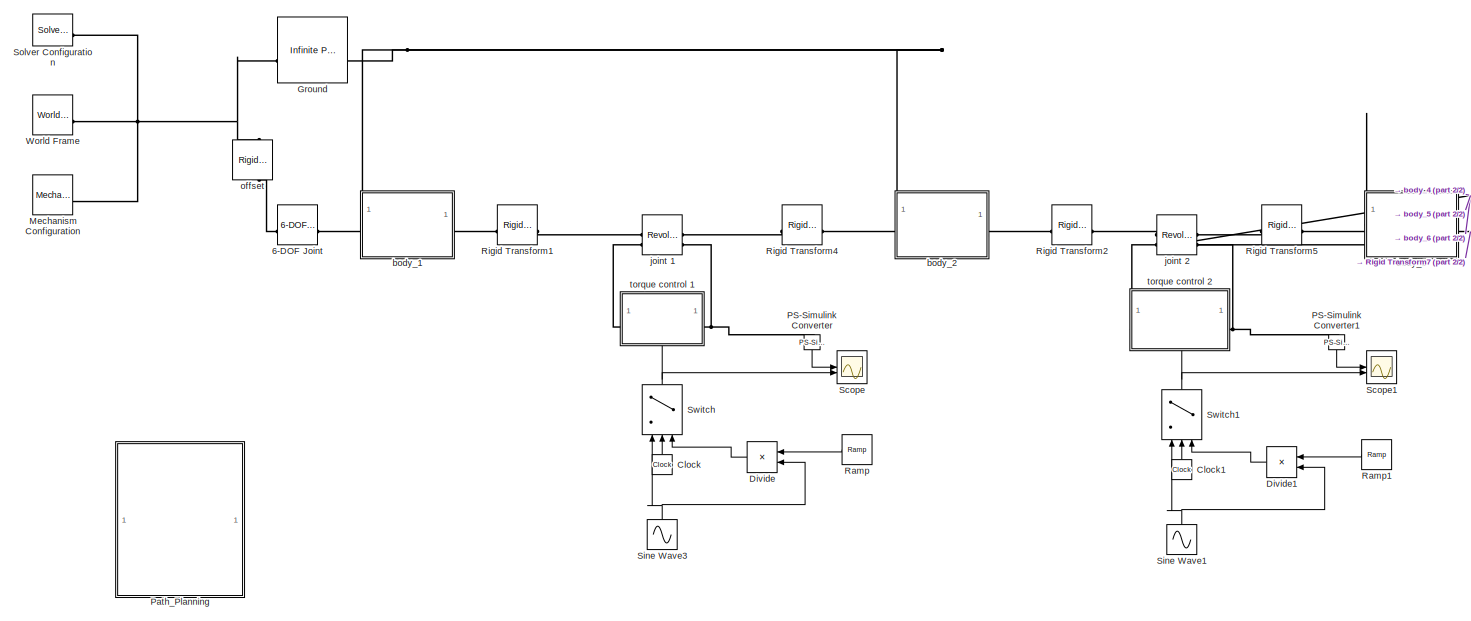
[diagram: root canvas - part 1/2, left side, full height]
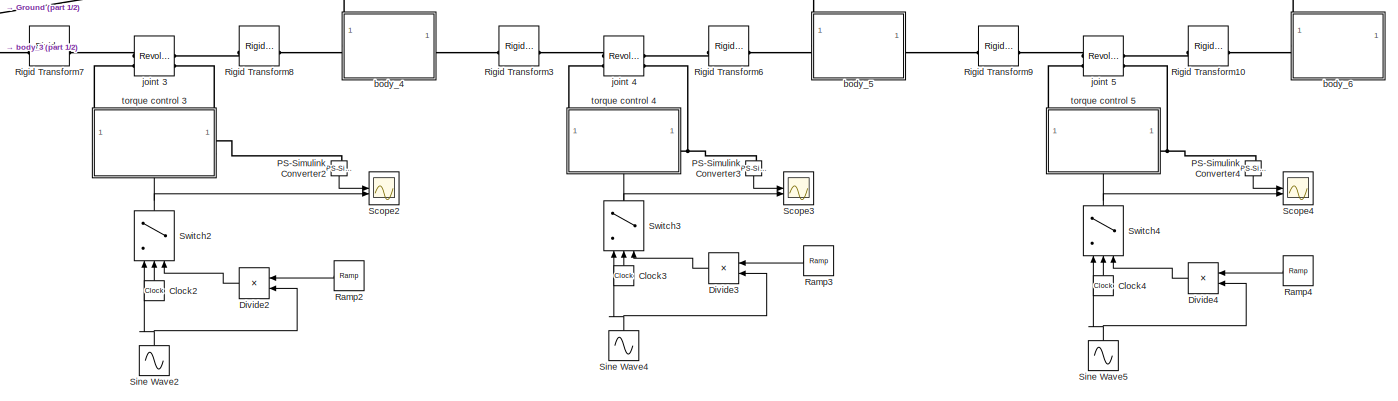
[diagram: root canvas - part 2/2, middle right region]
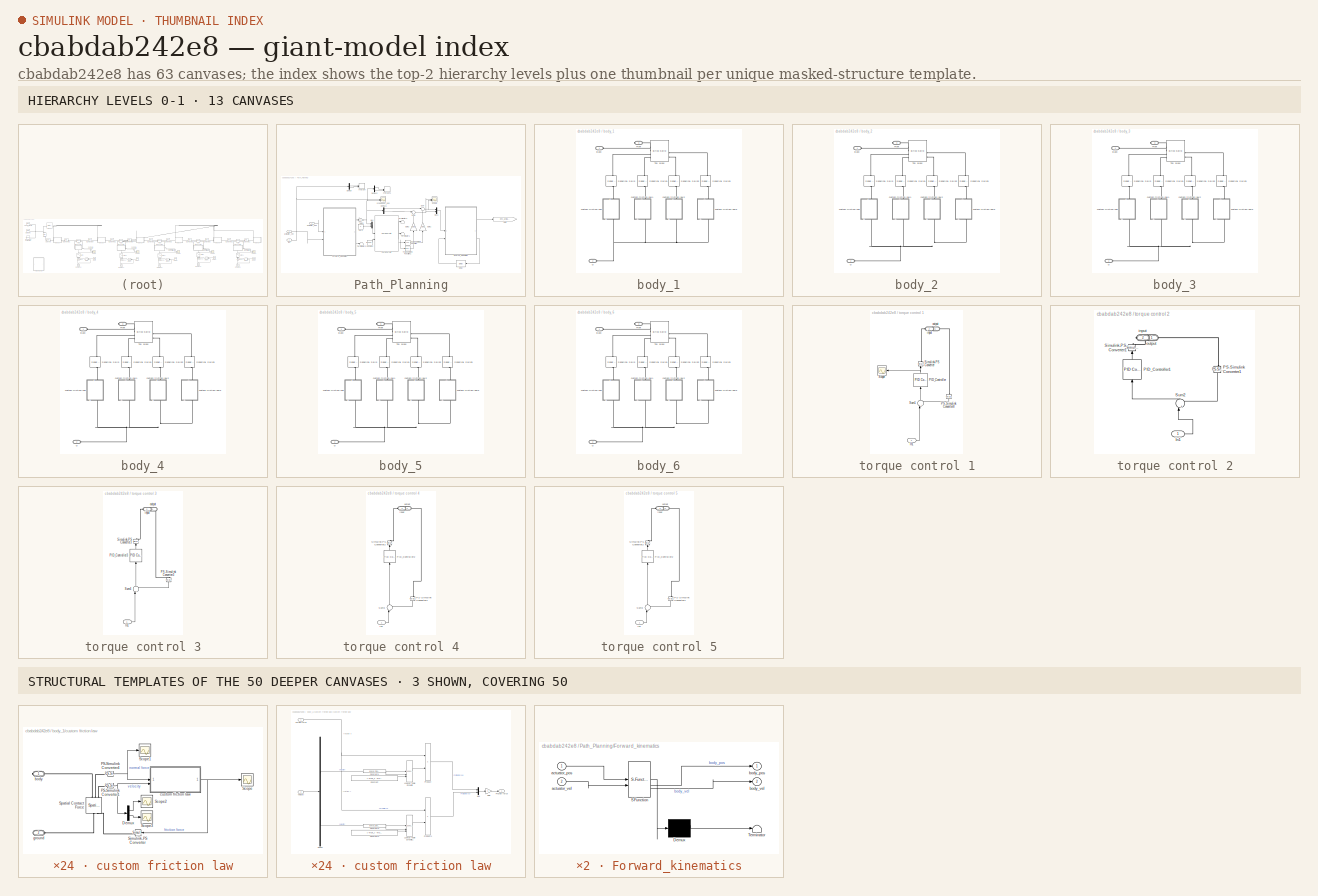
[diagram: thumbnail index - top-2 hierarchy levels (13 canvases) + 3 structural-template representatives of the remaining 50 canvases]
MODEL slx_cbabdab242e8
KIND model
CONFIG AbsTol = 1e-3
CONFIG EnableMultiTasking = on
CONFIG FixedStep = auto
CONFIG MaxStep = auto
CONFIG MinStep = auto
CONFIG RelTol = 1e-5
CONFIG SampleTimeConstraint = Unconstrained
CONFIG SolverName = VariableStepAuto
CONFIG StartTime = 0.0
CONFIG StopTime = 300
BLOCK [Reference] 6-DOF Joint  REF=sm_lib/Joints/6-DOF Joint
  SourceBlock = sm_lib/Joints/6-DOF Joint
  SourceType = 6-DOF Joint
BLOCK [Clock] Clock
  NameLocation = right
BLOCK [Clock] Clock1
  NameLocation = right
BLOCK [Clock] Clock2
  NameLocation = right
BLOCK [Clock] Clock3
  NameLocation = right
BLOCK [Clock] Clock4
  NameLocation = right
BLOCK [Product] Divide
  Inputs = **
  NameLocation = top
BLOCK [Product] Divide1
  Inputs = **
  NameLocation = top
BLOCK [Product] Divide2
  Inputs = **
  NameLocation = top
BLOCK [Product] Divide3
  Inputs = **
  NameLocation = top
BLOCK [Product] Divide4
  Inputs = **
  NameLocation = top
BLOCK [Reference] Ground  REF=sm_lib/Curves and Surfaces/Infinite Plane
  SourceBlock = sm_lib/Curves and Surfaces/Infinite Plane
  SourceType = Infinite Plane
BLOCK [Reference] Mechanism Configuration  REF=sm_lib/Utilities/Mechanism
Configuration
  SourceBlock = sm_lib/Utilities/Mechanism\nConfiguration
  SourceType = Mechanism\nConfiguration
BLOCK [Reference] PS-Simulink Converter  REF=nesl_utility/PS-Simulink
Converter
  NameLocation = left
  SourceBlock = nesl_utility/PS-Simulink\nConverter
  SourceType = PS-Simulink\nConverter
BLOCK [Reference] PS-Simulink Converter1  REF=nesl_utility/PS-Simulink
Converter
  NameLocation = left
  SourceBlock = nesl_utility/PS-Simulink\nConverter
  SourceType = PS-Simulink\nConverter
BLOCK [Reference] PS-Simulink Converter2  REF=nesl_utility/PS-Simulink
Converter
  NameLocation = left
  SourceBlock = nesl_utility/PS-Simulink\nConverter
  SourceType = PS-Simulink\nConverter
BLOCK [Reference] PS-Simulink Converter3  REF=nesl_utility/PS-Simulink
Converter
  NameLocation = left
  SourceBlock = nesl_utility/PS-Simulink\nConverter
  SourceType = PS-Simulink\nConverter
BLOCK [Reference] PS-Simulink Converter4  REF=nesl_utility/PS-Simulink
Converter
  NameLocation = left
  SourceBlock = nesl_utility/PS-Simulink\nConverter
  SourceType = PS-Simulink\nConverter
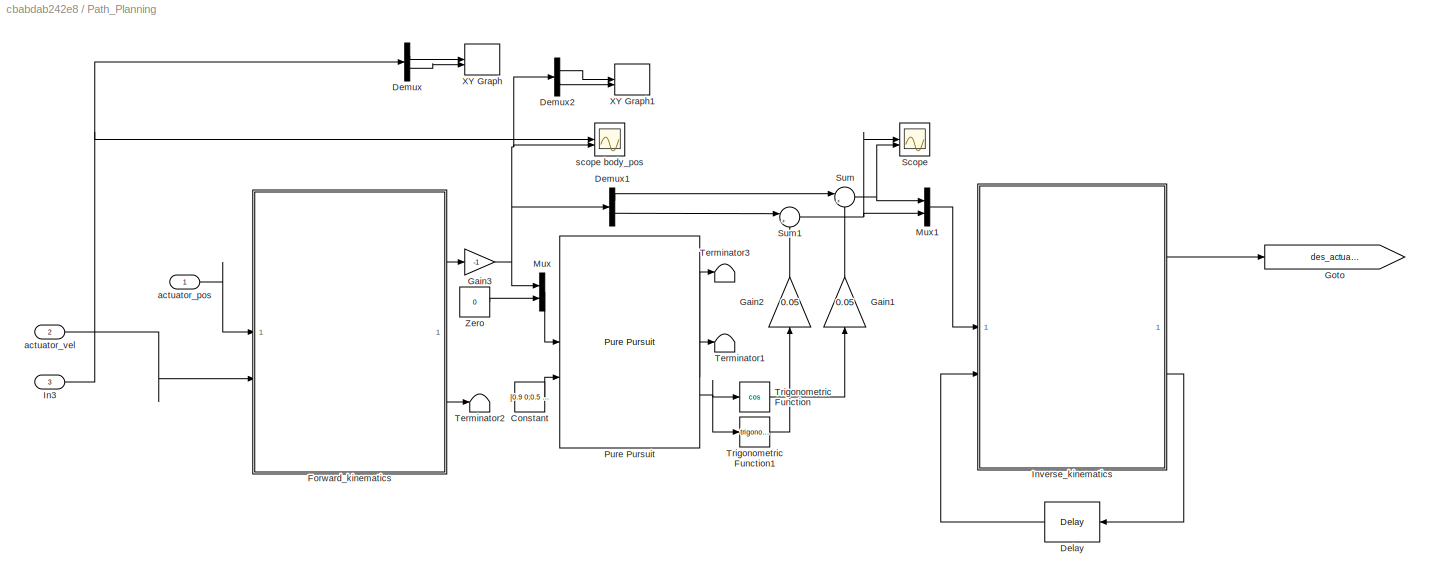
BLOCK [SubSystem] Path_Planning
  Commented = on
BLOCK [Constant] Path_Planning/Constant
  Commented = on
  Value = [0.9 0;0.5 0.2;0.5 -0.2;0.3 0.3]
BLOCK [Delay] Path_Planning/Delay
  Commented = on
  DelayLength = 1
  InitialCondition = zeros(3,1)
  InputPortMap = u0
  NameLocation = top
  SampleTime = 0.01
BLOCK [Demux] Path_Planning/Demux
  Commented = on
  Outputs = 2
BLOCK [Demux] Path_Planning/Demux1
  Commented = on
  Outputs = 2
BLOCK [Demux] Path_Planning/Demux2
  Commented = on
  Outputs = 2
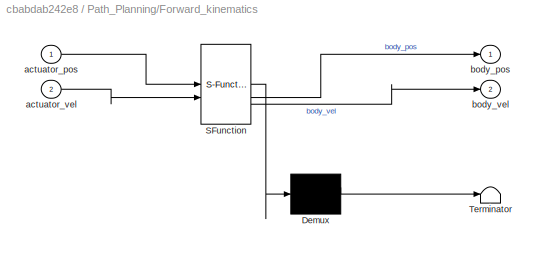
BLOCK [SubSystem] Path_Planning/Forward_kinematics
  Commented = on
  ErrorFcn = Stateflow.Translate.translate
  LibrarySourceBlock = simulink/User-Defined\nFunctions/MATLAB Function
  PermitHierarchicalResolution = ExplicitOnly
  SFBlockType = MATLAB Function
  TreatAsAtomicUnit = on
BLOCK [Demux] Path_Planning/Forward_kinematics/ Demux 
  Outputs = 1
BLOCK [S-Function] Path_Planning/Forward_kinematics/ SFunction 
  EnableBusSupport = on
  FunctionName = sf_sfun
  PortCounts = [2 3]
  SFcnIsStateOwnerBlock = off
  SFunctionDeploymentMode = off
  Tag = Stateflow S-Function 2
BLOCK [Terminator] Path_Planning/Forward_kinematics/ Terminator 
BLOCK [Inport] Path_Planning/Forward_kinematics/actuator_pos
BLOCK [Inport] Path_Planning/Forward_kinematics/actuator_vel
  Port = 2
BLOCK [Outport] Path_Planning/Forward_kinematics/body_pos
BLOCK [Outport] Path_Planning/Forward_kinematics/body_vel
  Port = 2
BLOCK [Gain] Path_Planning/Gain1
  Commented = on
  Gain = 0.05
  NameLocation = right
BLOCK [Gain] Path_Planning/Gain2
  Commented = on
  Gain = 0.05
  NameLocation = right
BLOCK [Gain] Path_Planning/Gain3
  Commented = on
  Gain = -1
BLOCK [Goto] Path_Planning/Goto
  Commented = on
  GotoTag = des_actuator_pos
BLOCK [Inport] Path_Planning/In3
  Port = 3
BLOCK [SubSystem] Path_Planning/Inverse_kinematics
  Commented = on
  ErrorFcn = Stateflow.Translate.translate
  LibrarySourceBlock = simulink/User-Defined\nFunctions/MATLAB Function
  PermitHierarchicalResolution = ExplicitOnly
  SFBlockType = MATLAB Function
  TreatAsAtomicUnit = on
BLOCK [Demux] Path_Planning/Inverse_kinematics/ Demux 
  Outputs = 1
BLOCK [S-Function] Path_Planning/Inverse_kinematics/ SFunction 
  EnableBusSupport = on
  FunctionName = sf_sfun
  PortCounts = [2 3]
  SFcnIsStateOwnerBlock = off
  SFunctionDeploymentMode = off
  Tag = Stateflow S-Function 4
BLOCK [Terminator] Path_Planning/Inverse_kinematics/ Terminator 
BLOCK [Outport] Path_Planning/Inverse_kinematics/des_actuator_pos
BLOCK [Inport] Path_Planning/Inverse_kinematics/des_body_pos
BLOCK [Inport] Path_Planning/Inverse_kinematics/guess_pos_in
  Port = 2
BLOCK [Outport] Path_Planning/Inverse_kinematics/guess_pos_out
  Port = 2
BLOCK [Mux] Path_Planning/Mux
  Commented = on
  DisplayOption = bar
  Inputs = 2
BLOCK [Mux] Path_Planning/Mux1
  Commented = on
  DisplayOption = bar
  Inputs = 2
BLOCK [Reference] Path_Planning/Pure Pursuit  REF=robotalgslib/Pure Pursuit
  Commented = on
  LibrarySourceBlock = navlib/Control Algorithms/Pure Pursuit
  SourceBlock = robotalgslib/Pure Pursuit
  SourceType = nav.slalgs.internal.PurePursuit
BLOCK [Scope] Path_Planning/Scope
  Commented = on
  Floating = off
  NumInputPorts = 2
  ScopeSpecificationString = Simulink.scopes.TimeScopeBlockCfg('CurrentConfiguration', extmgr.ConfigurationSet(extmgr.Configuration('Core','General UI',true),extmgr.Configuration('Core','Source UI',true),extmgr.Configuration('Sources','WiredSimulink',true,'DataLoggingVariableName','ScopeData2'),extmgr.Configuration('Visuals','Time Domain',true,'SerializedDisplays',{struct('MinYLimReal','-0.13513','MaxYLimReal','1.07285','YLab...<+1394ch>
BLOCK [Sum] Path_Planning/Sum
  Commented = on
  Inputs = |++
BLOCK [Sum] Path_Planning/Sum1
  Commented = on
  Inputs = |++
BLOCK [Terminator] Path_Planning/Terminator1
  Commented = on
BLOCK [Terminator] Path_Planning/Terminator2
  Commented = on
BLOCK [Terminator] Path_Planning/Terminator3
  Commented = on
BLOCK [Trigonometry] Path_Planning/Trigonometric Function
  Commented = on
  Operator = cos
BLOCK [Trigonometry] Path_Planning/Trigonometric Function1
  Commented = on
BLOCK [Record] Path_Planning/XY Graph
  Commented = on
  CompatibilityTag = XY
  FileSettingsInternal = {"entries":[{"content":{"excelSettings":{"content":{},"type":"Streamout.ExcelSettings"}},"type":"Streamout.FileSettingStorage","uuid":"f83825bb-7ca4-4233-96ab-c97741e779a6"}],"packageUris":["http://schema.mathworks.com/mf0/streamout_blocks/R2020a"],"version":"1.0"}
  Layout = [1 1]
  SignalsInternal = {"entries":[{"content":{"signals":[{"content":{"blockPath":["Snake_Robot_v1/Path_Planning/XY Graph"],"channel":[],"dimensions":[1],"domain":"Snake_Robot_v1/Path_Planning/XY Graph","lineColor":"#a2142f","plots":[1],"port":1,"sid":[],"signalID":16,"signalName":"Demux:1"},"type":"RecordBlkView.Signal","uuid":"9ea619ea-edf8-4111-94fe-4c4e913b1a69"},{"content":{"blockPath":["Snake_Robot_v1/Path_Plannin...<+435ch>
  VisualizationBindings = {"xyplotplugin":{"info":[{"series":[{"bindingParametersList":[{"parameter":"X-Axis","signalID":16,"signalName":"Demux:1"},{"parameter":"Y-Axis","signalID":19,"signalName":"Demux:2"}],"seriesID":55058}],"subplotID":1}]}}
BLOCK [Record] Path_Planning/XY Graph1
  Commented = on
  CompatibilityTag = XY
  FileSettingsInternal = {"entries":[{"content":{"excelSettings":{"content":{},"type":"Streamout.ExcelSettings"}},"type":"Streamout.FileSettingStorage","uuid":"9792522f-47ae-4189-8ec0-085668aa7ea7"}],"packageUris":["http://schema.mathworks.com/mf0/streamout_blocks/R2020a"],"version":"1.0"}
  Layout = [1 1]
  SignalsInternal = {"entries":[{"content":{"signals":[{"content":{"blockPath":["Snake_Robot_v1/Path_Planning/XY Graph1"],"channel":[],"dimensions":[1,1],"domain":"Snake_Robot_v1/Path_Planning/XY Graph1","lineColor":"#a2142f","plots":[1],"port":1,"sid":[],"signalID":8,"signalName":"Demux2:1"},"type":"RecordBlkView.Signal","uuid":"b1a382b0-e0e4-47cd-98ba-8ee682e3c611"},{"content":{"blockPath":["Snake_Robot_v1/Path_Pla...<+444ch>
  VisualizationBindings = {"xyplotplugin":{"info":[{"series":[{"bindingParametersList":[{"parameter":"X-Axis","signalID":8,"signalName":"Demux2:1"},{"parameter":"Y-Axis","signalID":11,"signalName":"Demux2:2"}],"seriesID":18851}],"subplotID":1}]}}
BLOCK [Constant] Path_Planning/Zero
  Commented = on
  OutDataTypeStr = Inherit: Inherit via back propagation
  Value = 0
BLOCK [Inport] Path_Planning/actuator_pos
BLOCK [Inport] Path_Planning/actuator_vel
  Port = 2
BLOCK [Scope] Path_Planning/scope body_pos
  Commented = on
  Floating = off
  NumInputPorts = 2
  ScopeSpecificationString = Simulink.scopes.TimeScopeBlockCfg('CurrentConfiguration', extmgr.ConfigurationSet(extmgr.Configuration('Core','General UI',true),extmgr.Configuration('Core','Source UI',true),extmgr.Configuration('Sources','WiredSimulink',true),extmgr.Configuration('Visuals','Time Domain',true,'SerializedDisplays',{struct('MinYLimReal','-1.18672','MaxYLimReal','0.68047','YLabelReal','','MinYLimMag','0.00000','MaxY...<+1547ch>
BLOCK [Reference] Ramp  REF=simulink/Sources/Ramp
  NameLocation = top
  SourceBlock = simulink/Sources/Ramp
  SourceType = Ramp
BLOCK [Reference] Ramp1  REF=simulink/Sources/Ramp
  NameLocation = top
  SourceBlock = simulink/Sources/Ramp
  SourceType = Ramp
BLOCK [Reference] Ramp2  REF=simulink/Sources/Ramp
  NameLocation = top
  SourceBlock = simulink/Sources/Ramp
  SourceType = Ramp
BLOCK [Reference] Ramp3  REF=simulink/Sources/Ramp
  NameLocation = top
  SourceBlock = simulink/Sources/Ramp
  SourceType = Ramp
BLOCK [Reference] Ramp4  REF=simulink/Sources/Ramp
  NameLocation = top
  SourceBlock = simulink/Sources/Ramp
  SourceType = Ramp
BLOCK [Reference] Rigid Transform1  REF=sm_lib/Frames and
Transforms/Rigid
Transform
  SourceBlock = sm_lib/Frames and\nTransforms/Rigid\nTransform
  SourceType = Rigid\nTransform
BLOCK [Reference] Rigid Transform10  REF=sm_lib/Frames and
Transforms/Rigid
Transform
  SourceBlock = sm_lib/Frames and\nTransforms/Rigid\nTransform
  SourceType = Rigid\nTransform
BLOCK [Reference] Rigid Transform2  REF=sm_lib/Frames and
Transforms/Rigid
Transform
  SourceBlock = sm_lib/Frames and\nTransforms/Rigid\nTransform
  SourceType = Rigid\nTransform
BLOCK [Reference] Rigid Transform3  REF=sm_lib/Frames and
Transforms/Rigid
Transform
  SourceBlock = sm_lib/Frames and\nTransforms/Rigid\nTransform
  SourceType = Rigid\nTransform
BLOCK [Reference] Rigid Transform4  REF=sm_lib/Frames and
Transforms/Rigid
Transform
  SourceBlock = sm_lib/Frames and\nTransforms/Rigid\nTransform
  SourceType = Rigid\nTransform
BLOCK [Reference] Rigid Transform5  REF=sm_lib/Frames and
Transforms/Rigid
Transform
  SourceBlock = sm_lib/Frames and\nTransforms/Rigid\nTransform
  SourceType = Rigid\nTransform
BLOCK [Reference] Rigid Transform6  REF=sm_lib/Frames and
Transforms/Rigid
Transform
  SourceBlock = sm_lib/Frames and\nTransforms/Rigid\nTransform
  SourceType = Rigid\nTransform
BLOCK [Reference] Rigid Transform7  REF=sm_lib/Frames and
Transforms/Rigid
Transform
  SourceBlock = sm_lib/Frames and\nTransforms/Rigid\nTransform
  SourceType = Rigid\nTransform
BLOCK [Reference] Rigid Transform8  REF=sm_lib/Frames and
Transforms/Rigid
Transform
  SourceBlock = sm_lib/Frames and\nTransforms/Rigid\nTransform
  SourceType = Rigid\nTransform
BLOCK [Reference] Rigid Transform9  REF=sm_lib/Frames and
Transforms/Rigid
Transform
  SourceBlock = sm_lib/Frames and\nTransforms/Rigid\nTransform
  SourceType = Rigid\nTransform
BLOCK [Scope] Scope
  Floating = off
  NumInputPorts = 2
  ScopeSpecificationString = Simulink.scopes.TimeScopeBlockCfg('CurrentConfiguration', extmgr.ConfigurationSet(extmgr.Configuration('Core','General UI',true),extmgr.Configuration('Core','Source UI',true),extmgr.Configuration('Sources','WiredSimulink',true,'DataLoggingVariableName','ScopeData1'),extmgr.Configuration('Visuals','Time Domain',true,'SerializedDisplays',{struct('MinYLimReal','-2.5','MaxYLimReal','2.5','YLabelReal',...<+1436ch>
BLOCK [Scope] Scope1
  Floating = off
  NumInputPorts = 2
  ScopeSpecificationString = Simulink.scopes.TimeScopeBlockCfg('CurrentConfiguration', extmgr.ConfigurationSet(extmgr.Configuration('Core','General UI',true),extmgr.Configuration('Core','Source UI',true),extmgr.Configuration('Sources','WiredSimulink',true,'DataLoggingVariableName','ScopeData2'),extmgr.Configuration('Visuals','Time Domain',true,'SerializedDisplays',{struct('MinYLimReal','-3.75','MaxYLimReal','3.75','YLabelReal...<+1398ch>
BLOCK [Scope] Scope2
  Floating = off
  NumInputPorts = 2
  ScopeSpecificationString = Simulink.scopes.TimeScopeBlockCfg('CurrentConfiguration', extmgr.ConfigurationSet(extmgr.Configuration('Core','General UI',true),extmgr.Configuration('Core','Source UI',true),extmgr.Configuration('Sources','WiredSimulink',true,'DataLoggingVariableName','ScopeData3'),extmgr.Configuration('Visuals','Time Domain',true,'SerializedDisplays',{struct('MinYLimReal','-3.75','MaxYLimReal','3.75','YLabelReal...<+1398ch>
BLOCK [Scope] Scope3
  Floating = off
  NumInputPorts = 2
  ScopeSpecificationString = Simulink.scopes.TimeScopeBlockCfg('CurrentConfiguration', extmgr.ConfigurationSet(extmgr.Configuration('Core','General UI',true),extmgr.Configuration('Core','Source UI',true),extmgr.Configuration('Sources','WiredSimulink',true,'DataLoggingVariableName','ScopeData4'),extmgr.Configuration('Visuals','Time Domain',true,'SerializedDisplays',{struct('MinYLimReal','-3.75','MaxYLimReal','3.75','YLabelReal...<+1398ch>
BLOCK [Scope] Scope4
  Floating = off
  NumInputPorts = 2
  ScopeSpecificationString = Simulink.scopes.TimeScopeBlockCfg('CurrentConfiguration', extmgr.ConfigurationSet(extmgr.Configuration('Core','General UI',true),extmgr.Configuration('Core','Source UI',true),extmgr.Configuration('Sources','WiredSimulink',true,'DataLoggingVariableName','ScopeData5'),extmgr.Configuration('Visuals','Time Domain',true,'SerializedDisplays',{struct('MinYLimReal','-3.75','MaxYLimReal','3.75','YLabelReal...<+1398ch>
BLOCK [Sin] Sine Wave1
  Amplitude = amplitude
  Frequency = frequency
  NameLocation = right
  Phase = 1*phase
  SampleTime = 0.01
BLOCK [Sin] Sine Wave2
  Amplitude = amplitude
  Frequency = frequency
  NameLocation = right
  Phase = 2*phase
  SampleTime = 0.01
BLOCK [Sin] Sine Wave3
  Amplitude = amplitude
  Frequency = frequency
  NameLocation = right
  Phase = 0*phase
  SampleTime = 0.01
BLOCK [Sin] Sine Wave4
  Amplitude = amplitude
  Frequency = frequency
  NameLocation = right
  Phase = 3*phase
  SampleTime = 0.01
BLOCK [Sin] Sine Wave5
  Amplitude = amplitude
  Frequency = frequency
  NameLocation = right
  Phase = 4*phase
  SampleTime = 0.01
BLOCK [Reference] Solver Configuration  REF=nesl_utility/Solver
Configuration
  SourceBlock = nesl_utility/Solver\nConfiguration
  SourceType = Solver\nConfiguration
BLOCK [Switch] Switch
  InputSameDT = off
  NameLocation = right
  SaturateOnIntegerOverflow = off
  Threshold = 2
BLOCK [Switch] Switch1
  Criteria = u2 > Threshold
  InputSameDT = off
  NameLocation = right
  SaturateOnIntegerOverflow = off
  Threshold = 2
BLOCK [Switch] Switch2
  Criteria = u2 > Threshold
  InputSameDT = off
  NameLocation = right
  SaturateOnIntegerOverflow = off
  Threshold = 2
BLOCK [Switch] Switch3
  Criteria = u2 > Threshold
  InputSameDT = off
  NameLocation = right
  SaturateOnIntegerOverflow = off
  Threshold = 2
BLOCK [Switch] Switch4
  Criteria = u2 > Threshold
  InputSameDT = off
  NameLocation = right
  SaturateOnIntegerOverflow = off
  Threshold = 2
BLOCK [Reference] World Frame  REF=sm_lib/Frames and
Transforms/World Frame
  SourceBlock = sm_lib/Frames and\nTransforms/World Frame
  SourceType = World Frame
BLOCK [SubSystem] body_1
  PortSchema = {"entries":[{"content":{"sides":[{"content":{"connectorIds":["LConn1"]},"type":"ConnectorPlacement.EquallySpacedRectSide","uuid":"751caf70-fea4-4832-96d1-cfb89594f882"},{"content":{"connectorIds":["RConn1"],"side":"RIGHT"},"type":"ConnectorPlacement.EquallySpacedRectSide","uuid":"f4256cb0-7155-4962-9e91-24184222dcac"},{"content":{"connectorIds":["LConn2"],"side":"TOP"},"type":"ConnectorPlacement.E...<+397ch>  <repeated x6 — deduplicated; at blocks: body_1, body_2, body_3, body_4, body_5, body_6>
BLOCK [PMIOPort] body_1/Back
  Side = Left
BLOCK [PMIOPort] body_1/Front
  NameLocation = top
  Port = 3
  Side = Right
BLOCK [PMIOPort] body_1/G
  Port = 2
  Side = Left
BLOCK [Reference] body_1/Spherical Solid  REF=sm_lib/Body Elements/Spherical Solid
  NameLocation = right
  SourceBlock = sm_lib/Body Elements/Spherical Solid
  SourceType = Spherical Solid
BLOCK [Reference] body_1/Spherical Solid1  REF=sm_lib/Body Elements/Spherical Solid
  NameLocation = right
  SourceBlock = sm_lib/Body Elements/Spherical Solid
  SourceType = Spherical Solid
BLOCK [Reference] body_1/Spherical Solid2  REF=sm_lib/Body Elements/Spherical Solid
  NameLocation = right
  SourceBlock = sm_lib/Body Elements/Spherical Solid
  SourceType = Spherical Solid
BLOCK [Reference] body_1/Spherical Solid3  REF=sm_lib/Body Elements/Spherical Solid
  NameLocation = right
  SourceBlock = sm_lib/Body Elements/Spherical Solid
  SourceType = Spherical Solid
BLOCK [Reference] body_1/Tail block  REF=sm_lib/Body Elements/Brick Solid
  NameLocation = top
  SourceBlock = sm_lib/Body Elements/Brick Solid
  SourceType = Brick Solid
BLOCK [SubSystem] body_1/custom friction law
BLOCK [Demux] body_1/custom friction law/Demux
  Outputs = 2
BLOCK [Reference] body_1/custom friction law/PS-Simulink Converter1  REF=nesl_utility/PS-Simulink
Converter
  SourceBlock = nesl_utility/PS-Simulink\nConverter
  SourceType = PS-Simulink\nConverter
BLOCK [Reference] body_1/custom friction law/PS-Simulink Converter4  REF=nesl_utility/PS-Simulink
Converter
  SourceBlock = nesl_utility/PS-Simulink\nConverter
  SourceType = PS-Simulink\nConverter
BLOCK [Scope] body_1/custom friction law/Scope
  Floating = off
  NumInputPorts = 1
  ScopeSpecificationString = Simulink.scopes.TimeScopeBlockCfg('CurrentConfiguration', extmgr.ConfigurationSet(extmgr.Configuration('Core','General UI',true),extmgr.Configuration('Core','Source UI',true),extmgr.Configuration('Sources','WiredSimulink',true,'DataLoggingVariableName','ScopeData1'),extmgr.Configuration('Visuals','Time Domain',true,'SerializedDisplays',{struct('MinYLimReal','-30.13514','MaxYLimReal','21.73313','YL...<+1456ch>
BLOCK [Scope] body_1/custom friction law/Scope1
  Floating = off
  NumInputPorts = 1
  ScopeSpecificationString = Simulink.scopes.TimeScopeBlockCfg('CurrentConfiguration', extmgr.ConfigurationSet(extmgr.Configuration('Core','General UI',true),extmgr.Configuration('Core','Source UI',true),extmgr.Configuration('Sources','WiredSimulink',true,'DataLoggingVariableName','ScopeData2'),extmgr.Configuration('Visuals','Time Domain',true,'SerializedDisplays',{struct('MinYLimReal','-36.37493','MaxYLimReal','327.37438','Y...<+1406ch>
BLOCK [Scope] body_1/custom friction law/Scope2
  Floating = off
  NumInputPorts = 1
  ScopeSpecificationString = Simulink.scopes.TimeScopeBlockCfg('CurrentConfiguration', extmgr.ConfigurationSet(extmgr.Configuration('Core','General UI',true),extmgr.Configuration('Core','Source UI',true),extmgr.Configuration('Sources','WiredSimulink',true,'DataLoggingVariableName','ScopeData3'),extmgr.Configuration('Visuals','Time Domain',true,'SerializedDisplays',{struct('MinYLimReal','-0.40179','MaxYLimReal','0.47359','YLab...<+1424ch>
BLOCK [Scope] body_1/custom friction law/Scope3
  Floating = off
  NumInputPorts = 1
  ScopeSpecificationString = Simulink.scopes.TimeScopeBlockCfg('CurrentConfiguration', extmgr.ConfigurationSet(extmgr.Configuration('Core','General UI',true),extmgr.Configuration('Core','Source UI',true),extmgr.Configuration('Sources','WiredSimulink',true,'DataLoggingVariableName','ScopeData4'),extmgr.Configuration('Visuals','Time Domain',true,'SerializedDisplays',{struct('MinYLimReal','-0.33513','MaxYLimReal','0.42313','YLab...<+1391ch>
BLOCK [Reference] body_1/custom friction law/Simulink-PS Converter  REF=nesl_utility/Simulink-PS
Converter
  NameLocation = top
  SourceBlock = nesl_utility/Simulink-PS\nConverter
  SourceType = Simulink-PS\nConverter
BLOCK [Reference] body_1/custom friction law/Spatial Contact Force  REF=sm_lib/Forces and
Torques/Spatial
Contact Force
  NameLocation = right
  SourceBlock = sm_lib/Forces and\nTorques/Spatial\nContact Force
  SourceType = Spatial\nContact Force
BLOCK [PMIOPort] body_1/custom friction law/body
  NameLocation = top
  Side = Right
BLOCK [SubSystem] body_1/custom friction law/custom friction law
BLOCK [Constant] body_1/custom friction law/custom friction law/Constant
  Value = [-muk_x -muk_x -mus_x mus_x muk_x muk_x]
BLOCK [Constant] body_1/custom friction law/custom friction law/Constant1
  Value = lookup_table_x
BLOCK [Constant] body_1/custom friction law/custom friction law/Constant2
  Value = [-muk_y -muk_y -mus_y mus_y muk_y muk_y]
BLOCK [Constant] body_1/custom friction law/custom friction law/Constant3
  Value = lookup_table_y
BLOCK [Demux] body_1/custom friction law/custom friction law/Demux
  Outputs = 2
BLOCK [Outport] body_1/custom friction law/custom friction law/Friction force
BLOCK [Gain] body_1/custom friction law/custom friction law/Gain
  Gain = -1
BLOCK [Reference] body_1/custom friction law/custom friction law/Lookup Table Dynamic  REF=simulink/Lookup
Tables/Lookup
Table
Dynamic
  SourceBlock = simulink/Lookup\nTables/Lookup\nTable\nDynamic
  SourceType = Lookup Table Dynamic
BLOCK [Reference] body_1/custom friction law/custom friction law/Lookup Table Dynamic1  REF=simulink/Lookup
Tables/Lookup
Table
Dynamic
  SourceBlock = simulink/Lookup\nTables/Lookup\nTable\nDynamic
  SourceType = Lookup Table Dynamic
BLOCK [Mux] body_1/custom friction law/custom friction law/Mux
  DisplayOption = bar
  Inputs = 2
BLOCK [Product] body_1/custom friction law/custom friction law/Product
BLOCK [Product] body_1/custom friction law/custom friction law/Product1
BLOCK [Inport] body_1/custom friction law/custom friction law/normal force
BLOCK [Inport] body_1/custom friction law/custom friction law/velocity
  Port = 2
BLOCK [PMIOPort] body_1/custom friction law/ground
  Port = 2
  Side = Left
BLOCK [SubSystem] body_1/custom friction law1
BLOCK [Demux] body_1/custom friction law1/Demux
  Outputs = 2
BLOCK [Reference] body_1/custom friction law1/PS-Simulink Converter1  REF=nesl_utility/PS-Simulink
Converter
  SourceBlock = nesl_utility/PS-Simulink\nConverter
  SourceType = PS-Simulink\nConverter
BLOCK [Reference] body_1/custom friction law1/PS-Simulink Converter4  REF=nesl_utility/PS-Simulink
Converter
  SourceBlock = nesl_utility/PS-Simulink\nConverter
  SourceType = PS-Simulink\nConverter
BLOCK [Scope] body_1/custom friction law1/Scope
  Floating = off
  NumInputPorts = 1
  ScopeSpecificationString = Simulink.scopes.TimeScopeBlockCfg('CurrentConfiguration', extmgr.ConfigurationSet(extmgr.Configuration('Core','General UI',true),extmgr.Configuration('Core','Source UI',true),extmgr.Configuration('Sources','WiredSimulink',true,'DataLoggingVariableName','ScopeData1'),extmgr.Configuration('Visuals','Time Domain',true,'SerializedDisplays',{struct('MinYLimReal','-2.63498','MaxYLimReal','2.41735','YLab...<+1448ch>  <repeated x23 — deduplicated; at blocks: Scope>
BLOCK [Scope] body_1/custom friction law1/Scope1
  Floating = off
  NumInputPorts = 1
  ScopeSpecificationString = Simulink.scopes.TimeScopeBlockCfg('CurrentConfiguration', extmgr.ConfigurationSet(extmgr.Configuration('Core','General UI',true),extmgr.Configuration('Core','Source UI',true),extmgr.Configuration('Sources','WiredSimulink',true,'DataLoggingVariableName','ScopeData2'),extmgr.Configuration('Visuals','Time Domain',true,'SerializedDisplays',{struct('MinYLimReal','-37.15896','MaxYLimReal','334.43065','Y...<+1406ch>  <repeated x23 — deduplicated; at blocks: Scope1>
BLOCK [Scope] body_1/custom friction law1/Scope2
  Floating = off
  NumInputPorts = 1
  ScopeSpecificationString = Simulink.scopes.TimeScopeBlockCfg('CurrentConfiguration', extmgr.ConfigurationSet(extmgr.Configuration('Core','General UI',true),extmgr.Configuration('Core','Source UI',true),extmgr.Configuration('Sources','WiredSimulink',true,'DataLoggingVariableName','ScopeData3'),extmgr.Configuration('Visuals','Time Domain',true,'SerializedDisplays',{struct('MinYLimReal','-0.45198','MaxYLimReal','0.54884','YLab...<+1424ch>  <repeated x23 — deduplicated; at blocks: Scope2>
BLOCK [Scope] body_1/custom friction law1/Scope3
  Floating = off
  NumInputPorts = 1
  ScopeSpecificationString = Simulink.scopes.TimeScopeBlockCfg('CurrentConfiguration', extmgr.ConfigurationSet(extmgr.Configuration('Core','General UI',true),extmgr.Configuration('Core','Source UI',true),extmgr.Configuration('Sources','WiredSimulink',true,'DataLoggingVariableName','ScopeData4'),extmgr.Configuration('Visuals','Time Domain',true,'SerializedDisplays',{struct('MinYLimReal','-0.61561','MaxYLimReal','0.67103','YLab...<+1391ch>  <repeated x23 — deduplicated; at blocks: Scope3>
BLOCK [Reference] body_1/custom friction law1/Simulink-PS Converter  REF=nesl_utility/Simulink-PS
Converter
  NameLocation = top
  SourceBlock = nesl_utility/Simulink-PS\nConverter
  SourceType = Simulink-PS\nConverter
BLOCK [Reference] body_1/custom friction law1/Spatial Contact Force  REF=sm_lib/Forces and
Torques/Spatial
Contact Force
  NameLocation = right
  SourceBlock = sm_lib/Forces and\nTorques/Spatial\nContact Force
  SourceType = Spatial\nContact Force
BLOCK [PMIOPort] body_1/custom friction law1/body
  NameLocation = top
  Side = Right
BLOCK [SubSystem] body_1/custom friction law1/custom friction law
BLOCK [Constant] body_1/custom friction law1/custom friction law/Constant
  Value = [-muk_x -muk_x -mus_x mus_x muk_x muk_x]
BLOCK [Constant] body_1/custom friction law1/custom friction law/Constant1
  Value = lookup_table_x
BLOCK [Constant] body_1/custom friction law1/custom friction law/Constant2
  Value = [-muk_y -muk_y -mus_y mus_y muk_y muk_y]
BLOCK [Constant] body_1/custom friction law1/custom friction law/Constant3
  Value = lookup_table_y
BLOCK [Demux] body_1/custom friction law1/custom friction law/Demux
  Outputs = 2
BLOCK [Outport] body_1/custom friction law1/custom friction law/Friction force
BLOCK [Gain] body_1/custom friction law1/custom friction law/Gain
  Gain = -1
BLOCK [Reference] body_1/custom friction law1/custom friction law/Lookup Table Dynamic  REF=simulink/Lookup
Tables/Lookup
Table
Dynamic
  SourceBlock = simulink/Lookup\nTables/Lookup\nTable\nDynamic
  SourceType = Lookup Table Dynamic
BLOCK [Reference] body_1/custom friction law1/custom friction law/Lookup Table Dynamic1  REF=simulink/Lookup
Tables/Lookup
Table
Dynamic
  SourceBlock = simulink/Lookup\nTables/Lookup\nTable\nDynamic
  SourceType = Lookup Table Dynamic
BLOCK [Mux] body_1/custom friction law1/custom friction law/Mux
  DisplayOption = bar
  Inputs = 2
BLOCK [Product] body_1/custom friction law1/custom friction law/Product
BLOCK [Product] body_1/custom friction law1/custom friction law/Product1
BLOCK [Inport] body_1/custom friction law1/custom friction law/normal force
BLOCK [Inport] body_1/custom friction law1/custom friction law/velocity
  Port = 2
BLOCK [PMIOPort] body_1/custom friction law1/ground
  Port = 2
  Side = Left
BLOCK [SubSystem] body_1/custom friction law2
BLOCK [Demux] body_1/custom friction law2/Demux
  Outputs = 2
BLOCK [Reference] body_1/custom friction law2/PS-Simulink Converter1  REF=nesl_utility/PS-Simulink
Converter
  SourceBlock = nesl_utility/PS-Simulink\nConverter
  SourceType = PS-Simulink\nConverter
BLOCK [Reference] body_1/custom friction law2/PS-Simulink Converter4  REF=nesl_utility/PS-Simulink
Converter
  SourceBlock = nesl_utility/PS-Simulink\nConverter
  SourceType = PS-Simulink\nConverter
BLOCK [Scope] body_1/custom friction law2/Scope
  Floating = off
  NumInputPorts = 1
BLOCK [Scope] body_1/custom friction law2/Scope1
  Floating = off
  NumInputPorts = 1
BLOCK [Scope] body_1/custom friction law2/Scope2
  Floating = off
  NumInputPorts = 1
BLOCK [Scope] body_1/custom friction law2/Scope3
  Floating = off
  NumInputPorts = 1
BLOCK [Reference] body_1/custom friction law2/Simulink-PS Converter  REF=nesl_utility/Simulink-PS
Converter
  NameLocation = top
  SourceBlock = nesl_utility/Simulink-PS\nConverter
  SourceType = Simulink-PS\nConverter
BLOCK [Reference] body_1/custom friction law2/Spatial Contact Force  REF=sm_lib/Forces and
Torques/Spatial
Contact Force
  NameLocation = right
  SourceBlock = sm_lib/Forces and\nTorques/Spatial\nContact Force
  SourceType = Spatial\nContact Force
BLOCK [PMIOPort] body_1/custom friction law2/body
  NameLocation = top
  Side = Right
BLOCK [SubSystem] body_1/custom friction law2/custom friction law
BLOCK [Constant] body_1/custom friction law2/custom friction law/Constant
  Value = [-muk_x -muk_x -mus_x mus_x muk_x muk_x]
BLOCK [Constant] body_1/custom friction law2/custom friction law/Constant1
  Value = lookup_table_x
BLOCK [Constant] body_1/custom friction law2/custom friction law/Constant2
  Value = [-muk_y -muk_y -mus_y mus_y muk_y muk_y]
BLOCK [Constant] body_1/custom friction law2/custom friction law/Constant3
  Value = lookup_table_y
BLOCK [Demux] body_1/custom friction law2/custom friction law/Demux
  Outputs = 2
BLOCK [Outport] body_1/custom friction law2/custom friction law/Friction force
BLOCK [Gain] body_1/custom friction law2/custom friction law/Gain
  Gain = -1
BLOCK [Reference] body_1/custom friction law2/custom friction law/Lookup Table Dynamic  REF=simulink/Lookup
Tables/Lookup
Table
Dynamic
  SourceBlock = simulink/Lookup\nTables/Lookup\nTable\nDynamic
  SourceType = Lookup Table Dynamic
BLOCK [Reference] body_1/custom friction law2/custom friction law/Lookup Table Dynamic1  REF=simulink/Lookup
Tables/Lookup
Table
Dynamic
  SourceBlock = simulink/Lookup\nTables/Lookup\nTable\nDynamic
  SourceType = Lookup Table Dynamic
BLOCK [Mux] body_1/custom friction law2/custom friction law/Mux
  DisplayOption = bar
  Inputs = 2
BLOCK [Product] body_1/custom friction law2/custom friction law/Product
BLOCK [Product] body_1/custom friction law2/custom friction law/Product1
BLOCK [Inport] body_1/custom friction law2/custom friction law/normal force
BLOCK [Inport] body_1/custom friction law2/custom friction law/velocity
  Port = 2
BLOCK [PMIOPort] body_1/custom friction law2/ground
  Port = 2
  Side = Left
BLOCK [SubSystem] body_1/custom friction law3
BLOCK [Demux] body_1/custom friction law3/Demux
  Outputs = 2
BLOCK [Reference] body_1/custom friction law3/PS-Simulink Converter1  REF=nesl_utility/PS-Simulink
Converter
  SourceBlock = nesl_utility/PS-Simulink\nConverter
  SourceType = PS-Simulink\nConverter
BLOCK [Reference] body_1/custom friction law3/PS-Simulink Converter4  REF=nesl_utility/PS-Simulink
Converter
  SourceBlock = nesl_utility/PS-Simulink\nConverter
  SourceType = PS-Simulink\nConverter
BLOCK [Scope] body_1/custom friction law3/Scope
  Floating = off
  NumInputPorts = 1
BLOCK [Scope] body_1/custom friction law3/Scope1
  Floating = off
  NumInputPorts = 1
BLOCK [Scope] body_1/custom friction law3/Scope2
  Floating = off
  NumInputPorts = 1
BLOCK [Scope] body_1/custom friction law3/Scope3
  Floating = off
  NumInputPorts = 1
BLOCK [Reference] body_1/custom friction law3/Simulink-PS Converter  REF=nesl_utility/Simulink-PS
Converter
  NameLocation = top
  SourceBlock = nesl_utility/Simulink-PS\nConverter
  SourceType = Simulink-PS\nConverter
BLOCK [Reference] body_1/custom friction law3/Spatial Contact Force  REF=sm_lib/Forces and
Torques/Spatial
Contact Force
  NameLocation = right
  SourceBlock = sm_lib/Forces and\nTorques/Spatial\nContact Force
  SourceType = Spatial\nContact Force
BLOCK [PMIOPort] body_1/custom friction law3/body
  NameLocation = top
  Side = Right
BLOCK [SubSystem] body_1/custom friction law3/custom friction law
BLOCK [Constant] body_1/custom friction law3/custom friction law/Constant
  Value = [-muk_x -muk_x -mus_x mus_x muk_x muk_x]
BLOCK [Constant] body_1/custom friction law3/custom friction law/Constant1
  Value = lookup_table_x
BLOCK [Constant] body_1/custom friction law3/custom friction law/Constant2
  Value = [-muk_y -muk_y -mus_y mus_y muk_y muk_y]
BLOCK [Constant] body_1/custom friction law3/custom friction law/Constant3
  Value = lookup_table_y
BLOCK [Demux] body_1/custom friction law3/custom friction law/Demux
  Outputs = 2
BLOCK [Outport] body_1/custom friction law3/custom friction law/Friction force
BLOCK [Gain] body_1/custom friction law3/custom friction law/Gain
  Gain = -1
BLOCK [Reference] body_1/custom friction law3/custom friction law/Lookup Table Dynamic  REF=simulink/Lookup
Tables/Lookup
Table
Dynamic
  SourceBlock = simulink/Lookup\nTables/Lookup\nTable\nDynamic
  SourceType = Lookup Table Dynamic
BLOCK [Reference] body_1/custom friction law3/custom friction law/Lookup Table Dynamic1  REF=simulink/Lookup
Tables/Lookup
Table
Dynamic
  SourceBlock = simulink/Lookup\nTables/Lookup\nTable\nDynamic
  SourceType = Lookup Table Dynamic
BLOCK [Mux] body_1/custom friction law3/custom friction law/Mux
  DisplayOption = bar
  Inputs = 2
BLOCK [Product] body_1/custom friction law3/custom friction law/Product
BLOCK [Product] body_1/custom friction law3/custom friction law/Product1
BLOCK [Inport] body_1/custom friction law3/custom friction law/normal force
BLOCK [Inport] body_1/custom friction law3/custom friction law/velocity
  Port = 2
BLOCK [PMIOPort] body_1/custom friction law3/ground
  Port = 2
  Side = Left
BLOCK [SubSystem] body_2
BLOCK [PMIOPort] body_2/Back
  Side = Left
BLOCK [PMIOPort] body_2/Front
  NameLocation = top
  Port = 3
  Side = Right
BLOCK [PMIOPort] body_2/G
  Port = 2
  Side = Left
BLOCK [Reference] body_2/Spherical Solid  REF=sm_lib/Body Elements/Spherical Solid
  NameLocation = right
  SourceBlock = sm_lib/Body Elements/Spherical Solid
  SourceType = Spherical Solid
BLOCK [Reference] body_2/Spherical Solid1  REF=sm_lib/Body Elements/Spherical Solid
  NameLocation = right
  SourceBlock = sm_lib/Body Elements/Spherical Solid
  SourceType = Spherical Solid
BLOCK [Reference] body_2/Spherical Solid2  REF=sm_lib/Body Elements/Spherical Solid
  NameLocation = right
  SourceBlock = sm_lib/Body Elements/Spherical Solid
  SourceType = Spherical Solid
BLOCK [Reference] body_2/Spherical Solid3  REF=sm_lib/Body Elements/Spherical Solid
  NameLocation = right
  SourceBlock = sm_lib/Body Elements/Spherical Solid
  SourceType = Spherical Solid
BLOCK [Reference] body_2/Tail block  REF=sm_lib/Body Elements/Brick Solid
  NameLocation = top
  SourceBlock = sm_lib/Body Elements/Brick Solid
  SourceType = Brick Solid
BLOCK [SubSystem] body_2/custom friction law
BLOCK [Demux] body_2/custom friction law/Demux
  Outputs = 2
BLOCK [Reference] body_2/custom friction law/PS-Simulink Converter1  REF=nesl_utility/PS-Simulink
Converter
  SourceBlock = nesl_utility/PS-Simulink\nConverter
  SourceType = PS-Simulink\nConverter
BLOCK [Reference] body_2/custom friction law/PS-Simulink Converter4  REF=nesl_utility/PS-Simulink
Converter
  SourceBlock = nesl_utility/PS-Simulink\nConverter
  SourceType = PS-Simulink\nConverter
BLOCK [Scope] body_2/custom friction law/Scope
  Floating = off
  NumInputPorts = 1
BLOCK [Scope] body_2/custom friction law/Scope1
  Floating = off
  NumInputPorts = 1
BLOCK [Scope] body_2/custom friction law/Scope2
  Floating = off
  NumInputPorts = 1
BLOCK [Scope] body_2/custom friction law/Scope3
  Floating = off
  NumInputPorts = 1
BLOCK [Reference] body_2/custom friction law/Simulink-PS Converter  REF=nesl_utility/Simulink-PS
Converter
  NameLocation = top
  SourceBlock = nesl_utility/Simulink-PS\nConverter
  SourceType = Simulink-PS\nConverter
BLOCK [Reference] body_2/custom friction law/Spatial Contact Force  REF=sm_lib/Forces and
Torques/Spatial
Contact Force
  NameLocation = right
  SourceBlock = sm_lib/Forces and\nTorques/Spatial\nContact Force
  SourceType = Spatial\nContact Force
BLOCK [PMIOPort] body_2/custom friction law/body
  NameLocation = top
  Side = Right
BLOCK [SubSystem] body_2/custom friction law/custom friction law
BLOCK [Constant] body_2/custom friction law/custom friction law/Constant
  Value = [-muk_x -muk_x -mus_x mus_x muk_x muk_x]
BLOCK [Constant] body_2/custom friction law/custom friction law/Constant1
  Value = lookup_table_x
BLOCK [Constant] body_2/custom friction law/custom friction law/Constant2
  Value = [-muk_y -muk_y -mus_y mus_y muk_y muk_y]
BLOCK [Constant] body_2/custom friction law/custom friction law/Constant3
  Value = lookup_table_y
BLOCK [Demux] body_2/custom friction law/custom friction law/Demux
  Outputs = 2
BLOCK [Outport] body_2/custom friction law/custom friction law/Friction force
BLOCK [Gain] body_2/custom friction law/custom friction law/Gain
  Gain = -1
BLOCK [Reference] body_2/custom friction law/custom friction law/Lookup Table Dynamic  REF=simulink/Lookup
Tables/Lookup
Table
Dynamic
  SourceBlock = simulink/Lookup\nTables/Lookup\nTable\nDynamic
  SourceType = Lookup Table Dynamic
BLOCK [Reference] body_2/custom friction law/custom friction law/Lookup Table Dynamic1  REF=simulink/Lookup
Tables/Lookup
Table
Dynamic
  SourceBlock = simulink/Lookup\nTables/Lookup\nTable\nDynamic
  SourceType = Lookup Table Dynamic
BLOCK [Mux] body_2/custom friction law/custom friction law/Mux
  DisplayOption = bar
  Inputs = 2
BLOCK [Product] body_2/custom friction law/custom friction law/Product
BLOCK [Product] body_2/custom friction law/custom friction law/Product1
BLOCK [Inport] body_2/custom friction law/custom friction law/normal force
BLOCK [Inport] body_2/custom friction law/custom friction law/velocity
  Port = 2
BLOCK [PMIOPort] body_2/custom friction law/ground
  Port = 2
  Side = Left
BLOCK [SubSystem] body_2/custom friction law1
BLOCK [Demux] body_2/custom friction law1/Demux
  Outputs = 2
BLOCK [Reference] body_2/custom friction law1/PS-Simulink Converter1  REF=nesl_utility/PS-Simulink
Converter
  SourceBlock = nesl_utility/PS-Simulink\nConverter
  SourceType = PS-Simulink\nConverter
BLOCK [Reference] body_2/custom friction law1/PS-Simulink Converter4  REF=nesl_utility/PS-Simulink
Converter
  SourceBlock = nesl_utility/PS-Simulink\nConverter
  SourceType = PS-Simulink\nConverter
BLOCK [Scope] body_2/custom friction law1/Scope
  Floating = off
  NumInputPorts = 1
BLOCK [Scope] body_2/custom friction law1/Scope1
  Floating = off
  NumInputPorts = 1
BLOCK [Scope] body_2/custom friction law1/Scope2
  Floating = off
  NumInputPorts = 1
BLOCK [Scope] body_2/custom friction law1/Scope3
  Floating = off
  NumInputPorts = 1
BLOCK [Reference] body_2/custom friction law1/Simulink-PS Converter  REF=nesl_utility/Simulink-PS
Converter
  NameLocation = top
  SourceBlock = nesl_utility/Simulink-PS\nConverter
  SourceType = Simulink-PS\nConverter
BLOCK [Reference] body_2/custom friction law1/Spatial Contact Force  REF=sm_lib/Forces and
Torques/Spatial
Contact Force
  NameLocation = right
  SourceBlock = sm_lib/Forces and\nTorques/Spatial\nContact Force
  SourceType = Spatial\nContact Force
BLOCK [PMIOPort] body_2/custom friction law1/body
  NameLocation = top
  Side = Right
BLOCK [SubSystem] body_2/custom friction law1/custom friction law
BLOCK [Constant] body_2/custom friction law1/custom friction law/Constant
  Value = [-muk_x -muk_x -mus_x mus_x muk_x muk_x]
BLOCK [Constant] body_2/custom friction law1/custom friction law/Constant1
  Value = lookup_table_x
BLOCK [Constant] body_2/custom friction law1/custom friction law/Constant2
  Value = [-muk_y -muk_y -mus_y mus_y muk_y muk_y]
BLOCK [Constant] body_2/custom friction law1/custom friction law/Constant3
  Value = lookup_table_y
BLOCK [Demux] body_2/custom friction law1/custom friction law/Demux
  Outputs = 2
BLOCK [Outport] body_2/custom friction law1/custom friction law/Friction force
BLOCK [Gain] body_2/custom friction law1/custom friction law/Gain
  Gain = -1
BLOCK [Reference] body_2/custom friction law1/custom friction law/Lookup Table Dynamic  REF=simulink/Lookup
Tables/Lookup
Table
Dynamic
  SourceBlock = simulink/Lookup\nTables/Lookup\nTable\nDynamic
  SourceType = Lookup Table Dynamic
BLOCK [Reference] body_2/custom friction law1/custom friction law/Lookup Table Dynamic1  REF=simulink/Lookup
Tables/Lookup
Table
Dynamic
  SourceBlock = simulink/Lookup\nTables/Lookup\nTable\nDynamic
  SourceType = Lookup Table Dynamic
BLOCK [Mux] body_2/custom friction law1/custom friction law/Mux
  DisplayOption = bar
  Inputs = 2
BLOCK [Product] body_2/custom friction law1/custom friction law/Product
BLOCK [Product] body_2/custom friction law1/custom friction law/Product1
BLOCK [Inport] body_2/custom friction law1/custom friction law/normal force
BLOCK [Inport] body_2/custom friction law1/custom friction law/velocity
  Port = 2
BLOCK [PMIOPort] body_2/custom friction law1/ground
  Port = 2
  Side = Left
BLOCK [SubSystem] body_2/custom friction law2
BLOCK [Demux] body_2/custom friction law2/Demux
  Outputs = 2
BLOCK [Reference] body_2/custom friction law2/PS-Simulink Converter1  REF=nesl_utility/PS-Simulink
Converter
  SourceBlock = nesl_utility/PS-Simulink\nConverter
  SourceType = PS-Simulink\nConverter
BLOCK [Reference] body_2/custom friction law2/PS-Simulink Converter4  REF=nesl_utility/PS-Simulink
Converter
  SourceBlock = nesl_utility/PS-Simulink\nConverter
  SourceType = PS-Simulink\nConverter
BLOCK [Scope] body_2/custom friction law2/Scope
  Floating = off
  NumInputPorts = 1
BLOCK [Scope] body_2/custom friction law2/Scope1
  Floating = off
  NumInputPorts = 1
BLOCK [Scope] body_2/custom friction law2/Scope2
  Floating = off
  NumInputPorts = 1
BLOCK [Scope] body_2/custom friction law2/Scope3
  Floating = off
  NumInputPorts = 1
BLOCK [Reference] body_2/custom friction law2/Simulink-PS Converter  REF=nesl_utility/Simulink-PS
Converter
  NameLocation = top
  SourceBlock = nesl_utility/Simulink-PS\nConverter
  SourceType = Simulink-PS\nConverter
BLOCK [Reference] body_2/custom friction law2/Spatial Contact Force  REF=sm_lib/Forces and
Torques/Spatial
Contact Force
  NameLocation = right
  SourceBlock = sm_lib/Forces and\nTorques/Spatial\nContact Force
  SourceType = Spatial\nContact Force
BLOCK [PMIOPort] body_2/custom friction law2/body
  NameLocation = top
  Side = Right
BLOCK [SubSystem] body_2/custom friction law2/custom friction law
BLOCK [Constant] body_2/custom friction law2/custom friction law/Constant
  Value = [-muk_x -muk_x -mus_x mus_x muk_x muk_x]
BLOCK [Constant] body_2/custom friction law2/custom friction law/Constant1
  Value = lookup_table_x
BLOCK [Constant] body_2/custom friction law2/custom friction law/Constant2
  Value = [-muk_y -muk_y -mus_y mus_y muk_y muk_y]
BLOCK [Constant] body_2/custom friction law2/custom friction law/Constant3
  Value = lookup_table_y
BLOCK [Demux] body_2/custom friction law2/custom friction law/Demux
  Outputs = 2
BLOCK [Outport] body_2/custom friction law2/custom friction law/Friction force
BLOCK [Gain] body_2/custom friction law2/custom friction law/Gain
  Gain = -1
BLOCK [Reference] body_2/custom friction law2/custom friction law/Lookup Table Dynamic  REF=simulink/Lookup
Tables/Lookup
Table
Dynamic
  SourceBlock = simulink/Lookup\nTables/Lookup\nTable\nDynamic
  SourceType = Lookup Table Dynamic
BLOCK [Reference] body_2/custom friction law2/custom friction law/Lookup Table Dynamic1  REF=simulink/Lookup
Tables/Lookup
Table
Dynamic
  SourceBlock = simulink/Lookup\nTables/Lookup\nTable\nDynamic
  SourceType = Lookup Table Dynamic
BLOCK [Mux] body_2/custom friction law2/custom friction law/Mux
  DisplayOption = bar
  Inputs = 2
BLOCK [Product] body_2/custom friction law2/custom friction law/Product
BLOCK [Product] body_2/custom friction law2/custom friction law/Product1
BLOCK [Inport] body_2/custom friction law2/custom friction law/normal force
BLOCK [Inport] body_2/custom friction law2/custom friction law/velocity
  Port = 2
BLOCK [PMIOPort] body_2/custom friction law2/ground
  Port = 2
  Side = Left
BLOCK [SubSystem] body_2/custom friction law3
BLOCK [Demux] body_2/custom friction law3/Demux
  Outputs = 2
BLOCK [Reference] body_2/custom friction law3/PS-Simulink Converter1  REF=nesl_utility/PS-Simulink
Converter
  SourceBlock = nesl_utility/PS-Simulink\nConverter
  SourceType = PS-Simulink\nConverter
BLOCK [Reference] body_2/custom friction law3/PS-Simulink Converter4  REF=nesl_utility/PS-Simulink
Converter
  SourceBlock = nesl_utility/PS-Simulink\nConverter
  SourceType = PS-Simulink\nConverter
BLOCK [Scope] body_2/custom friction law3/Scope
  Floating = off
  NumInputPorts = 1
BLOCK [Scope] body_2/custom friction law3/Scope1
  Floating = off
  NumInputPorts = 1
BLOCK [Scope] body_2/custom friction law3/Scope2
  Floating = off
  NumInputPorts = 1
BLOCK [Scope] body_2/custom friction law3/Scope3
  Floating = off
  NumInputPorts = 1
BLOCK [Reference] body_2/custom friction law3/Simulink-PS Converter  REF=nesl_utility/Simulink-PS
Converter
  NameLocation = top
  SourceBlock = nesl_utility/Simulink-PS\nConverter
  SourceType = Simulink-PS\nConverter
BLOCK [Reference] body_2/custom friction law3/Spatial Contact Force  REF=sm_lib/Forces and
Torques/Spatial
Contact Force
  NameLocation = right
  SourceBlock = sm_lib/Forces and\nTorques/Spatial\nContact Force
  SourceType = Spatial\nContact Force
BLOCK [PMIOPort] body_2/custom friction law3/body
  NameLocation = top
  Side = Right
BLOCK [SubSystem] body_2/custom friction law3/custom friction law
BLOCK [Constant] body_2/custom friction law3/custom friction law/Constant
  Value = [-muk_x -muk_x -mus_x mus_x muk_x muk_x]
BLOCK [Constant] body_2/custom friction law3/custom friction law/Constant1
  Value = lookup_table_x
BLOCK [Constant] body_2/custom friction law3/custom friction law/Constant2
  Value = [-muk_y -muk_y -mus_y mus_y muk_y muk_y]
BLOCK [Constant] body_2/custom friction law3/custom friction law/Constant3
  Value = lookup_table_y
BLOCK [Demux] body_2/custom friction law3/custom friction law/Demux
  Outputs = 2
BLOCK [Outport] body_2/custom friction law3/custom friction law/Friction force
BLOCK [Gain] body_2/custom friction law3/custom friction law/Gain
  Gain = -1
BLOCK [Reference] body_2/custom friction law3/custom friction law/Lookup Table Dynamic  REF=simulink/Lookup
Tables/Lookup
Table
Dynamic
  SourceBlock = simulink/Lookup\nTables/Lookup\nTable\nDynamic
  SourceType = Lookup Table Dynamic
BLOCK [Reference] body_2/custom friction law3/custom friction law/Lookup Table Dynamic1  REF=simulink/Lookup
Tables/Lookup
Table
Dynamic
  SourceBlock = simulink/Lookup\nTables/Lookup\nTable\nDynamic
  SourceType = Lookup Table Dynamic
BLOCK [Mux] body_2/custom friction law3/custom friction law/Mux
  DisplayOption = bar
  Inputs = 2
BLOCK [Product] body_2/custom friction law3/custom friction law/Product
BLOCK [Product] body_2/custom friction law3/custom friction law/Product1
BLOCK [Inport] body_2/custom friction law3/custom friction law/normal force
BLOCK [Inport] body_2/custom friction law3/custom friction law/velocity
  Port = 2
BLOCK [PMIOPort] body_2/custom friction law3/ground
  Port = 2
  Side = Left
BLOCK [SubSystem] body_3
BLOCK [PMIOPort] body_3/Back
  Side = Left
BLOCK [PMIOPort] body_3/Front
  NameLocation = top
  Port = 3
  Side = Right
BLOCK [PMIOPort] body_3/G
  Port = 2
  Side = Left
BLOCK [Reference] body_3/Spherical Solid  REF=sm_lib/Body Elements/Spherical Solid
  NameLocation = right
  SourceBlock = sm_lib/Body Elements/Spherical Solid
  SourceType = Spherical Solid
BLOCK [Reference] body_3/Spherical Solid1  REF=sm_lib/Body Elements/Spherical Solid
  NameLocation = right
  SourceBlock = sm_lib/Body Elements/Spherical Solid
  SourceType = Spherical Solid
BLOCK [Reference] body_3/Spherical Solid2  REF=sm_lib/Body Elements/Spherical Solid
  NameLocation = right
  SourceBlock = sm_lib/Body Elements/Spherical Solid
  SourceType = Spherical Solid
BLOCK [Reference] body_3/Spherical Solid3  REF=sm_lib/Body Elements/Spherical Solid
  NameLocation = right
  SourceBlock = sm_lib/Body Elements/Spherical Solid
  SourceType = Spherical Solid
BLOCK [Reference] body_3/Tail block  REF=sm_lib/Body Elements/Brick Solid
  NameLocation = top
  SourceBlock = sm_lib/Body Elements/Brick Solid
  SourceType = Brick Solid
BLOCK [SubSystem] body_3/custom friction law
BLOCK [Demux] body_3/custom friction law/Demux
  Outputs = 2
BLOCK [Reference] body_3/custom friction law/PS-Simulink Converter1  REF=nesl_utility/PS-Simulink
Converter
  SourceBlock = nesl_utility/PS-Simulink\nConverter
  SourceType = PS-Simulink\nConverter
BLOCK [Reference] body_3/custom friction law/PS-Simulink Converter4  REF=nesl_utility/PS-Simulink
Converter
  SourceBlock = nesl_utility/PS-Simulink\nConverter
  SourceType = PS-Simulink\nConverter
BLOCK [Scope] body_3/custom friction law/Scope
  Floating = off
  NumInputPorts = 1
BLOCK [Scope] body_3/custom friction law/Scope1
  Floating = off
  NumInputPorts = 1
BLOCK [Scope] body_3/custom friction law/Scope2
  Floating = off
  NumInputPorts = 1
BLOCK [Scope] body_3/custom friction law/Scope3
  Floating = off
  NumInputPorts = 1
BLOCK [Reference] body_3/custom friction law/Simulink-PS Converter  REF=nesl_utility/Simulink-PS
Converter
  NameLocation = top
  SourceBlock = nesl_utility/Simulink-PS\nConverter
  SourceType = Simulink-PS\nConverter
BLOCK [Reference] body_3/custom friction law/Spatial Contact Force  REF=sm_lib/Forces and
Torques/Spatial
Contact Force
  NameLocation = right
  SourceBlock = sm_lib/Forces and\nTorques/Spatial\nContact Force
  SourceType = Spatial\nContact Force
BLOCK [PMIOPort] body_3/custom friction law/body
  NameLocation = top
  Side = Right
BLOCK [SubSystem] body_3/custom friction law/custom friction law
BLOCK [Constant] body_3/custom friction law/custom friction law/Constant
  Value = [-muk_x -muk_x -mus_x mus_x muk_x muk_x]
BLOCK [Constant] body_3/custom friction law/custom friction law/Constant1
  Value = lookup_table_x
BLOCK [Constant] body_3/custom friction law/custom friction law/Constant2
  Value = [-muk_y -muk_y -mus_y mus_y muk_y muk_y]
BLOCK [Constant] body_3/custom friction law/custom friction law/Constant3
  Value = lookup_table_y
BLOCK [Demux] body_3/custom friction law/custom friction law/Demux
  Outputs = 2
BLOCK [Outport] body_3/custom friction law/custom friction law/Friction force
BLOCK [Gain] body_3/custom friction law/custom friction law/Gain
  Gain = -1
BLOCK [Reference] body_3/custom friction law/custom friction law/Lookup Table Dynamic  REF=simulink/Lookup
Tables/Lookup
Table
Dynamic
  SourceBlock = simulink/Lookup\nTables/Lookup\nTable\nDynamic
  SourceType = Lookup Table Dynamic
BLOCK [Reference] body_3/custom friction law/custom friction law/Lookup Table Dynamic1  REF=simulink/Lookup
Tables/Lookup
Table
Dynamic
  SourceBlock = simulink/Lookup\nTables/Lookup\nTable\nDynamic
  SourceType = Lookup Table Dynamic
BLOCK [Mux] body_3/custom friction law/custom friction law/Mux
  DisplayOption = bar
  Inputs = 2
BLOCK [Product] body_3/custom friction law/custom friction law/Product
BLOCK [Product] body_3/custom friction law/custom friction law/Product1
BLOCK [Inport] body_3/custom friction law/custom friction law/normal force
BLOCK [Inport] body_3/custom friction law/custom friction law/velocity
  Port = 2
BLOCK [PMIOPort] body_3/custom friction law/ground
  Port = 2
  Side = Left
BLOCK [SubSystem] body_3/custom friction law1
BLOCK [Demux] body_3/custom friction law1/Demux
  Outputs = 2
BLOCK [Reference] body_3/custom friction law1/PS-Simulink Converter1  REF=nesl_utility/PS-Simulink
Converter
  SourceBlock = nesl_utility/PS-Simulink\nConverter
  SourceType = PS-Simulink\nConverter
BLOCK [Reference] body_3/custom friction law1/PS-Simulink Converter4  REF=nesl_utility/PS-Simulink
Converter
  SourceBlock = nesl_utility/PS-Simulink\nConverter
  SourceType = PS-Simulink\nConverter
BLOCK [Scope] body_3/custom friction law1/Scope
  Floating = off
  NumInputPorts = 1
BLOCK [Scope] body_3/custom friction law1/Scope1
  Floating = off
  NumInputPorts = 1
BLOCK [Scope] body_3/custom friction law1/Scope2
  Floating = off
  NumInputPorts = 1
BLOCK [Scope] body_3/custom friction law1/Scope3
  Floating = off
  NumInputPorts = 1
BLOCK [Reference] body_3/custom friction law1/Simulink-PS Converter  REF=nesl_utility/Simulink-PS
Converter
  NameLocation = top
  SourceBlock = nesl_utility/Simulink-PS\nConverter
  SourceType = Simulink-PS\nConverter
BLOCK [Reference] body_3/custom friction law1/Spatial Contact Force  REF=sm_lib/Forces and
Torques/Spatial
Contact Force
  NameLocation = right
  SourceBlock = sm_lib/Forces and\nTorques/Spatial\nContact Force
  SourceType = Spatial\nContact Force
BLOCK [PMIOPort] body_3/custom friction law1/body
  NameLocation = top
  Side = Right
BLOCK [SubSystem] body_3/custom friction law1/custom friction law
BLOCK [Constant] body_3/custom friction law1/custom friction law/Constant
  Value = [-muk_x -muk_x -mus_x mus_x muk_x muk_x]
BLOCK [Constant] body_3/custom friction law1/custom friction law/Constant1
  Value = lookup_table_x
BLOCK [Constant] body_3/custom friction law1/custom friction law/Constant2
  Value = [-muk_y -muk_y -mus_y mus_y muk_y muk_y]
BLOCK [Constant] body_3/custom friction law1/custom friction law/Constant3
  Value = lookup_table_y
BLOCK [Demux] body_3/custom friction law1/custom friction law/Demux
  Outputs = 2
BLOCK [Outport] body_3/custom friction law1/custom friction law/Friction force
BLOCK [Gain] body_3/custom friction law1/custom friction law/Gain
  Gain = -1
BLOCK [Reference] body_3/custom friction law1/custom friction law/Lookup Table Dynamic  REF=simulink/Lookup
Tables/Lookup
Table
Dynamic
  SourceBlock = simulink/Lookup\nTables/Lookup\nTable\nDynamic
  SourceType = Lookup Table Dynamic
BLOCK [Reference] body_3/custom friction law1/custom friction law/Lookup Table Dynamic1  REF=simulink/Lookup
Tables/Lookup
Table
Dynamic
  SourceBlock = simulink/Lookup\nTables/Lookup\nTable\nDynamic
  SourceType = Lookup Table Dynamic
BLOCK [Mux] body_3/custom friction law1/custom friction law/Mux
  DisplayOption = bar
  Inputs = 2
BLOCK [Product] body_3/custom friction law1/custom friction law/Product
BLOCK [Product] body_3/custom friction law1/custom friction law/Product1
BLOCK [Inport] body_3/custom friction law1/custom friction law/normal force
BLOCK [Inport] body_3/custom friction law1/custom friction law/velocity
  Port = 2
BLOCK [PMIOPort] body_3/custom friction law1/ground
  Port = 2
  Side = Left
BLOCK [SubSystem] body_3/custom friction law2
BLOCK [Demux] body_3/custom friction law2/Demux
  Outputs = 2
BLOCK [Reference] body_3/custom friction law2/PS-Simulink Converter1  REF=nesl_utility/PS-Simulink
Converter
  SourceBlock = nesl_utility/PS-Simulink\nConverter
  SourceType = PS-Simulink\nConverter
BLOCK [Reference] body_3/custom friction law2/PS-Simulink Converter4  REF=nesl_utility/PS-Simulink
Converter
  SourceBlock = nesl_utility/PS-Simulink\nConverter
  SourceType = PS-Simulink\nConverter
BLOCK [Scope] body_3/custom friction law2/Scope
  Floating = off
  NumInputPorts = 1
BLOCK [Scope] body_3/custom friction law2/Scope1
  Floating = off
  NumInputPorts = 1
BLOCK [Scope] body_3/custom friction law2/Scope2
  Floating = off
  NumInputPorts = 1
BLOCK [Scope] body_3/custom friction law2/Scope3
  Floating = off
  NumInputPorts = 1
BLOCK [Reference] body_3/custom friction law2/Simulink-PS Converter  REF=nesl_utility/Simulink-PS
Converter
  NameLocation = top
  SourceBlock = nesl_utility/Simulink-PS\nConverter
  SourceType = Simulink-PS\nConverter
BLOCK [Reference] body_3/custom friction law2/Spatial Contact Force  REF=sm_lib/Forces and
Torques/Spatial
Contact Force
  NameLocation = right
  SourceBlock = sm_lib/Forces and\nTorques/Spatial\nContact Force
  SourceType = Spatial\nContact Force
BLOCK [PMIOPort] body_3/custom friction law2/body
  NameLocation = top
  Side = Right
BLOCK [SubSystem] body_3/custom friction law2/custom friction law
BLOCK [Constant] body_3/custom friction law2/custom friction law/Constant
  Value = [-muk_x -muk_x -mus_x mus_x muk_x muk_x]
BLOCK [Constant] body_3/custom friction law2/custom friction law/Constant1
  Value = lookup_table_x
BLOCK [Constant] body_3/custom friction law2/custom friction law/Constant2
  Value = [-muk_y -muk_y -mus_y mus_y muk_y muk_y]
BLOCK [Constant] body_3/custom friction law2/custom friction law/Constant3
  Value = lookup_table_y
BLOCK [Demux] body_3/custom friction law2/custom friction law/Demux
  Outputs = 2
BLOCK [Outport] body_3/custom friction law2/custom friction law/Friction force
BLOCK [Gain] body_3/custom friction law2/custom friction law/Gain
  Gain = -1
BLOCK [Reference] body_3/custom friction law2/custom friction law/Lookup Table Dynamic  REF=simulink/Lookup
Tables/Lookup
Table
Dynamic
  SourceBlock = simulink/Lookup\nTables/Lookup\nTable\nDynamic
  SourceType = Lookup Table Dynamic
BLOCK [Reference] body_3/custom friction law2/custom friction law/Lookup Table Dynamic1  REF=simulink/Lookup
Tables/Lookup
Table
Dynamic
  SourceBlock = simulink/Lookup\nTables/Lookup\nTable\nDynamic
  SourceType = Lookup Table Dynamic
BLOCK [Mux] body_3/custom friction law2/custom friction law/Mux
  DisplayOption = bar
  Inputs = 2
BLOCK [Product] body_3/custom friction law2/custom friction law/Product
BLOCK [Product] body_3/custom friction law2/custom friction law/Product1
BLOCK [Inport] body_3/custom friction law2/custom friction law/normal force
BLOCK [Inport] body_3/custom friction law2/custom friction law/velocity
  Port = 2
BLOCK [PMIOPort] body_3/custom friction law2/ground
  Port = 2
  Side = Left
BLOCK [SubSystem] body_3/custom friction law3
BLOCK [Demux] body_3/custom friction law3/Demux
  Outputs = 2
BLOCK [Reference] body_3/custom friction law3/PS-Simulink Converter1  REF=nesl_utility/PS-Simulink
Converter
  SourceBlock = nesl_utility/PS-Simulink\nConverter
  SourceType = PS-Simulink\nConverter
BLOCK [Reference] body_3/custom friction law3/PS-Simulink Converter4  REF=nesl_utility/PS-Simulink
Converter
  SourceBlock = nesl_utility/PS-Simulink\nConverter
  SourceType = PS-Simulink\nConverter
BLOCK [Scope] body_3/custom friction law3/Scope
  Floating = off
  NumInputPorts = 1
BLOCK [Scope] body_3/custom friction law3/Scope1
  Floating = off
  NumInputPorts = 1
BLOCK [Scope] body_3/custom friction law3/Scope2
  Floating = off
  NumInputPorts = 1
BLOCK [Scope] body_3/custom friction law3/Scope3
  Floating = off
  NumInputPorts = 1
BLOCK [Reference] body_3/custom friction law3/Simulink-PS Converter  REF=nesl_utility/Simulink-PS
Converter
  NameLocation = top
  SourceBlock = nesl_utility/Simulink-PS\nConverter
  SourceType = Simulink-PS\nConverter
BLOCK [Reference] body_3/custom friction law3/Spatial Contact Force  REF=sm_lib/Forces and
Torques/Spatial
Contact Force
  NameLocation = right
  SourceBlock = sm_lib/Forces and\nTorques/Spatial\nContact Force
  SourceType = Spatial\nContact Force
BLOCK [PMIOPort] body_3/custom friction law3/body
  NameLocation = top
  Side = Right
BLOCK [SubSystem] body_3/custom friction law3/custom friction law
BLOCK [Constant] body_3/custom friction law3/custom friction law/Constant
  Value = [-muk_x -muk_x -mus_x mus_x muk_x muk_x]
BLOCK [Constant] body_3/custom friction law3/custom friction law/Constant1
  Value = lookup_table_x
BLOCK [Constant] body_3/custom friction law3/custom friction law/Constant2
  Value = [-muk_y -muk_y -mus_y mus_y muk_y muk_y]
BLOCK [Constant] body_3/custom friction law3/custom friction law/Constant3
  Value = lookup_table_y
BLOCK [Demux] body_3/custom friction law3/custom friction law/Demux
  Outputs = 2
BLOCK [Outport] body_3/custom friction law3/custom friction law/Friction force
BLOCK [Gain] body_3/custom friction law3/custom friction law/Gain
  Gain = -1
BLOCK [Reference] body_3/custom friction law3/custom friction law/Lookup Table Dynamic  REF=simulink/Lookup
Tables/Lookup
Table
Dynamic
  SourceBlock = simulink/Lookup\nTables/Lookup\nTable\nDynamic
  SourceType = Lookup Table Dynamic
BLOCK [Reference] body_3/custom friction law3/custom friction law/Lookup Table Dynamic1  REF=simulink/Lookup
Tables/Lookup
Table
Dynamic
  SourceBlock = simulink/Lookup\nTables/Lookup\nTable\nDynamic
  SourceType = Lookup Table Dynamic
BLOCK [Mux] body_3/custom friction law3/custom friction law/Mux
  DisplayOption = bar
  Inputs = 2
BLOCK [Product] body_3/custom friction law3/custom friction law/Product
BLOCK [Product] body_3/custom friction law3/custom friction law/Product1
BLOCK [Inport] body_3/custom friction law3/custom friction law/normal force
BLOCK [Inport] body_3/custom friction law3/custom friction law/velocity
  Port = 2
BLOCK [PMIOPort] body_3/custom friction law3/ground
  Port = 2
  Side = Left
BLOCK [SubSystem] body_4
BLOCK [PMIOPort] body_4/Back
  Side = Left
BLOCK [PMIOPort] body_4/Front
  NameLocation = top
  Port = 3
  Side = Right
BLOCK [PMIOPort] body_4/G
  Port = 2
  Side = Left
BLOCK [Reference] body_4/Spherical Solid  REF=sm_lib/Body Elements/Spherical Solid
  NameLocation = right
  SourceBlock = sm_lib/Body Elements/Spherical Solid
  SourceType = Spherical Solid
BLOCK [Reference] body_4/Spherical Solid1  REF=sm_lib/Body Elements/Spherical Solid
  NameLocation = right
  SourceBlock = sm_lib/Body Elements/Spherical Solid
  SourceType = Spherical Solid
BLOCK [Reference] body_4/Spherical Solid2  REF=sm_lib/Body Elements/Spherical Solid
  NameLocation = right
  SourceBlock = sm_lib/Body Elements/Spherical Solid
  SourceType = Spherical Solid
BLOCK [Reference] body_4/Spherical Solid3  REF=sm_lib/Body Elements/Spherical Solid
  NameLocation = right
  SourceBlock = sm_lib/Body Elements/Spherical Solid
  SourceType = Spherical Solid
BLOCK [Reference] body_4/Tail block  REF=sm_lib/Body Elements/Brick Solid
  NameLocation = top
  SourceBlock = sm_lib/Body Elements/Brick Solid
  SourceType = Brick Solid
BLOCK [SubSystem] body_4/custom friction law
BLOCK [Demux] body_4/custom friction law/Demux
  Outputs = 2
BLOCK [Reference] body_4/custom friction law/PS-Simulink Converter1  REF=nesl_utility/PS-Simulink
Converter
  SourceBlock = nesl_utility/PS-Simulink\nConverter
  SourceType = PS-Simulink\nConverter
BLOCK [Reference] body_4/custom friction law/PS-Simulink Converter4  REF=nesl_utility/PS-Simulink
Converter
  SourceBlock = nesl_utility/PS-Simulink\nConverter
  SourceType = PS-Simulink\nConverter
BLOCK [Scope] body_4/custom friction law/Scope
  Floating = off
  NumInputPorts = 1
BLOCK [Scope] body_4/custom friction law/Scope1
  Floating = off
  NumInputPorts = 1
BLOCK [Scope] body_4/custom friction law/Scope2
  Floating = off
  NumInputPorts = 1
BLOCK [Scope] body_4/custom friction law/Scope3
  Floating = off
  NumInputPorts = 1
BLOCK [Reference] body_4/custom friction law/Simulink-PS Converter  REF=nesl_utility/Simulink-PS
Converter
  NameLocation = top
  SourceBlock = nesl_utility/Simulink-PS\nConverter
  SourceType = Simulink-PS\nConverter
BLOCK [Reference] body_4/custom friction law/Spatial Contact Force  REF=sm_lib/Forces and
Torques/Spatial
Contact Force
  NameLocation = right
  SourceBlock = sm_lib/Forces and\nTorques/Spatial\nContact Force
  SourceType = Spatial\nContact Force
BLOCK [PMIOPort] body_4/custom friction law/body
  NameLocation = top
  Side = Right
BLOCK [SubSystem] body_4/custom friction law/custom friction law
BLOCK [Constant] body_4/custom friction law/custom friction law/Constant
  Value = [-muk_x -muk_x -mus_x mus_x muk_x muk_x]
BLOCK [Constant] body_4/custom friction law/custom friction law/Constant1
  Value = lookup_table_x
BLOCK [Constant] body_4/custom friction law/custom friction law/Constant2
  Value = [-muk_y -muk_y -mus_y mus_y muk_y muk_y]
BLOCK [Constant] body_4/custom friction law/custom friction law/Constant3
  Value = lookup_table_y
BLOCK [Demux] body_4/custom friction law/custom friction law/Demux
  Outputs = 2
BLOCK [Outport] body_4/custom friction law/custom friction law/Friction force
BLOCK [Gain] body_4/custom friction law/custom friction law/Gain
  Gain = -1
BLOCK [Reference] body_4/custom friction law/custom friction law/Lookup Table Dynamic  REF=simulink/Lookup
Tables/Lookup
Table
Dynamic
  SourceBlock = simulink/Lookup\nTables/Lookup\nTable\nDynamic
  SourceType = Lookup Table Dynamic
BLOCK [Reference] body_4/custom friction law/custom friction law/Lookup Table Dynamic1  REF=simulink/Lookup
Tables/Lookup
Table
Dynamic
  SourceBlock = simulink/Lookup\nTables/Lookup\nTable\nDynamic
  SourceType = Lookup Table Dynamic
BLOCK [Mux] body_4/custom friction law/custom friction law/Mux
  DisplayOption = bar
  Inputs = 2
BLOCK [Product] body_4/custom friction law/custom friction law/Product
BLOCK [Product] body_4/custom friction law/custom friction law/Product1
BLOCK [Inport] body_4/custom friction law/custom friction law/normal force
BLOCK [Inport] body_4/custom friction law/custom friction law/velocity
  Port = 2
BLOCK [PMIOPort] body_4/custom friction law/ground
  Port = 2
  Side = Left
BLOCK [SubSystem] body_4/custom friction law1
BLOCK [Demux] body_4/custom friction law1/Demux
  Outputs = 2
BLOCK [Reference] body_4/custom friction law1/PS-Simulink Converter1  REF=nesl_utility/PS-Simulink
Converter
  SourceBlock = nesl_utility/PS-Simulink\nConverter
  SourceType = PS-Simulink\nConverter
BLOCK [Reference] body_4/custom friction law1/PS-Simulink Converter4  REF=nesl_utility/PS-Simulink
Converter
  SourceBlock = nesl_utility/PS-Simulink\nConverter
  SourceType = PS-Simulink\nConverter
BLOCK [Scope] body_4/custom friction law1/Scope
  Floating = off
  NumInputPorts = 1
BLOCK [Scope] body_4/custom friction law1/Scope1
  Floating = off
  NumInputPorts = 1
BLOCK [Scope] body_4/custom friction law1/Scope2
  Floating = off
  NumInputPorts = 1
BLOCK [Scope] body_4/custom friction law1/Scope3
  Floating = off
  NumInputPorts = 1
BLOCK [Reference] body_4/custom friction law1/Simulink-PS Converter  REF=nesl_utility/Simulink-PS
Converter
  NameLocation = top
  SourceBlock = nesl_utility/Simulink-PS\nConverter
  SourceType = Simulink-PS\nConverter
BLOCK [Reference] body_4/custom friction law1/Spatial Contact Force  REF=sm_lib/Forces and
Torques/Spatial
Contact Force
  NameLocation = right
  SourceBlock = sm_lib/Forces and\nTorques/Spatial\nContact Force
  SourceType = Spatial\nContact Force
BLOCK [PMIOPort] body_4/custom friction law1/body
  NameLocation = top
  Side = Right
BLOCK [SubSystem] body_4/custom friction law1/custom friction law
BLOCK [Constant] body_4/custom friction law1/custom friction law/Constant
  Value = [-muk_x -muk_x -mus_x mus_x muk_x muk_x]
BLOCK [Constant] body_4/custom friction law1/custom friction law/Constant1
  Value = lookup_table_x
BLOCK [Constant] body_4/custom friction law1/custom friction law/Constant2
  Value = [-muk_y -muk_y -mus_y mus_y muk_y muk_y]
BLOCK [Constant] body_4/custom friction law1/custom friction law/Constant3
  Value = lookup_table_y
BLOCK [Demux] body_4/custom friction law1/custom friction law/Demux
  Outputs = 2
BLOCK [Outport] body_4/custom friction law1/custom friction law/Friction force
BLOCK [Gain] body_4/custom friction law1/custom friction law/Gain
  Gain = -1
BLOCK [Reference] body_4/custom friction law1/custom friction law/Lookup Table Dynamic  REF=simulink/Lookup
Tables/Lookup
Table
Dynamic
  SourceBlock = simulink/Lookup\nTables/Lookup\nTable\nDynamic
  SourceType = Lookup Table Dynamic
BLOCK [Reference] body_4/custom friction law1/custom friction law/Lookup Table Dynamic1  REF=simulink/Lookup
Tables/Lookup
Table
Dynamic
  SourceBlock = simulink/Lookup\nTables/Lookup\nTable\nDynamic
  SourceType = Lookup Table Dynamic
BLOCK [Mux] body_4/custom friction law1/custom friction law/Mux
  DisplayOption = bar
  Inputs = 2
BLOCK [Product] body_4/custom friction law1/custom friction law/Product
BLOCK [Product] body_4/custom friction law1/custom friction law/Product1
BLOCK [Inport] body_4/custom friction law1/custom friction law/normal force
BLOCK [Inport] body_4/custom friction law1/custom friction law/velocity
  Port = 2
BLOCK [PMIOPort] body_4/custom friction law1/ground
  Port = 2
  Side = Left
BLOCK [SubSystem] body_4/custom friction law2
BLOCK [Demux] body_4/custom friction law2/Demux
  Outputs = 2
BLOCK [Reference] body_4/custom friction law2/PS-Simulink Converter1  REF=nesl_utility/PS-Simulink
Converter
  SourceBlock = nesl_utility/PS-Simulink\nConverter
  SourceType = PS-Simulink\nConverter
BLOCK [Reference] body_4/custom friction law2/PS-Simulink Converter4  REF=nesl_utility/PS-Simulink
Converter
  SourceBlock = nesl_utility/PS-Simulink\nConverter
  SourceType = PS-Simulink\nConverter
BLOCK [Scope] body_4/custom friction law2/Scope
  Floating = off
  NumInputPorts = 1
BLOCK [Scope] body_4/custom friction law2/Scope1
  Floating = off
  NumInputPorts = 1
BLOCK [Scope] body_4/custom friction law2/Scope2
  Floating = off
  NumInputPorts = 1
BLOCK [Scope] body_4/custom friction law2/Scope3
  Floating = off
  NumInputPorts = 1
BLOCK [Reference] body_4/custom friction law2/Simulink-PS Converter  REF=nesl_utility/Simulink-PS
Converter
  NameLocation = top
  SourceBlock = nesl_utility/Simulink-PS\nConverter
  SourceType = Simulink-PS\nConverter
BLOCK [Reference] body_4/custom friction law2/Spatial Contact Force  REF=sm_lib/Forces and
Torques/Spatial
Contact Force
  NameLocation = right
  SourceBlock = sm_lib/Forces and\nTorques/Spatial\nContact Force
  SourceType = Spatial\nContact Force
BLOCK [PMIOPort] body_4/custom friction law2/body
  NameLocation = top
  Side = Right
BLOCK [SubSystem] body_4/custom friction law2/custom friction law
BLOCK [Constant] body_4/custom friction law2/custom friction law/Constant
  Value = [-muk_x -muk_x -mus_x mus_x muk_x muk_x]
BLOCK [Constant] body_4/custom friction law2/custom friction law/Constant1
  Value = lookup_table_x
BLOCK [Constant] body_4/custom friction law2/custom friction law/Constant2
  Value = [-muk_y -muk_y -mus_y mus_y muk_y muk_y]
BLOCK [Constant] body_4/custom friction law2/custom friction law/Constant3
  Value = lookup_table_y
BLOCK [Demux] body_4/custom friction law2/custom friction law/Demux
  Outputs = 2
BLOCK [Outport] body_4/custom friction law2/custom friction law/Friction force
BLOCK [Gain] body_4/custom friction law2/custom friction law/Gain
  Gain = -1
BLOCK [Reference] body_4/custom friction law2/custom friction law/Lookup Table Dynamic  REF=simulink/Lookup
Tables/Lookup
Table
Dynamic
  SourceBlock = simulink/Lookup\nTables/Lookup\nTable\nDynamic
  SourceType = Lookup Table Dynamic
BLOCK [Reference] body_4/custom friction law2/custom friction law/Lookup Table Dynamic1  REF=simulink/Lookup
Tables/Lookup
Table
Dynamic
  SourceBlock = simulink/Lookup\nTables/Lookup\nTable\nDynamic
  SourceType = Lookup Table Dynamic
BLOCK [Mux] body_4/custom friction law2/custom friction law/Mux
  DisplayOption = bar
  Inputs = 2
BLOCK [Product] body_4/custom friction law2/custom friction law/Product
BLOCK [Product] body_4/custom friction law2/custom friction law/Product1
BLOCK [Inport] body_4/custom friction law2/custom friction law/normal force
BLOCK [Inport] body_4/custom friction law2/custom friction law/velocity
  Port = 2
BLOCK [PMIOPort] body_4/custom friction law2/ground
  Port = 2
  Side = Left
BLOCK [SubSystem] body_4/custom friction law3
BLOCK [Demux] body_4/custom friction law3/Demux
  Outputs = 2
BLOCK [Reference] body_4/custom friction law3/PS-Simulink Converter1  REF=nesl_utility/PS-Simulink
Converter
  SourceBlock = nesl_utility/PS-Simulink\nConverter
  SourceType = PS-Simulink\nConverter
BLOCK [Reference] body_4/custom friction law3/PS-Simulink Converter4  REF=nesl_utility/PS-Simulink
Converter
  SourceBlock = nesl_utility/PS-Simulink\nConverter
  SourceType = PS-Simulink\nConverter
BLOCK [Scope] body_4/custom friction law3/Scope
  Floating = off
  NumInputPorts = 1
BLOCK [Scope] body_4/custom friction law3/Scope1
  Floating = off
  NumInputPorts = 1
BLOCK [Scope] body_4/custom friction law3/Scope2
  Floating = off
  NumInputPorts = 1
BLOCK [Scope] body_4/custom friction law3/Scope3
  Floating = off
  NumInputPorts = 1
BLOCK [Reference] body_4/custom friction law3/Simulink-PS Converter  REF=nesl_utility/Simulink-PS
Converter
  NameLocation = top
  SourceBlock = nesl_utility/Simulink-PS\nConverter
  SourceType = Simulink-PS\nConverter
BLOCK [Reference] body_4/custom friction law3/Spatial Contact Force  REF=sm_lib/Forces and
Torques/Spatial
Contact Force
  NameLocation = right
  SourceBlock = sm_lib/Forces and\nTorques/Spatial\nContact Force
  SourceType = Spatial\nContact Force
BLOCK [PMIOPort] body_4/custom friction law3/body
  NameLocation = top
  Side = Right
BLOCK [SubSystem] body_4/custom friction law3/custom friction law
BLOCK [Constant] body_4/custom friction law3/custom friction law/Constant
  Value = [-muk_x -muk_x -mus_x mus_x muk_x muk_x]
BLOCK [Constant] body_4/custom friction law3/custom friction law/Constant1
  Value = lookup_table_x
BLOCK [Constant] body_4/custom friction law3/custom friction law/Constant2
  Value = [-muk_y -muk_y -mus_y mus_y muk_y muk_y]
BLOCK [Constant] body_4/custom friction law3/custom friction law/Constant3
  Value = lookup_table_y
BLOCK [Demux] body_4/custom friction law3/custom friction law/Demux
  Outputs = 2
BLOCK [Outport] body_4/custom friction law3/custom friction law/Friction force
BLOCK [Gain] body_4/custom friction law3/custom friction law/Gain
  Gain = -1
BLOCK [Reference] body_4/custom friction law3/custom friction law/Lookup Table Dynamic  REF=simulink/Lookup
Tables/Lookup
Table
Dynamic
  SourceBlock = simulink/Lookup\nTables/Lookup\nTable\nDynamic
  SourceType = Lookup Table Dynamic
BLOCK [Reference] body_4/custom friction law3/custom friction law/Lookup Table Dynamic1  REF=simulink/Lookup
Tables/Lookup
Table
Dynamic
  SourceBlock = simulink/Lookup\nTables/Lookup\nTable\nDynamic
  SourceType = Lookup Table Dynamic
BLOCK [Mux] body_4/custom friction law3/custom friction law/Mux
  DisplayOption = bar
  Inputs = 2
BLOCK [Product] body_4/custom friction law3/custom friction law/Product
BLOCK [Product] body_4/custom friction law3/custom friction law/Product1
BLOCK [Inport] body_4/custom friction law3/custom friction law/normal force
BLOCK [Inport] body_4/custom friction law3/custom friction law/velocity
  Port = 2
BLOCK [PMIOPort] body_4/custom friction law3/ground
  Port = 2
  Side = Left
BLOCK [SubSystem] body_5
BLOCK [PMIOPort] body_5/Back
  Side = Left
BLOCK [PMIOPort] body_5/Front
  NameLocation = top
  Port = 3
  Side = Right
BLOCK [PMIOPort] body_5/G
  Port = 2
  Side = Left
BLOCK [Reference] body_5/Spherical Solid  REF=sm_lib/Body Elements/Spherical Solid
  NameLocation = right
  SourceBlock = sm_lib/Body Elements/Spherical Solid
  SourceType = Spherical Solid
BLOCK [Reference] body_5/Spherical Solid1  REF=sm_lib/Body Elements/Spherical Solid
  NameLocation = right
  SourceBlock = sm_lib/Body Elements/Spherical Solid
  SourceType = Spherical Solid
BLOCK [Reference] body_5/Spherical Solid2  REF=sm_lib/Body Elements/Spherical Solid
  NameLocation = right
  SourceBlock = sm_lib/Body Elements/Spherical Solid
  SourceType = Spherical Solid
BLOCK [Reference] body_5/Spherical Solid3  REF=sm_lib/Body Elements/Spherical Solid
  NameLocation = right
  SourceBlock = sm_lib/Body Elements/Spherical Solid
  SourceType = Spherical Solid
BLOCK [Reference] body_5/Tail block  REF=sm_lib/Body Elements/Brick Solid
  NameLocation = top
  SourceBlock = sm_lib/Body Elements/Brick Solid
  SourceType = Brick Solid
BLOCK [SubSystem] body_5/custom friction law
BLOCK [Demux] body_5/custom friction law/Demux
  Outputs = 2
BLOCK [Reference] body_5/custom friction law/PS-Simulink Converter1  REF=nesl_utility/PS-Simulink
Converter
  SourceBlock = nesl_utility/PS-Simulink\nConverter
  SourceType = PS-Simulink\nConverter
BLOCK [Reference] body_5/custom friction law/PS-Simulink Converter4  REF=nesl_utility/PS-Simulink
Converter
  SourceBlock = nesl_utility/PS-Simulink\nConverter
  SourceType = PS-Simulink\nConverter
BLOCK [Scope] body_5/custom friction law/Scope
  Floating = off
  NumInputPorts = 1
BLOCK [Scope] body_5/custom friction law/Scope1
  Floating = off
  NumInputPorts = 1
BLOCK [Scope] body_5/custom friction law/Scope2
  Floating = off
  NumInputPorts = 1
BLOCK [Scope] body_5/custom friction law/Scope3
  Floating = off
  NumInputPorts = 1
BLOCK [Reference] body_5/custom friction law/Simulink-PS Converter  REF=nesl_utility/Simulink-PS
Converter
  NameLocation = top
  SourceBlock = nesl_utility/Simulink-PS\nConverter
  SourceType = Simulink-PS\nConverter
BLOCK [Reference] body_5/custom friction law/Spatial Contact Force  REF=sm_lib/Forces and
Torques/Spatial
Contact Force
  NameLocation = right
  SourceBlock = sm_lib/Forces and\nTorques/Spatial\nContact Force
  SourceType = Spatial\nContact Force
BLOCK [PMIOPort] body_5/custom friction law/body
  NameLocation = top
  Side = Right
BLOCK [SubSystem] body_5/custom friction law/custom friction law
BLOCK [Constant] body_5/custom friction law/custom friction law/Constant
  Value = [-muk_x -muk_x -mus_x mus_x muk_x muk_x]
BLOCK [Constant] body_5/custom friction law/custom friction law/Constant1
  Value = lookup_table_x
BLOCK [Constant] body_5/custom friction law/custom friction law/Constant2
  Value = [-muk_y -muk_y -mus_y mus_y muk_y muk_y]
BLOCK [Constant] body_5/custom friction law/custom friction law/Constant3
  Value = lookup_table_y
BLOCK [Demux] body_5/custom friction law/custom friction law/Demux
  Outputs = 2
BLOCK [Outport] body_5/custom friction law/custom friction law/Friction force
BLOCK [Gain] body_5/custom friction law/custom friction law/Gain
  Gain = -1
BLOCK [Reference] body_5/custom friction law/custom friction law/Lookup Table Dynamic  REF=simulink/Lookup
Tables/Lookup
Table
Dynamic
  SourceBlock = simulink/Lookup\nTables/Lookup\nTable\nDynamic
  SourceType = Lookup Table Dynamic
BLOCK [Reference] body_5/custom friction law/custom friction law/Lookup Table Dynamic1  REF=simulink/Lookup
Tables/Lookup
Table
Dynamic
  SourceBlock = simulink/Lookup\nTables/Lookup\nTable\nDynamic
  SourceType = Lookup Table Dynamic
BLOCK [Mux] body_5/custom friction law/custom friction law/Mux
  DisplayOption = bar
  Inputs = 2
BLOCK [Product] body_5/custom friction law/custom friction law/Product
BLOCK [Product] body_5/custom friction law/custom friction law/Product1
BLOCK [Inport] body_5/custom friction law/custom friction law/normal force
BLOCK [Inport] body_5/custom friction law/custom friction law/velocity
  Port = 2
BLOCK [PMIOPort] body_5/custom friction law/ground
  Port = 2
  Side = Left
BLOCK [SubSystem] body_5/custom friction law1
BLOCK [Demux] body_5/custom friction law1/Demux
  Outputs = 2
BLOCK [Reference] body_5/custom friction law1/PS-Simulink Converter1  REF=nesl_utility/PS-Simulink
Converter
  SourceBlock = nesl_utility/PS-Simulink\nConverter
  SourceType = PS-Simulink\nConverter
BLOCK [Reference] body_5/custom friction law1/PS-Simulink Converter4  REF=nesl_utility/PS-Simulink
Converter
  SourceBlock = nesl_utility/PS-Simulink\nConverter
  SourceType = PS-Simulink\nConverter
BLOCK [Scope] body_5/custom friction law1/Scope
  Floating = off
  NumInputPorts = 1
BLOCK [Scope] body_5/custom friction law1/Scope1
  Floating = off
  NumInputPorts = 1
BLOCK [Scope] body_5/custom friction law1/Scope2
  Floating = off
  NumInputPorts = 1
BLOCK [Scope] body_5/custom friction law1/Scope3
  Floating = off
  NumInputPorts = 1
BLOCK [Reference] body_5/custom friction law1/Simulink-PS Converter  REF=nesl_utility/Simulink-PS
Converter
  NameLocation = top
  SourceBlock = nesl_utility/Simulink-PS\nConverter
  SourceType = Simulink-PS\nConverter
BLOCK [Reference] body_5/custom friction law1/Spatial Contact Force  REF=sm_lib/Forces and
Torques/Spatial
Contact Force
  NameLocation = right
  SourceBlock = sm_lib/Forces and\nTorques/Spatial\nContact Force
  SourceType = Spatial\nContact Force
BLOCK [PMIOPort] body_5/custom friction law1/body
  NameLocation = top
  Side = Right
BLOCK [SubSystem] body_5/custom friction law1/custom friction law
BLOCK [Constant] body_5/custom friction law1/custom friction law/Constant
  Value = [-muk_x -muk_x -mus_x mus_x muk_x muk_x]
BLOCK [Constant] body_5/custom friction law1/custom friction law/Constant1
  Value = lookup_table_x
BLOCK [Constant] body_5/custom friction law1/custom friction law/Constant2
  Value = [-muk_y -muk_y -mus_y mus_y muk_y muk_y]
BLOCK [Constant] body_5/custom friction law1/custom friction law/Constant3
  Value = lookup_table_y
BLOCK [Demux] body_5/custom friction law1/custom friction law/Demux
  Outputs = 2
BLOCK [Outport] body_5/custom friction law1/custom friction law/Friction force
BLOCK [Gain] body_5/custom friction law1/custom friction law/Gain
  Gain = -1
BLOCK [Reference] body_5/custom friction law1/custom friction law/Lookup Table Dynamic  REF=simulink/Lookup
Tables/Lookup
Table
Dynamic
  SourceBlock = simulink/Lookup\nTables/Lookup\nTable\nDynamic
  SourceType = Lookup Table Dynamic
BLOCK [Reference] body_5/custom friction law1/custom friction law/Lookup Table Dynamic1  REF=simulink/Lookup
Tables/Lookup
Table
Dynamic
  SourceBlock = simulink/Lookup\nTables/Lookup\nTable\nDynamic
  SourceType = Lookup Table Dynamic
BLOCK [Mux] body_5/custom friction law1/custom friction law/Mux
  DisplayOption = bar
  Inputs = 2
BLOCK [Product] body_5/custom friction law1/custom friction law/Product
BLOCK [Product] body_5/custom friction law1/custom friction law/Product1
BLOCK [Inport] body_5/custom friction law1/custom friction law/normal force
BLOCK [Inport] body_5/custom friction law1/custom friction law/velocity
  Port = 2
BLOCK [PMIOPort] body_5/custom friction law1/ground
  Port = 2
  Side = Left
BLOCK [SubSystem] body_5/custom friction law2
BLOCK [Demux] body_5/custom friction law2/Demux
  Outputs = 2
BLOCK [Reference] body_5/custom friction law2/PS-Simulink Converter1  REF=nesl_utility/PS-Simulink
Converter
  SourceBlock = nesl_utility/PS-Simulink\nConverter
  SourceType = PS-Simulink\nConverter
BLOCK [Reference] body_5/custom friction law2/PS-Simulink Converter4  REF=nesl_utility/PS-Simulink
Converter
  SourceBlock = nesl_utility/PS-Simulink\nConverter
  SourceType = PS-Simulink\nConverter
BLOCK [Scope] body_5/custom friction law2/Scope
  Floating = off
  NumInputPorts = 1
BLOCK [Scope] body_5/custom friction law2/Scope1
  Floating = off
  NumInputPorts = 1
BLOCK [Scope] body_5/custom friction law2/Scope2
  Floating = off
  NumInputPorts = 1
BLOCK [Scope] body_5/custom friction law2/Scope3
  Floating = off
  NumInputPorts = 1
BLOCK [Reference] body_5/custom friction law2/Simulink-PS Converter  REF=nesl_utility/Simulink-PS
Converter
  NameLocation = top
  SourceBlock = nesl_utility/Simulink-PS\nConverter
  SourceType = Simulink-PS\nConverter
BLOCK [Reference] body_5/custom friction law2/Spatial Contact Force  REF=sm_lib/Forces and
Torques/Spatial
Contact Force
  NameLocation = right
  SourceBlock = sm_lib/Forces and\nTorques/Spatial\nContact Force
  SourceType = Spatial\nContact Force
BLOCK [PMIOPort] body_5/custom friction law2/body
  NameLocation = top
  Side = Right
BLOCK [SubSystem] body_5/custom friction law2/custom friction law
BLOCK [Constant] body_5/custom friction law2/custom friction law/Constant
  Value = [-muk_x -muk_x -mus_x mus_x muk_x muk_x]
BLOCK [Constant] body_5/custom friction law2/custom friction law/Constant1
  Value = lookup_table_x
BLOCK [Constant] body_5/custom friction law2/custom friction law/Constant2
  Value = [-muk_y -muk_y -mus_y mus_y muk_y muk_y]
BLOCK [Constant] body_5/custom friction law2/custom friction law/Constant3
  Value = lookup_table_y
BLOCK [Demux] body_5/custom friction law2/custom friction law/Demux
  Outputs = 2
BLOCK [Outport] body_5/custom friction law2/custom friction law/Friction force
BLOCK [Gain] body_5/custom friction law2/custom friction law/Gain
  Gain = -1
BLOCK [Reference] body_5/custom friction law2/custom friction law/Lookup Table Dynamic  REF=simulink/Lookup
Tables/Lookup
Table
Dynamic
  SourceBlock = simulink/Lookup\nTables/Lookup\nTable\nDynamic
  SourceType = Lookup Table Dynamic
BLOCK [Reference] body_5/custom friction law2/custom friction law/Lookup Table Dynamic1  REF=simulink/Lookup
Tables/Lookup
Table
Dynamic
  SourceBlock = simulink/Lookup\nTables/Lookup\nTable\nDynamic
  SourceType = Lookup Table Dynamic
BLOCK [Mux] body_5/custom friction law2/custom friction law/Mux
  DisplayOption = bar
  Inputs = 2
BLOCK [Product] body_5/custom friction law2/custom friction law/Product
BLOCK [Product] body_5/custom friction law2/custom friction law/Product1
BLOCK [Inport] body_5/custom friction law2/custom friction law/normal force
BLOCK [Inport] body_5/custom friction law2/custom friction law/velocity
  Port = 2
BLOCK [PMIOPort] body_5/custom friction law2/ground
  Port = 2
  Side = Left
BLOCK [SubSystem] body_5/custom friction law3
BLOCK [Demux] body_5/custom friction law3/Demux
  Outputs = 2
BLOCK [Reference] body_5/custom friction law3/PS-Simulink Converter1  REF=nesl_utility/PS-Simulink
Converter
  SourceBlock = nesl_utility/PS-Simulink\nConverter
  SourceType = PS-Simulink\nConverter
BLOCK [Reference] body_5/custom friction law3/PS-Simulink Converter4  REF=nesl_utility/PS-Simulink
Converter
  SourceBlock = nesl_utility/PS-Simulink\nConverter
  SourceType = PS-Simulink\nConverter
BLOCK [Scope] body_5/custom friction law3/Scope
  Floating = off
  NumInputPorts = 1
BLOCK [Scope] body_5/custom friction law3/Scope1
  Floating = off
  NumInputPorts = 1
BLOCK [Scope] body_5/custom friction law3/Scope2
  Floating = off
  NumInputPorts = 1
BLOCK [Scope] body_5/custom friction law3/Scope3
  Floating = off
  NumInputPorts = 1
BLOCK [Reference] body_5/custom friction law3/Simulink-PS Converter  REF=nesl_utility/Simulink-PS
Converter
  NameLocation = top
  SourceBlock = nesl_utility/Simulink-PS\nConverter
  SourceType = Simulink-PS\nConverter
BLOCK [Reference] body_5/custom friction law3/Spatial Contact Force  REF=sm_lib/Forces and
Torques/Spatial
Contact Force
  NameLocation = right
  SourceBlock = sm_lib/Forces and\nTorques/Spatial\nContact Force
  SourceType = Spatial\nContact Force
BLOCK [PMIOPort] body_5/custom friction law3/body
  NameLocation = top
  Side = Right
BLOCK [SubSystem] body_5/custom friction law3/custom friction law
BLOCK [Constant] body_5/custom friction law3/custom friction law/Constant
  Value = [-muk_x -muk_x -mus_x mus_x muk_x muk_x]
BLOCK [Constant] body_5/custom friction law3/custom friction law/Constant1
  Value = lookup_table_x
BLOCK [Constant] body_5/custom friction law3/custom friction law/Constant2
  Value = [-muk_y -muk_y -mus_y mus_y muk_y muk_y]
BLOCK [Constant] body_5/custom friction law3/custom friction law/Constant3
  Value = lookup_table_y
BLOCK [Demux] body_5/custom friction law3/custom friction law/Demux
  Outputs = 2
BLOCK [Outport] body_5/custom friction law3/custom friction law/Friction force
BLOCK [Gain] body_5/custom friction law3/custom friction law/Gain
  Gain = -1
BLOCK [Reference] body_5/custom friction law3/custom friction law/Lookup Table Dynamic  REF=simulink/Lookup
Tables/Lookup
Table
Dynamic
  SourceBlock = simulink/Lookup\nTables/Lookup\nTable\nDynamic
  SourceType = Lookup Table Dynamic
BLOCK [Reference] body_5/custom friction law3/custom friction law/Lookup Table Dynamic1  REF=simulink/Lookup
Tables/Lookup
Table
Dynamic
  SourceBlock = simulink/Lookup\nTables/Lookup\nTable\nDynamic
  SourceType = Lookup Table Dynamic
BLOCK [Mux] body_5/custom friction law3/custom friction law/Mux
  DisplayOption = bar
  Inputs = 2
BLOCK [Product] body_5/custom friction law3/custom friction law/Product
BLOCK [Product] body_5/custom friction law3/custom friction law/Product1
BLOCK [Inport] body_5/custom friction law3/custom friction law/normal force
BLOCK [Inport] body_5/custom friction law3/custom friction law/velocity
  Port = 2
BLOCK [PMIOPort] body_5/custom friction law3/ground
  Port = 2
  Side = Left
BLOCK [SubSystem] body_6
BLOCK [PMIOPort] body_6/Back
  Side = Left
BLOCK [PMIOPort] body_6/Front
  NameLocation = top
  Port = 3
  Side = Right
BLOCK [PMIOPort] body_6/G
  Port = 2
  Side = Left
BLOCK [Reference] body_6/Spherical Solid  REF=sm_lib/Body Elements/Spherical Solid
  NameLocation = right
  SourceBlock = sm_lib/Body Elements/Spherical Solid
  SourceType = Spherical Solid
BLOCK [Reference] body_6/Spherical Solid1  REF=sm_lib/Body Elements/Spherical Solid
  NameLocation = right
  SourceBlock = sm_lib/Body Elements/Spherical Solid
  SourceType = Spherical Solid
BLOCK [Reference] body_6/Spherical Solid2  REF=sm_lib/Body Elements/Spherical Solid
  NameLocation = right
  SourceBlock = sm_lib/Body Elements/Spherical Solid
  SourceType = Spherical Solid
BLOCK [Reference] body_6/Spherical Solid3  REF=sm_lib/Body Elements/Spherical Solid
  NameLocation = right
  SourceBlock = sm_lib/Body Elements/Spherical Solid
  SourceType = Spherical Solid
BLOCK [Reference] body_6/Tail block  REF=sm_lib/Body Elements/Brick Solid
  NameLocation = top
  SourceBlock = sm_lib/Body Elements/Brick Solid
  SourceType = Brick Solid
BLOCK [SubSystem] body_6/custom friction law
BLOCK [Demux] body_6/custom friction law/Demux
  Outputs = 2
BLOCK [Reference] body_6/custom friction law/PS-Simulink Converter1  REF=nesl_utility/PS-Simulink
Converter
  SourceBlock = nesl_utility/PS-Simulink\nConverter
  SourceType = PS-Simulink\nConverter
BLOCK [Reference] body_6/custom friction law/PS-Simulink Converter4  REF=nesl_utility/PS-Simulink
Converter
  SourceBlock = nesl_utility/PS-Simulink\nConverter
  SourceType = PS-Simulink\nConverter
BLOCK [Scope] body_6/custom friction law/Scope
  Floating = off
  NumInputPorts = 1
BLOCK [Scope] body_6/custom friction law/Scope1
  Floating = off
  NumInputPorts = 1
BLOCK [Scope] body_6/custom friction law/Scope2
  Floating = off
  NumInputPorts = 1
BLOCK [Scope] body_6/custom friction law/Scope3
  Floating = off
  NumInputPorts = 1
BLOCK [Reference] body_6/custom friction law/Simulink-PS Converter  REF=nesl_utility/Simulink-PS
Converter
  NameLocation = top
  SourceBlock = nesl_utility/Simulink-PS\nConverter
  SourceType = Simulink-PS\nConverter
BLOCK [Reference] body_6/custom friction law/Spatial Contact Force  REF=sm_lib/Forces and
Torques/Spatial
Contact Force
  NameLocation = right
  SourceBlock = sm_lib/Forces and\nTorques/Spatial\nContact Force
  SourceType = Spatial\nContact Force
BLOCK [PMIOPort] body_6/custom friction law/body
  NameLocation = top
  Side = Right
BLOCK [SubSystem] body_6/custom friction law/custom friction law
BLOCK [Constant] body_6/custom friction law/custom friction law/Constant
  Value = [-muk_x -muk_x -mus_x mus_x muk_x muk_x]
BLOCK [Constant] body_6/custom friction law/custom friction law/Constant1
  Value = lookup_table_x
BLOCK [Constant] body_6/custom friction law/custom friction law/Constant2
  Value = [-muk_y -muk_y -mus_y mus_y muk_y muk_y]
BLOCK [Constant] body_6/custom friction law/custom friction law/Constant3
  Value = lookup_table_y
BLOCK [Demux] body_6/custom friction law/custom friction law/Demux
  Outputs = 2
BLOCK [Outport] body_6/custom friction law/custom friction law/Friction force
BLOCK [Gain] body_6/custom friction law/custom friction law/Gain
  Gain = -1
BLOCK [Reference] body_6/custom friction law/custom friction law/Lookup Table Dynamic  REF=simulink/Lookup
Tables/Lookup
Table
Dynamic
  SourceBlock = simulink/Lookup\nTables/Lookup\nTable\nDynamic
  SourceType = Lookup Table Dynamic
BLOCK [Reference] body_6/custom friction law/custom friction law/Lookup Table Dynamic1  REF=simulink/Lookup
Tables/Lookup
Table
Dynamic
  SourceBlock = simulink/Lookup\nTables/Lookup\nTable\nDynamic
  SourceType = Lookup Table Dynamic
BLOCK [Mux] body_6/custom friction law/custom friction law/Mux
  DisplayOption = bar
  Inputs = 2
BLOCK [Product] body_6/custom friction law/custom friction law/Product
BLOCK [Product] body_6/custom friction law/custom friction law/Product1
BLOCK [Inport] body_6/custom friction law/custom friction law/normal force
BLOCK [Inport] body_6/custom friction law/custom friction law/velocity
  Port = 2
BLOCK [PMIOPort] body_6/custom friction law/ground
  Port = 2
  Side = Left
BLOCK [SubSystem] body_6/custom friction law1
BLOCK [Demux] body_6/custom friction law1/Demux
  Outputs = 2
BLOCK [Reference] body_6/custom friction law1/PS-Simulink Converter1  REF=nesl_utility/PS-Simulink
Converter
  SourceBlock = nesl_utility/PS-Simulink\nConverter
  SourceType = PS-Simulink\nConverter
BLOCK [Reference] body_6/custom friction law1/PS-Simulink Converter4  REF=nesl_utility/PS-Simulink
Converter
  SourceBlock = nesl_utility/PS-Simulink\nConverter
  SourceType = PS-Simulink\nConverter
BLOCK [Scope] body_6/custom friction law1/Scope
  Floating = off
  NumInputPorts = 1
BLOCK [Scope] body_6/custom friction law1/Scope1
  Floating = off
  NumInputPorts = 1
BLOCK [Scope] body_6/custom friction law1/Scope2
  Floating = off
  NumInputPorts = 1
BLOCK [Scope] body_6/custom friction law1/Scope3
  Floating = off
  NumInputPorts = 1
BLOCK [Reference] body_6/custom friction law1/Simulink-PS Converter  REF=nesl_utility/Simulink-PS
Converter
  NameLocation = top
  SourceBlock = nesl_utility/Simulink-PS\nConverter
  SourceType = Simulink-PS\nConverter
BLOCK [Reference] body_6/custom friction law1/Spatial Contact Force  REF=sm_lib/Forces and
Torques/Spatial
Contact Force
  NameLocation = right
  SourceBlock = sm_lib/Forces and\nTorques/Spatial\nContact Force
  SourceType = Spatial\nContact Force
BLOCK [PMIOPort] body_6/custom friction law1/body
  NameLocation = top
  Side = Right
BLOCK [SubSystem] body_6/custom friction law1/custom friction law
BLOCK [Constant] body_6/custom friction law1/custom friction law/Constant
  Value = [-muk_x -muk_x -mus_x mus_x muk_x muk_x]
BLOCK [Constant] body_6/custom friction law1/custom friction law/Constant1
  Value = lookup_table_x
BLOCK [Constant] body_6/custom friction law1/custom friction law/Constant2
  Value = [-muk_y -muk_y -mus_y mus_y muk_y muk_y]
BLOCK [Constant] body_6/custom friction law1/custom friction law/Constant3
  Value = lookup_table_y
BLOCK [Demux] body_6/custom friction law1/custom friction law/Demux
  Outputs = 2
BLOCK [Outport] body_6/custom friction law1/custom friction law/Friction force
BLOCK [Gain] body_6/custom friction law1/custom friction law/Gain
  Gain = -1
BLOCK [Reference] body_6/custom friction law1/custom friction law/Lookup Table Dynamic  REF=simulink/Lookup
Tables/Lookup
Table
Dynamic
  SourceBlock = simulink/Lookup\nTables/Lookup\nTable\nDynamic
  SourceType = Lookup Table Dynamic
BLOCK [Reference] body_6/custom friction law1/custom friction law/Lookup Table Dynamic1  REF=simulink/Lookup
Tables/Lookup
Table
Dynamic
  SourceBlock = simulink/Lookup\nTables/Lookup\nTable\nDynamic
  SourceType = Lookup Table Dynamic
BLOCK [Mux] body_6/custom friction law1/custom friction law/Mux
  DisplayOption = bar
  Inputs = 2
BLOCK [Product] body_6/custom friction law1/custom friction law/Product
BLOCK [Product] body_6/custom friction law1/custom friction law/Product1
BLOCK [Inport] body_6/custom friction law1/custom friction law/normal force
BLOCK [Inport] body_6/custom friction law1/custom friction law/velocity
  Port = 2
BLOCK [PMIOPort] body_6/custom friction law1/ground
  Port = 2
  Side = Left
BLOCK [SubSystem] body_6/custom friction law2
BLOCK [Demux] body_6/custom friction law2/Demux
  Outputs = 2
BLOCK [Reference] body_6/custom friction law2/PS-Simulink Converter1  REF=nesl_utility/PS-Simulink
Converter
  SourceBlock = nesl_utility/PS-Simulink\nConverter
  SourceType = PS-Simulink\nConverter
BLOCK [Reference] body_6/custom friction law2/PS-Simulink Converter4  REF=nesl_utility/PS-Simulink
Converter
  SourceBlock = nesl_utility/PS-Simulink\nConverter
  SourceType = PS-Simulink\nConverter
BLOCK [Scope] body_6/custom friction law2/Scope
  Floating = off
  NumInputPorts = 1
BLOCK [Scope] body_6/custom friction law2/Scope1
  Floating = off
  NumInputPorts = 1
BLOCK [Scope] body_6/custom friction law2/Scope2
  Floating = off
  NumInputPorts = 1
BLOCK [Scope] body_6/custom friction law2/Scope3
  Floating = off
  NumInputPorts = 1
BLOCK [Reference] body_6/custom friction law2/Simulink-PS Converter  REF=nesl_utility/Simulink-PS
Converter
  NameLocation = top
  SourceBlock = nesl_utility/Simulink-PS\nConverter
  SourceType = Simulink-PS\nConverter
BLOCK [Reference] body_6/custom friction law2/Spatial Contact Force  REF=sm_lib/Forces and
Torques/Spatial
Contact Force
  NameLocation = right
  SourceBlock = sm_lib/Forces and\nTorques/Spatial\nContact Force
  SourceType = Spatial\nContact Force
BLOCK [PMIOPort] body_6/custom friction law2/body
  NameLocation = top
  Side = Right
BLOCK [SubSystem] body_6/custom friction law2/custom friction law
BLOCK [Constant] body_6/custom friction law2/custom friction law/Constant
  Value = [-muk_x -muk_x -mus_x mus_x muk_x muk_x]
BLOCK [Constant] body_6/custom friction law2/custom friction law/Constant1
  Value = lookup_table_x
BLOCK [Constant] body_6/custom friction law2/custom friction law/Constant2
  Value = [-muk_y -muk_y -mus_y mus_y muk_y muk_y]
BLOCK [Constant] body_6/custom friction law2/custom friction law/Constant3
  Value = lookup_table_y
BLOCK [Demux] body_6/custom friction law2/custom friction law/Demux
  Outputs = 2
BLOCK [Outport] body_6/custom friction law2/custom friction law/Friction force
BLOCK [Gain] body_6/custom friction law2/custom friction law/Gain
  Gain = -1
BLOCK [Reference] body_6/custom friction law2/custom friction law/Lookup Table Dynamic  REF=simulink/Lookup
Tables/Lookup
Table
Dynamic
  SourceBlock = simulink/Lookup\nTables/Lookup\nTable\nDynamic
  SourceType = Lookup Table Dynamic
BLOCK [Reference] body_6/custom friction law2/custom friction law/Lookup Table Dynamic1  REF=simulink/Lookup
Tables/Lookup
Table
Dynamic
  SourceBlock = simulink/Lookup\nTables/Lookup\nTable\nDynamic
  SourceType = Lookup Table Dynamic
BLOCK [Mux] body_6/custom friction law2/custom friction law/Mux
  DisplayOption = bar
  Inputs = 2
BLOCK [Product] body_6/custom friction law2/custom friction law/Product
BLOCK [Product] body_6/custom friction law2/custom friction law/Product1
BLOCK [Inport] body_6/custom friction law2/custom friction law/normal force
BLOCK [Inport] body_6/custom friction law2/custom friction law/velocity
  Port = 2
BLOCK [PMIOPort] body_6/custom friction law2/ground
  Port = 2
  Side = Left
BLOCK [SubSystem] body_6/custom friction law3
BLOCK [Demux] body_6/custom friction law3/Demux
  Outputs = 2
BLOCK [Reference] body_6/custom friction law3/PS-Simulink Converter1  REF=nesl_utility/PS-Simulink
Converter
  SourceBlock = nesl_utility/PS-Simulink\nConverter
  SourceType = PS-Simulink\nConverter
BLOCK [Reference] body_6/custom friction law3/PS-Simulink Converter4  REF=nesl_utility/PS-Simulink
Converter
  SourceBlock = nesl_utility/PS-Simulink\nConverter
  SourceType = PS-Simulink\nConverter
BLOCK [Scope] body_6/custom friction law3/Scope
  Floating = off
  NumInputPorts = 1
BLOCK [Scope] body_6/custom friction law3/Scope1
  Floating = off
  NumInputPorts = 1
BLOCK [Scope] body_6/custom friction law3/Scope2
  Floating = off
  NumInputPorts = 1
BLOCK [Scope] body_6/custom friction law3/Scope3
  Floating = off
  NumInputPorts = 1
BLOCK [Reference] body_6/custom friction law3/Simulink-PS Converter  REF=nesl_utility/Simulink-PS
Converter
  NameLocation = top
  SourceBlock = nesl_utility/Simulink-PS\nConverter
  SourceType = Simulink-PS\nConverter
BLOCK [Reference] body_6/custom friction law3/Spatial Contact Force  REF=sm_lib/Forces and
Torques/Spatial
Contact Force
  NameLocation = right
  SourceBlock = sm_lib/Forces and\nTorques/Spatial\nContact Force
  SourceType = Spatial\nContact Force
BLOCK [PMIOPort] body_6/custom friction law3/body
  NameLocation = top
  Side = Right
BLOCK [SubSystem] body_6/custom friction law3/custom friction law
BLOCK [Constant] body_6/custom friction law3/custom friction law/Constant
  Value = [-muk_x -muk_x -mus_x mus_x muk_x muk_x]
BLOCK [Constant] body_6/custom friction law3/custom friction law/Constant1
  Value = lookup_table_x
BLOCK [Constant] body_6/custom friction law3/custom friction law/Constant2
  Value = [-muk_y -muk_y -mus_y mus_y muk_y muk_y]
BLOCK [Constant] body_6/custom friction law3/custom friction law/Constant3
  Value = lookup_table_y
BLOCK [Demux] body_6/custom friction law3/custom friction law/Demux
  Outputs = 2
BLOCK [Outport] body_6/custom friction law3/custom friction law/Friction force
BLOCK [Gain] body_6/custom friction law3/custom friction law/Gain
  Gain = -1
BLOCK [Reference] body_6/custom friction law3/custom friction law/Lookup Table Dynamic  REF=simulink/Lookup
Tables/Lookup
Table
Dynamic
  SourceBlock = simulink/Lookup\nTables/Lookup\nTable\nDynamic
  SourceType = Lookup Table Dynamic
BLOCK [Reference] body_6/custom friction law3/custom friction law/Lookup Table Dynamic1  REF=simulink/Lookup
Tables/Lookup
Table
Dynamic
  SourceBlock = simulink/Lookup\nTables/Lookup\nTable\nDynamic
  SourceType = Lookup Table Dynamic
BLOCK [Mux] body_6/custom friction law3/custom friction law/Mux
  DisplayOption = bar
  Inputs = 2
BLOCK [Product] body_6/custom friction law3/custom friction law/Product
BLOCK [Product] body_6/custom friction law3/custom friction law/Product1
BLOCK [Inport] body_6/custom friction law3/custom friction law/normal force
BLOCK [Inport] body_6/custom friction law3/custom friction law/velocity
  Port = 2
BLOCK [PMIOPort] body_6/custom friction law3/ground
  Port = 2
  Side = Left
BLOCK [Reference] joint 1  REF=sm_lib/Joints/Revolute Joint
  SourceBlock = sm_lib/Joints/Revolute Joint
  SourceType = Revolute Joint
BLOCK [Reference] joint 2  REF=sm_lib/Joints/Revolute Joint
  SourceBlock = sm_lib/Joints/Revolute Joint
  SourceType = Revolute Joint
BLOCK [Reference] joint 3  REF=sm_lib/Joints/Revolute Joint
  SourceBlock = sm_lib/Joints/Revolute Joint
  SourceType = Revolute Joint
BLOCK [Reference] joint 4  REF=sm_lib/Joints/Revolute Joint
  SourceBlock = sm_lib/Joints/Revolute Joint
  SourceType = Revolute Joint
BLOCK [Reference] joint 5  REF=sm_lib/Joints/Revolute Joint
  SourceBlock = sm_lib/Joints/Revolute Joint
  SourceType = Revolute Joint
BLOCK [Reference] offset  REF=sm_lib/Frames and
Transforms/Rigid
Transform
  NameLocation = left
  SourceBlock = sm_lib/Frames and\nTransforms/Rigid\nTransform
  SourceType = Rigid\nTransform
BLOCK [SubSystem] torque control 1
  NameLocation = top
  PortSchema = {"entries":[{"content":{"sides":[{"content":{"connectorIds":["LConn1"]},"type":"ConnectorPlacement.EquallySpacedRectSide","uuid":"a098fbb4-d319-4217-913e-12f869fe3f7f"},{"content":{"connectorIds":["RConn1"],"side":"RIGHT"},"type":"ConnectorPlacement.EquallySpacedRectSide","uuid":"0b47f4a1-f0fa-49d7-9b0e-df1cd63c93cc"},{"content":{"connectorIds":[],"side":"TOP"},"type":"ConnectorPlacement.EquallySp...<+394ch>  <repeated x4 — deduplicated; at blocks: torque control 1, torque control 3, torque control 4, torque control 5>
BLOCK [Inport] torque control 1/In1
BLOCK [Reference] torque control 1/PID_Controller  REF=slpidlib/PID Controller
  LibrarySourceBlock = simulink/Continuous/PID Controller
  NameLocation = right
  SourceBlock = slpidlib/PID Controller
  SourceType = PID 1dof
BLOCK [Reference] torque control 1/PS-Simulink Converter8  REF=nesl_utility/PS-Simulink
Converter
  NameLocation = left
  SourceBlock = nesl_utility/PS-Simulink\nConverter
  SourceType = PS-Simulink\nConverter
BLOCK [Scope] torque control 1/Scope
  Floating = off
  NameLocation = top
  NumInputPorts = 1
  ScopeSpecificationString = Simulink.scopes.TimeScopeBlockCfg('CurrentConfiguration', extmgr.ConfigurationSet(extmgr.Configuration('Core','General UI',true),extmgr.Configuration('Core','Source UI',true),extmgr.Configuration('Sources','WiredSimulink',true,'DataLoggingVariableName','ScopeData1'),extmgr.Configuration('Visuals','Time Domain',true,'SerializedDisplays',{struct('MinYLimReal','-60.69036','MaxYLimReal','60.37696','YL...<+1404ch>
BLOCK [Reference] torque control 1/Simulink-PS Converter  REF=nesl_utility/Simulink-PS
Converter
  NameLocation = right
  SourceBlock = nesl_utility/Simulink-PS\nConverter
  SourceType = Simulink-PS\nConverter
BLOCK [Sum] torque control 1/Sum1
  Inputs = |+-
  NameLocation = right
BLOCK [PMIOPort] torque control 1/input
  Port = 2
  Side = Right
BLOCK [PMIOPort] torque control 1/output
  Side = Left
BLOCK [SubSystem] torque control 2
  NameLocation = top
  PortSchema = {"entries":[{"content":{"sides":[{"content":{"connectorIds":["LConn1"]},"type":"ConnectorPlacement.EquallySpacedRectSide","uuid":"b601c68f-6f7e-4b60-bd4c-7c9a60dfa343"},{"content":{"connectorIds":["RConn1"],"side":"RIGHT"},"type":"ConnectorPlacement.EquallySpacedRectSide","uuid":"26f160aa-f34c-4483-ba01-5c959bffdc56"},{"content":{"connectorIds":[],"side":"TOP"},"type":"ConnectorPlacement.EquallySp...<+394ch>
BLOCK [Inport] torque control 2/In1
BLOCK [Reference] torque control 2/PID_Controller1  REF=slpidlib/PID Controller
  LibrarySourceBlock = simulink/Continuous/PID Controller
  NameLocation = right
  SourceBlock = slpidlib/PID Controller
  SourceType = PID 1dof
BLOCK [Reference] torque control 2/PS-Simulink Converter1  REF=nesl_utility/PS-Simulink
Converter
  NameLocation = left
  SourceBlock = nesl_utility/PS-Simulink\nConverter
  SourceType = PS-Simulink\nConverter
BLOCK [Reference] torque control 2/Simulink-PS Converter1  REF=nesl_utility/Simulink-PS
Converter
  NameLocation = right
  SourceBlock = nesl_utility/Simulink-PS\nConverter
  SourceType = Simulink-PS\nConverter
BLOCK [Sum] torque control 2/Sum2
  Inputs = |+-
  NameLocation = right
BLOCK [PMIOPort] torque control 2/input
  Port = 2
  Side = Right
BLOCK [PMIOPort] torque control 2/output
  Side = Left
BLOCK [SubSystem] torque control 3
  NameLocation = top
BLOCK [Inport] torque control 3/In1
BLOCK [Reference] torque control 3/PID_Controller3  REF=slpidlib/PID Controller
  LibrarySourceBlock = simulink/Continuous/PID Controller
  NameLocation = right
  SourceBlock = slpidlib/PID Controller
  SourceType = PID 1dof
BLOCK [Reference] torque control 3/PS-Simulink Converter3  REF=nesl_utility/PS-Simulink
Converter
  NameLocation = left
  SourceBlock = nesl_utility/PS-Simulink\nConverter
  SourceType = PS-Simulink\nConverter
BLOCK [Reference] torque control 3/Simulink-PS Converter3  REF=nesl_utility/Simulink-PS
Converter
  NameLocation = right
  SourceBlock = nesl_utility/Simulink-PS\nConverter
  SourceType = Simulink-PS\nConverter
BLOCK [Sum] torque control 3/Sum4
  Inputs = |+-
  NameLocation = right
BLOCK [PMIOPort] torque control 3/input
  Port = 2
  Side = Right
BLOCK [PMIOPort] torque control 3/output
  Side = Left
BLOCK [SubSystem] torque control 4
  NameLocation = top
BLOCK [Inport] torque control 4/In1
BLOCK [Reference] torque control 4/PID_Controller2  REF=slpidlib/PID Controller
  LibrarySourceBlock = simulink/Continuous/PID Controller
  NameLocation = right
  SourceBlock = slpidlib/PID Controller
  SourceType = PID 1dof
BLOCK [Reference] torque control 4/PS-Simulink Converter2  REF=nesl_utility/PS-Simulink
Converter
  NameLocation = left
  SourceBlock = nesl_utility/PS-Simulink\nConverter
  SourceType = PS-Simulink\nConverter
BLOCK [Reference] torque control 4/Simulink-PS Converter2  REF=nesl_utility/Simulink-PS
Converter
  NameLocation = right
  SourceBlock = nesl_utility/Simulink-PS\nConverter
  SourceType = Simulink-PS\nConverter
BLOCK [Sum] torque control 4/Sum3
  Inputs = |+-
  NameLocation = right
BLOCK [PMIOPort] torque control 4/input
  Port = 2
  Side = Right
BLOCK [PMIOPort] torque control 4/output
  Side = Left
BLOCK [SubSystem] torque control 5
  NameLocation = top
BLOCK [Inport] torque control 5/In1
BLOCK [Reference] torque control 5/PID_Controller2  REF=slpidlib/PID Controller
  LibrarySourceBlock = simulink/Continuous/PID Controller
  NameLocation = right
  SourceBlock = slpidlib/PID Controller
  SourceType = PID 1dof
BLOCK [Reference] torque control 5/PS-Simulink Converter2  REF=nesl_utility/PS-Simulink
Converter
  NameLocation = left
  SourceBlock = nesl_utility/PS-Simulink\nConverter
  SourceType = PS-Simulink\nConverter
BLOCK [Reference] torque control 5/Simulink-PS Converter2  REF=nesl_utility/Simulink-PS
Converter
  NameLocation = right
  SourceBlock = nesl_utility/Simulink-PS\nConverter
  SourceType = Simulink-PS\nConverter
BLOCK [Sum] torque control 5/Sum3
  Inputs = |+-
  NameLocation = right
BLOCK [PMIOPort] torque control 5/input
  Port = 2
  Side = Right
BLOCK [PMIOPort] torque control 5/output
  Side = Left
ANNOTATION body_1/custom friction law/custom friction law: friction x
ANNOTATION body_1/custom friction law/custom friction law: friction y
ANNOTATION body_1/custom friction law1/custom friction law: friction x
ANNOTATION body_1/custom friction law1/custom friction law: friction y
ANNOTATION body_1/custom friction law2/custom friction law: friction x
ANNOTATION body_1/custom friction law2/custom friction law: friction y
ANNOTATION body_1/custom friction law3/custom friction law: friction x
ANNOTATION body_1/custom friction law3/custom friction law: friction y
ANNOTATION body_2/custom friction law/custom friction law: friction x
ANNOTATION body_2/custom friction law/custom friction law: friction y
ANNOTATION body_2/custom friction law1/custom friction law: friction x
ANNOTATION body_2/custom friction law1/custom friction law: friction y
ANNOTATION body_2/custom friction law2/custom friction law: friction x
ANNOTATION body_2/custom friction law2/custom friction law: friction y
ANNOTATION body_2/custom friction law3/custom friction law: friction x
ANNOTATION body_2/custom friction law3/custom friction law: friction y
ANNOTATION body_3/custom friction law/custom friction law: friction x
ANNOTATION body_3/custom friction law/custom friction law: friction y
ANNOTATION body_3/custom friction law1/custom friction law: friction x
ANNOTATION body_3/custom friction law1/custom friction law: friction y
ANNOTATION body_3/custom friction law2/custom friction law: friction x
ANNOTATION body_3/custom friction law2/custom friction law: friction y
ANNOTATION body_3/custom friction law3/custom friction law: friction x
ANNOTATION body_3/custom friction law3/custom friction law: friction y
ANNOTATION body_4/custom friction law/custom friction law: friction x
ANNOTATION body_4/custom friction law/custom friction law: friction y
ANNOTATION body_4/custom friction law1/custom friction law: friction x
ANNOTATION body_4/custom friction law1/custom friction law: friction y
ANNOTATION body_4/custom friction law2/custom friction law: friction x
ANNOTATION body_4/custom friction law2/custom friction law: friction y
ANNOTATION body_4/custom friction law3/custom friction law: friction x
ANNOTATION body_4/custom friction law3/custom friction law: friction y
ANNOTATION body_5/custom friction law/custom friction law: friction x
ANNOTATION body_5/custom friction law/custom friction law: friction y
ANNOTATION body_5/custom friction law1/custom friction law: friction x
ANNOTATION body_5/custom friction law1/custom friction law: friction y
ANNOTATION body_5/custom friction law2/custom friction law: friction x
ANNOTATION body_5/custom friction law2/custom friction law: friction y
ANNOTATION body_5/custom friction law3/custom friction law: friction x
ANNOTATION body_5/custom friction law3/custom friction law: friction y
ANNOTATION body_6/custom friction law/custom friction law: friction x
ANNOTATION body_6/custom friction law/custom friction law: friction y
ANNOTATION body_6/custom friction law1/custom friction law: friction x
ANNOTATION body_6/custom friction law1/custom friction law: friction y
ANNOTATION body_6/custom friction law2/custom friction law: friction x
ANNOTATION body_6/custom friction law2/custom friction law: friction y
ANNOTATION body_6/custom friction law3/custom friction law: friction x
ANNOTATION body_6/custom friction law3/custom friction law: friction y
LINE Clock1:1 -> Switch1:2
LINE Clock2:1 -> Switch2:2
LINE Clock3:1 -> Switch3:2
LINE Clock4:1 -> Switch4:2
LINE Clock:1 -> Switch:2
LINE Divide1:1 -> Switch1:3
LINE Divide2:1 -> Switch2:3
LINE Divide3:1 -> Switch3:3
LINE Divide4:1 -> Switch4:3
LINE Divide:1 -> Switch:3
LINE PS-Simulink Converter1:1 -> Scope1:1
LINE PS-Simulink Converter2:1 -> Scope2:1
LINE PS-Simulink Converter3:1 -> Scope3:1
LINE PS-Simulink Converter4:1 -> Scope4:1
LINE PS-Simulink Converter:1 -> Scope:1
LINE Path_Planning/Constant:1 -> Path_Planning/Pure Pursuit:2
LINE Path_Planning/Delay:1 -> Path_Planning/Inverse_kinematics:2
LINE Path_Planning/Demux1:1 -> Path_Planning/Sum:1
LINE Path_Planning/Demux1:2 -> Path_Planning/Sum1:1
LINE Path_Planning/Demux2:1 -> Path_Planning/XY Graph1:1
LINE Path_Planning/Demux2:2 -> Path_Planning/XY Graph1:2
LINE Path_Planning/Demux:1 -> Path_Planning/XY Graph:1
LINE Path_Planning/Demux:2 -> Path_Planning/XY Graph:2
LINE Path_Planning/Forward_kinematics:1 -> Path_Planning/Gain3:1
LINE Path_Planning/Forward_kinematics:2 -> Path_Planning/Terminator2:1
LINE Path_Planning/Gain1:1 -> Path_Planning/Sum:2
LINE Path_Planning/Gain2:1 -> Path_Planning/Sum1:2
NET Path_Planning/Gain3:1 -> Path_Planning/Demux1:1, Path_Planning/Demux2:1, Path_Planning/Mux:1, Path_Planning/scope body_pos:2
NET Path_Planning/In3:1 -> Path_Planning/Demux:1, Path_Planning/scope body_pos:1
LINE Path_Planning/Inverse_kinematics:1 -> Path_Planning/Goto:1
LINE Path_Planning/Inverse_kinematics:2 -> Path_Planning/Delay:1
LINE Path_Planning/Mux1:1 -> Path_Planning/Inverse_kinematics:1
LINE Path_Planning/Mux:1 -> Path_Planning/Pure Pursuit:1
LINE Path_Planning/Pure Pursuit:1 -> Path_Planning/Terminator3:1
LINE Path_Planning/Pure Pursuit:2 -> Path_Planning/Terminator1:1
NET Path_Planning/Pure Pursuit:3 -> Path_Planning/Trigonometric Function1:1, Path_Planning/Trigonometric Function:1
NET Path_Planning/Sum1:1 -> Path_Planning/Mux1:2, Path_Planning/Scope:1
NET Path_Planning/Sum:1 -> Path_Planning/Mux1:1, Path_Planning/Scope:2
LINE Path_Planning/Trigonometric Function1:1 -> Path_Planning/Gain2:1
LINE Path_Planning/Trigonometric Function:1 -> Path_Planning/Gain1:1
LINE Path_Planning/Zero:1 -> Path_Planning/Mux:2
LINE Path_Planning/actuator_pos:1 -> Path_Planning/Forward_kinematics:1
LINE Path_Planning/actuator_vel:1 -> Path_Planning/Forward_kinematics:2
LINE Ramp1:1 -> Divide1:1
LINE Ramp2:1 -> Divide2:1
LINE Ramp3:1 -> Divide3:1
LINE Ramp4:1 -> Divide4:1
LINE Ramp:1 -> Divide:1
NET Sine Wave1:1 -> Divide1:2, Switch1:1
NET Sine Wave2:1 -> Divide2:2, Switch2:1
NET Sine Wave3:1 -> Divide:2, Switch:1
NET Sine Wave4:1 -> Divide3:2, Switch3:1
NET Sine Wave5:1 -> Divide4:2, Switch4:1
NET Switch1:1 -> Scope1:2, torque control 2:1
NET Switch2:1 -> Scope2:2, torque control 3:1
NET Switch3:1 -> Scope3:2, torque control 4:1
NET Switch4:1 -> Scope4:2, torque control 5:1
NET Switch:1 -> Scope:2, torque control 1:1
LINE body_1/custom friction law/Demux:1 -> body_1/custom friction law/Scope2:1
LINE body_1/custom friction law/Demux:2 -> body_1/custom friction law/Scope3:1
NET body_1/custom friction law/PS-Simulink Converter1:1 -> body_1/custom friction law/Demux:1, body_1/custom friction law/custom friction law:2
NET body_1/custom friction law/PS-Simulink Converter4:1 -> body_1/custom friction law/Scope1:1, body_1/custom friction law/custom friction law:1
LINE body_1/custom friction law/custom friction law/Constant1:1 -> body_1/custom friction law/custom friction law/Lookup Table Dynamic:2
LINE body_1/custom friction law/custom friction law/Constant2:1 -> body_1/custom friction law/custom friction law/Lookup Table Dynamic1:3
LINE body_1/custom friction law/custom friction law/Constant3:1 -> body_1/custom friction law/custom friction law/Lookup Table Dynamic1:2
LINE body_1/custom friction law/custom friction law/Constant:1 -> body_1/custom friction law/custom friction law/Lookup Table Dynamic:3
LINE body_1/custom friction law/custom friction law/Demux:1 -> body_1/custom friction law/custom friction law/Lookup Table Dynamic:1
LINE body_1/custom friction law/custom friction law/Demux:2 -> body_1/custom friction law/custom friction law/Lookup Table Dynamic1:1
LINE body_1/custom friction law/custom friction law/Gain:1 -> body_1/custom friction law/custom friction law/Friction force:1
LINE body_1/custom friction law/custom friction law/Lookup Table Dynamic1:1 -> body_1/custom friction law/custom friction law/Product1:2
LINE body_1/custom friction law/custom friction law/Lookup Table Dynamic:1 -> body_1/custom friction law/custom friction law/Product:2
LINE body_1/custom friction law/custom friction law/Mux:1 -> body_1/custom friction law/custom friction law/Gain:1
LINE body_1/custom friction law/custom friction law/Product1:1 -> body_1/custom friction law/custom friction law/Mux:2
LINE body_1/custom friction law/custom friction law/Product:1 -> body_1/custom friction law/custom friction law/Mux:1
NET body_1/custom friction law/custom friction law/normal force:1 -> body_1/custom friction law/custom friction law/Product1:1, body_1/custom friction law/custom friction law/Product:1
LINE body_1/custom friction law/custom friction law/velocity:1 -> body_1/custom friction law/custom friction law/Demux:1
NET body_1/custom friction law/custom friction law:1 -> body_1/custom friction law/Scope:1, body_1/custom friction law/Simulink-PS Converter:1
LINE body_1/custom friction law1/Demux:1 -> body_1/custom friction law1/Scope2:1
LINE body_1/custom friction law1/Demux:2 -> body_1/custom friction law1/Scope3:1
NET body_1/custom friction law1/PS-Simulink Converter1:1 -> body_1/custom friction law1/Demux:1, body_1/custom friction law1/custom friction law:2
NET body_1/custom friction law1/PS-Simulink Converter4:1 -> body_1/custom friction law1/Scope1:1, body_1/custom friction law1/custom friction law:1
LINE body_1/custom friction law1/custom friction law/Constant1:1 -> body_1/custom friction law1/custom friction law/Lookup Table Dynamic:2
LINE body_1/custom friction law1/custom friction law/Constant2:1 -> body_1/custom friction law1/custom friction law/Lookup Table Dynamic1:3
LINE body_1/custom friction law1/custom friction law/Constant3:1 -> body_1/custom friction law1/custom friction law/Lookup Table Dynamic1:2
LINE body_1/custom friction law1/custom friction law/Constant:1 -> body_1/custom friction law1/custom friction law/Lookup Table Dynamic:3
LINE body_1/custom friction law1/custom friction law/Demux:1 -> body_1/custom friction law1/custom friction law/Lookup Table Dynamic:1
LINE body_1/custom friction law1/custom friction law/Demux:2 -> body_1/custom friction law1/custom friction law/Lookup Table Dynamic1:1
LINE body_1/custom friction law1/custom friction law/Gain:1 -> body_1/custom friction law1/custom friction law/Friction force:1
LINE body_1/custom friction law1/custom friction law/Lookup Table Dynamic1:1 -> body_1/custom friction law1/custom friction law/Product1:2
LINE body_1/custom friction law1/custom friction law/Lookup Table Dynamic:1 -> body_1/custom friction law1/custom friction law/Product:2
LINE body_1/custom friction law1/custom friction law/Mux:1 -> body_1/custom friction law1/custom friction law/Gain:1
LINE body_1/custom friction law1/custom friction law/Product1:1 -> body_1/custom friction law1/custom friction law/Mux:2
LINE body_1/custom friction law1/custom friction law/Product:1 -> body_1/custom friction law1/custom friction law/Mux:1
NET body_1/custom friction law1/custom friction law/normal force:1 -> body_1/custom friction law1/custom friction law/Product1:1, body_1/custom friction law1/custom friction law/Product:1
LINE body_1/custom friction law1/custom friction law/velocity:1 -> body_1/custom friction law1/custom friction law/Demux:1
NET body_1/custom friction law1/custom friction law:1 -> body_1/custom friction law1/Scope:1, body_1/custom friction law1/Simulink-PS Converter:1
LINE body_1/custom friction law2/Demux:1 -> body_1/custom friction law2/Scope2:1
LINE body_1/custom friction law2/Demux:2 -> body_1/custom friction law2/Scope3:1
NET body_1/custom friction law2/PS-Simulink Converter1:1 -> body_1/custom friction law2/Demux:1, body_1/custom friction law2/custom friction law:2
NET body_1/custom friction law2/PS-Simulink Converter4:1 -> body_1/custom friction law2/Scope1:1, body_1/custom friction law2/custom friction law:1
LINE body_1/custom friction law2/custom friction law/Constant1:1 -> body_1/custom friction law2/custom friction law/Lookup Table Dynamic:2
LINE body_1/custom friction law2/custom friction law/Constant2:1 -> body_1/custom friction law2/custom friction law/Lookup Table Dynamic1:3
LINE body_1/custom friction law2/custom friction law/Constant3:1 -> body_1/custom friction law2/custom friction law/Lookup Table Dynamic1:2
LINE body_1/custom friction law2/custom friction law/Constant:1 -> body_1/custom friction law2/custom friction law/Lookup Table Dynamic:3
LINE body_1/custom friction law2/custom friction law/Demux:1 -> body_1/custom friction law2/custom friction law/Lookup Table Dynamic:1
LINE body_1/custom friction law2/custom friction law/Demux:2 -> body_1/custom friction law2/custom friction law/Lookup Table Dynamic1:1
LINE body_1/custom friction law2/custom friction law/Gain:1 -> body_1/custom friction law2/custom friction law/Friction force:1
LINE body_1/custom friction law2/custom friction law/Lookup Table Dynamic1:1 -> body_1/custom friction law2/custom friction law/Product1:2
LINE body_1/custom friction law2/custom friction law/Lookup Table Dynamic:1 -> body_1/custom friction law2/custom friction law/Product:2
LINE body_1/custom friction law2/custom friction law/Mux:1 -> body_1/custom friction law2/custom friction law/Gain:1
LINE body_1/custom friction law2/custom friction law/Product1:1 -> body_1/custom friction law2/custom friction law/Mux:2
LINE body_1/custom friction law2/custom friction law/Product:1 -> body_1/custom friction law2/custom friction law/Mux:1
NET body_1/custom friction law2/custom friction law/normal force:1 -> body_1/custom friction law2/custom friction law/Product1:1, body_1/custom friction law2/custom friction law/Product:1
LINE body_1/custom friction law2/custom friction law/velocity:1 -> body_1/custom friction law2/custom friction law/Demux:1
NET body_1/custom friction law2/custom friction law:1 -> body_1/custom friction law2/Scope:1, body_1/custom friction law2/Simulink-PS Converter:1
LINE body_1/custom friction law3/Demux:1 -> body_1/custom friction law3/Scope2:1
LINE body_1/custom friction law3/Demux:2 -> body_1/custom friction law3/Scope3:1
NET body_1/custom friction law3/PS-Simulink Converter1:1 -> body_1/custom friction law3/Demux:1, body_1/custom friction law3/custom friction law:2
NET body_1/custom friction law3/PS-Simulink Converter4:1 -> body_1/custom friction law3/Scope1:1, body_1/custom friction law3/custom friction law:1
LINE body_1/custom friction law3/custom friction law/Constant1:1 -> body_1/custom friction law3/custom friction law/Lookup Table Dynamic:2
LINE body_1/custom friction law3/custom friction law/Constant2:1 -> body_1/custom friction law3/custom friction law/Lookup Table Dynamic1:3
LINE body_1/custom friction law3/custom friction law/Constant3:1 -> body_1/custom friction law3/custom friction law/Lookup Table Dynamic1:2
LINE body_1/custom friction law3/custom friction law/Constant:1 -> body_1/custom friction law3/custom friction law/Lookup Table Dynamic:3
LINE body_1/custom friction law3/custom friction law/Demux:1 -> body_1/custom friction law3/custom friction law/Lookup Table Dynamic:1
LINE body_1/custom friction law3/custom friction law/Demux:2 -> body_1/custom friction law3/custom friction law/Lookup Table Dynamic1:1
LINE body_1/custom friction law3/custom friction law/Gain:1 -> body_1/custom friction law3/custom friction law/Friction force:1
LINE body_1/custom friction law3/custom friction law/Lookup Table Dynamic1:1 -> body_1/custom friction law3/custom friction law/Product1:2
LINE body_1/custom friction law3/custom friction law/Lookup Table Dynamic:1 -> body_1/custom friction law3/custom friction law/Product:2
LINE body_1/custom friction law3/custom friction law/Mux:1 -> body_1/custom friction law3/custom friction law/Gain:1
LINE body_1/custom friction law3/custom friction law/Product1:1 -> body_1/custom friction law3/custom friction law/Mux:2
LINE body_1/custom friction law3/custom friction law/Product:1 -> body_1/custom friction law3/custom friction law/Mux:1
NET body_1/custom friction law3/custom friction law/normal force:1 -> body_1/custom friction law3/custom friction law/Product1:1, body_1/custom friction law3/custom friction law/Product:1
LINE body_1/custom friction law3/custom friction law/velocity:1 -> body_1/custom friction law3/custom friction law/Demux:1
NET body_1/custom friction law3/custom friction law:1 -> body_1/custom friction law3/Scope:1, body_1/custom friction law3/Simulink-PS Converter:1
LINE body_2/custom friction law/Demux:1 -> body_2/custom friction law/Scope2:1
LINE body_2/custom friction law/Demux:2 -> body_2/custom friction law/Scope3:1
NET body_2/custom friction law/PS-Simulink Converter1:1 -> body_2/custom friction law/Demux:1, body_2/custom friction law/custom friction law:2
NET body_2/custom friction law/PS-Simulink Converter4:1 -> body_2/custom friction law/Scope1:1, body_2/custom friction law/custom friction law:1
LINE body_2/custom friction law/custom friction law/Constant1:1 -> body_2/custom friction law/custom friction law/Lookup Table Dynamic:2
LINE body_2/custom friction law/custom friction law/Constant2:1 -> body_2/custom friction law/custom friction law/Lookup Table Dynamic1:3
LINE body_2/custom friction law/custom friction law/Constant3:1 -> body_2/custom friction law/custom friction law/Lookup Table Dynamic1:2
LINE body_2/custom friction law/custom friction law/Constant:1 -> body_2/custom friction law/custom friction law/Lookup Table Dynamic:3
LINE body_2/custom friction law/custom friction law/Demux:1 -> body_2/custom friction law/custom friction law/Lookup Table Dynamic:1
LINE body_2/custom friction law/custom friction law/Demux:2 -> body_2/custom friction law/custom friction law/Lookup Table Dynamic1:1
LINE body_2/custom friction law/custom friction law/Gain:1 -> body_2/custom friction law/custom friction law/Friction force:1
LINE body_2/custom friction law/custom friction law/Lookup Table Dynamic1:1 -> body_2/custom friction law/custom friction law/Product1:2
LINE body_2/custom friction law/custom friction law/Lookup Table Dynamic:1 -> body_2/custom friction law/custom friction law/Product:2
LINE body_2/custom friction law/custom friction law/Mux:1 -> body_2/custom friction law/custom friction law/Gain:1
LINE body_2/custom friction law/custom friction law/Product1:1 -> body_2/custom friction law/custom friction law/Mux:2
LINE body_2/custom friction law/custom friction law/Product:1 -> body_2/custom friction law/custom friction law/Mux:1
NET body_2/custom friction law/custom friction law/normal force:1 -> body_2/custom friction law/custom friction law/Product1:1, body_2/custom friction law/custom friction law/Product:1
LINE body_2/custom friction law/custom friction law/velocity:1 -> body_2/custom friction law/custom friction law/Demux:1
NET body_2/custom friction law/custom friction law:1 -> body_2/custom friction law/Scope:1, body_2/custom friction law/Simulink-PS Converter:1
LINE body_2/custom friction law1/Demux:1 -> body_2/custom friction law1/Scope2:1
LINE body_2/custom friction law1/Demux:2 -> body_2/custom friction law1/Scope3:1
NET body_2/custom friction law1/PS-Simulink Converter1:1 -> body_2/custom friction law1/Demux:1, body_2/custom friction law1/custom friction law:2
NET body_2/custom friction law1/PS-Simulink Converter4:1 -> body_2/custom friction law1/Scope1:1, body_2/custom friction law1/custom friction law:1
LINE body_2/custom friction law1/custom friction law/Constant1:1 -> body_2/custom friction law1/custom friction law/Lookup Table Dynamic:2
LINE body_2/custom friction law1/custom friction law/Constant2:1 -> body_2/custom friction law1/custom friction law/Lookup Table Dynamic1:3
LINE body_2/custom friction law1/custom friction law/Constant3:1 -> body_2/custom friction law1/custom friction law/Lookup Table Dynamic1:2
LINE body_2/custom friction law1/custom friction law/Constant:1 -> body_2/custom friction law1/custom friction law/Lookup Table Dynamic:3
LINE body_2/custom friction law1/custom friction law/Demux:1 -> body_2/custom friction law1/custom friction law/Lookup Table Dynamic:1
LINE body_2/custom friction law1/custom friction law/Demux:2 -> body_2/custom friction law1/custom friction law/Lookup Table Dynamic1:1
LINE body_2/custom friction law1/custom friction law/Gain:1 -> body_2/custom friction law1/custom friction law/Friction force:1
LINE body_2/custom friction law1/custom friction law/Lookup Table Dynamic1:1 -> body_2/custom friction law1/custom friction law/Product1:2
LINE body_2/custom friction law1/custom friction law/Lookup Table Dynamic:1 -> body_2/custom friction law1/custom friction law/Product:2
LINE body_2/custom friction law1/custom friction law/Mux:1 -> body_2/custom friction law1/custom friction law/Gain:1
LINE body_2/custom friction law1/custom friction law/Product1:1 -> body_2/custom friction law1/custom friction law/Mux:2
LINE body_2/custom friction law1/custom friction law/Product:1 -> body_2/custom friction law1/custom friction law/Mux:1
NET body_2/custom friction law1/custom friction law/normal force:1 -> body_2/custom friction law1/custom friction law/Product1:1, body_2/custom friction law1/custom friction law/Product:1
LINE body_2/custom friction law1/custom friction law/velocity:1 -> body_2/custom friction law1/custom friction law/Demux:1
NET body_2/custom friction law1/custom friction law:1 -> body_2/custom friction law1/Scope:1, body_2/custom friction law1/Simulink-PS Converter:1
LINE body_2/custom friction law2/Demux:1 -> body_2/custom friction law2/Scope2:1
LINE body_2/custom friction law2/Demux:2 -> body_2/custom friction law2/Scope3:1
NET body_2/custom friction law2/PS-Simulink Converter1:1 -> body_2/custom friction law2/Demux:1, body_2/custom friction law2/custom friction law:2
NET body_2/custom friction law2/PS-Simulink Converter4:1 -> body_2/custom friction law2/Scope1:1, body_2/custom friction law2/custom friction law:1
LINE body_2/custom friction law2/custom friction law/Constant1:1 -> body_2/custom friction law2/custom friction law/Lookup Table Dynamic:2
LINE body_2/custom friction law2/custom friction law/Constant2:1 -> body_2/custom friction law2/custom friction law/Lookup Table Dynamic1:3
LINE body_2/custom friction law2/custom friction law/Constant3:1 -> body_2/custom friction law2/custom friction law/Lookup Table Dynamic1:2
LINE body_2/custom friction law2/custom friction law/Constant:1 -> body_2/custom friction law2/custom friction law/Lookup Table Dynamic:3
LINE body_2/custom friction law2/custom friction law/Demux:1 -> body_2/custom friction law2/custom friction law/Lookup Table Dynamic:1
LINE body_2/custom friction law2/custom friction law/Demux:2 -> body_2/custom friction law2/custom friction law/Lookup Table Dynamic1:1
LINE body_2/custom friction law2/custom friction law/Gain:1 -> body_2/custom friction law2/custom friction law/Friction force:1
LINE body_2/custom friction law2/custom friction law/Lookup Table Dynamic1:1 -> body_2/custom friction law2/custom friction law/Product1:2
LINE body_2/custom friction law2/custom friction law/Lookup Table Dynamic:1 -> body_2/custom friction law2/custom friction law/Product:2
LINE body_2/custom friction law2/custom friction law/Mux:1 -> body_2/custom friction law2/custom friction law/Gain:1
LINE body_2/custom friction law2/custom friction law/Product1:1 -> body_2/custom friction law2/custom friction law/Mux:2
LINE body_2/custom friction law2/custom friction law/Product:1 -> body_2/custom friction law2/custom friction law/Mux:1
NET body_2/custom friction law2/custom friction law/normal force:1 -> body_2/custom friction law2/custom friction law/Product1:1, body_2/custom friction law2/custom friction law/Product:1
LINE body_2/custom friction law2/custom friction law/velocity:1 -> body_2/custom friction law2/custom friction law/Demux:1
NET body_2/custom friction law2/custom friction law:1 -> body_2/custom friction law2/Scope:1, body_2/custom friction law2/Simulink-PS Converter:1
LINE body_2/custom friction law3/Demux:1 -> body_2/custom friction law3/Scope2:1
LINE body_2/custom friction law3/Demux:2 -> body_2/custom friction law3/Scope3:1
NET body_2/custom friction law3/PS-Simulink Converter1:1 -> body_2/custom friction law3/Demux:1, body_2/custom friction law3/custom friction law:2
NET body_2/custom friction law3/PS-Simulink Converter4:1 -> body_2/custom friction law3/Scope1:1, body_2/custom friction law3/custom friction law:1
LINE body_2/custom friction law3/custom friction law/Constant1:1 -> body_2/custom friction law3/custom friction law/Lookup Table Dynamic:2
LINE body_2/custom friction law3/custom friction law/Constant2:1 -> body_2/custom friction law3/custom friction law/Lookup Table Dynamic1:3
LINE body_2/custom friction law3/custom friction law/Constant3:1 -> body_2/custom friction law3/custom friction law/Lookup Table Dynamic1:2
LINE body_2/custom friction law3/custom friction law/Constant:1 -> body_2/custom friction law3/custom friction law/Lookup Table Dynamic:3
LINE body_2/custom friction law3/custom friction law/Demux:1 -> body_2/custom friction law3/custom friction law/Lookup Table Dynamic:1
LINE body_2/custom friction law3/custom friction law/Demux:2 -> body_2/custom friction law3/custom friction law/Lookup Table Dynamic1:1
LINE body_2/custom friction law3/custom friction law/Gain:1 -> body_2/custom friction law3/custom friction law/Friction force:1
LINE body_2/custom friction law3/custom friction law/Lookup Table Dynamic1:1 -> body_2/custom friction law3/custom friction law/Product1:2
LINE body_2/custom friction law3/custom friction law/Lookup Table Dynamic:1 -> body_2/custom friction law3/custom friction law/Product:2
LINE body_2/custom friction law3/custom friction law/Mux:1 -> body_2/custom friction law3/custom friction law/Gain:1
LINE body_2/custom friction law3/custom friction law/Product1:1 -> body_2/custom friction law3/custom friction law/Mux:2
LINE body_2/custom friction law3/custom friction law/Product:1 -> body_2/custom friction law3/custom friction law/Mux:1
NET body_2/custom friction law3/custom friction law/normal force:1 -> body_2/custom friction law3/custom friction law/Product1:1, body_2/custom friction law3/custom friction law/Product:1
LINE body_2/custom friction law3/custom friction law/velocity:1 -> body_2/custom friction law3/custom friction law/Demux:1
NET body_2/custom friction law3/custom friction law:1 -> body_2/custom friction law3/Scope:1, body_2/custom friction law3/Simulink-PS Converter:1
LINE body_3/custom friction law/Demux:1 -> body_3/custom friction law/Scope2:1
LINE body_3/custom friction law/Demux:2 -> body_3/custom friction law/Scope3:1
NET body_3/custom friction law/PS-Simulink Converter1:1 -> body_3/custom friction law/Demux:1, body_3/custom friction law/custom friction law:2
NET body_3/custom friction law/PS-Simulink Converter4:1 -> body_3/custom friction law/Scope1:1, body_3/custom friction law/custom friction law:1
LINE body_3/custom friction law/custom friction law/Constant1:1 -> body_3/custom friction law/custom friction law/Lookup Table Dynamic:2
LINE body_3/custom friction law/custom friction law/Constant2:1 -> body_3/custom friction law/custom friction law/Lookup Table Dynamic1:3
LINE body_3/custom friction law/custom friction law/Constant3:1 -> body_3/custom friction law/custom friction law/Lookup Table Dynamic1:2
LINE body_3/custom friction law/custom friction law/Constant:1 -> body_3/custom friction law/custom friction law/Lookup Table Dynamic:3
LINE body_3/custom friction law/custom friction law/Demux:1 -> body_3/custom friction law/custom friction law/Lookup Table Dynamic:1
LINE body_3/custom friction law/custom friction law/Demux:2 -> body_3/custom friction law/custom friction law/Lookup Table Dynamic1:1
LINE body_3/custom friction law/custom friction law/Gain:1 -> body_3/custom friction law/custom friction law/Friction force:1
LINE body_3/custom friction law/custom friction law/Lookup Table Dynamic1:1 -> body_3/custom friction law/custom friction law/Product1:2
LINE body_3/custom friction law/custom friction law/Lookup Table Dynamic:1 -> body_3/custom friction law/custom friction law/Product:2
LINE body_3/custom friction law/custom friction law/Mux:1 -> body_3/custom friction law/custom friction law/Gain:1
LINE body_3/custom friction law/custom friction law/Product1:1 -> body_3/custom friction law/custom friction law/Mux:2
LINE body_3/custom friction law/custom friction law/Product:1 -> body_3/custom friction law/custom friction law/Mux:1
NET body_3/custom friction law/custom friction law/normal force:1 -> body_3/custom friction law/custom friction law/Product1:1, body_3/custom friction law/custom friction law/Product:1
LINE body_3/custom friction law/custom friction law/velocity:1 -> body_3/custom friction law/custom friction law/Demux:1
NET body_3/custom friction law/custom friction law:1 -> body_3/custom friction law/Scope:1, body_3/custom friction law/Simulink-PS Converter:1
LINE body_3/custom friction law1/Demux:1 -> body_3/custom friction law1/Scope2:1
LINE body_3/custom friction law1/Demux:2 -> body_3/custom friction law1/Scope3:1
NET body_3/custom friction law1/PS-Simulink Converter1:1 -> body_3/custom friction law1/Demux:1, body_3/custom friction law1/custom friction law:2
NET body_3/custom friction law1/PS-Simulink Converter4:1 -> body_3/custom friction law1/Scope1:1, body_3/custom friction law1/custom friction law:1
LINE body_3/custom friction law1/custom friction law/Constant1:1 -> body_3/custom friction law1/custom friction law/Lookup Table Dynamic:2
LINE body_3/custom friction law1/custom friction law/Constant2:1 -> body_3/custom friction law1/custom friction law/Lookup Table Dynamic1:3
LINE body_3/custom friction law1/custom friction law/Constant3:1 -> body_3/custom friction law1/custom friction law/Lookup Table Dynamic1:2
LINE body_3/custom friction law1/custom friction law/Constant:1 -> body_3/custom friction law1/custom friction law/Lookup Table Dynamic:3
LINE body_3/custom friction law1/custom friction law/Demux:1 -> body_3/custom friction law1/custom friction law/Lookup Table Dynamic:1
LINE body_3/custom friction law1/custom friction law/Demux:2 -> body_3/custom friction law1/custom friction law/Lookup Table Dynamic1:1
LINE body_3/custom friction law1/custom friction law/Gain:1 -> body_3/custom friction law1/custom friction law/Friction force:1
LINE body_3/custom friction law1/custom friction law/Lookup Table Dynamic1:1 -> body_3/custom friction law1/custom friction law/Product1:2
LINE body_3/custom friction law1/custom friction law/Lookup Table Dynamic:1 -> body_3/custom friction law1/custom friction law/Product:2
LINE body_3/custom friction law1/custom friction law/Mux:1 -> body_3/custom friction law1/custom friction law/Gain:1
LINE body_3/custom friction law1/custom friction law/Product1:1 -> body_3/custom friction law1/custom friction law/Mux:2
LINE body_3/custom friction law1/custom friction law/Product:1 -> body_3/custom friction law1/custom friction law/Mux:1
NET body_3/custom friction law1/custom friction law/normal force:1 -> body_3/custom friction law1/custom friction law/Product1:1, body_3/custom friction law1/custom friction law/Product:1
LINE body_3/custom friction law1/custom friction law/velocity:1 -> body_3/custom friction law1/custom friction law/Demux:1
NET body_3/custom friction law1/custom friction law:1 -> body_3/custom friction law1/Scope:1, body_3/custom friction law1/Simulink-PS Converter:1
LINE body_3/custom friction law2/Demux:1 -> body_3/custom friction law2/Scope2:1
LINE body_3/custom friction law2/Demux:2 -> body_3/custom friction law2/Scope3:1
NET body_3/custom friction law2/PS-Simulink Converter1:1 -> body_3/custom friction law2/Demux:1, body_3/custom friction law2/custom friction law:2
NET body_3/custom friction law2/PS-Simulink Converter4:1 -> body_3/custom friction law2/Scope1:1, body_3/custom friction law2/custom friction law:1
LINE body_3/custom friction law2/custom friction law/Constant1:1 -> body_3/custom friction law2/custom friction law/Lookup Table Dynamic:2
LINE body_3/custom friction law2/custom friction law/Constant2:1 -> body_3/custom friction law2/custom friction law/Lookup Table Dynamic1:3
LINE body_3/custom friction law2/custom friction law/Constant3:1 -> body_3/custom friction law2/custom friction law/Lookup Table Dynamic1:2
LINE body_3/custom friction law2/custom friction law/Constant:1 -> body_3/custom friction law2/custom friction law/Lookup Table Dynamic:3
LINE body_3/custom friction law2/custom friction law/Demux:1 -> body_3/custom friction law2/custom friction law/Lookup Table Dynamic:1
LINE body_3/custom friction law2/custom friction law/Demux:2 -> body_3/custom friction law2/custom friction law/Lookup Table Dynamic1:1
LINE body_3/custom friction law2/custom friction law/Gain:1 -> body_3/custom friction law2/custom friction law/Friction force:1
LINE body_3/custom friction law2/custom friction law/Lookup Table Dynamic1:1 -> body_3/custom friction law2/custom friction law/Product1:2
LINE body_3/custom friction law2/custom friction law/Lookup Table Dynamic:1 -> body_3/custom friction law2/custom friction law/Product:2
LINE body_3/custom friction law2/custom friction law/Mux:1 -> body_3/custom friction law2/custom friction law/Gain:1
LINE body_3/custom friction law2/custom friction law/Product1:1 -> body_3/custom friction law2/custom friction law/Mux:2
LINE body_3/custom friction law2/custom friction law/Product:1 -> body_3/custom friction law2/custom friction law/Mux:1
NET body_3/custom friction law2/custom friction law/normal force:1 -> body_3/custom friction law2/custom friction law/Product1:1, body_3/custom friction law2/custom friction law/Product:1
LINE body_3/custom friction law2/custom friction law/velocity:1 -> body_3/custom friction law2/custom friction law/Demux:1
NET body_3/custom friction law2/custom friction law:1 -> body_3/custom friction law2/Scope:1, body_3/custom friction law2/Simulink-PS Converter:1
LINE body_3/custom friction law3/Demux:1 -> body_3/custom friction law3/Scope2:1
LINE body_3/custom friction law3/Demux:2 -> body_3/custom friction law3/Scope3:1
NET body_3/custom friction law3/PS-Simulink Converter1:1 -> body_3/custom friction law3/Demux:1, body_3/custom friction law3/custom friction law:2
NET body_3/custom friction law3/PS-Simulink Converter4:1 -> body_3/custom friction law3/Scope1:1, body_3/custom friction law3/custom friction law:1
LINE body_3/custom friction law3/custom friction law/Constant1:1 -> body_3/custom friction law3/custom friction law/Lookup Table Dynamic:2
LINE body_3/custom friction law3/custom friction law/Constant2:1 -> body_3/custom friction law3/custom friction law/Lookup Table Dynamic1:3
LINE body_3/custom friction law3/custom friction law/Constant3:1 -> body_3/custom friction law3/custom friction law/Lookup Table Dynamic1:2
LINE body_3/custom friction law3/custom friction law/Constant:1 -> body_3/custom friction law3/custom friction law/Lookup Table Dynamic:3
LINE body_3/custom friction law3/custom friction law/Demux:1 -> body_3/custom friction law3/custom friction law/Lookup Table Dynamic:1
LINE body_3/custom friction law3/custom friction law/Demux:2 -> body_3/custom friction law3/custom friction law/Lookup Table Dynamic1:1
LINE body_3/custom friction law3/custom friction law/Gain:1 -> body_3/custom friction law3/custom friction law/Friction force:1
LINE body_3/custom friction law3/custom friction law/Lookup Table Dynamic1:1 -> body_3/custom friction law3/custom friction law/Product1:2
LINE body_3/custom friction law3/custom friction law/Lookup Table Dynamic:1 -> body_3/custom friction law3/custom friction law/Product:2
LINE body_3/custom friction law3/custom friction law/Mux:1 -> body_3/custom friction law3/custom friction law/Gain:1
LINE body_3/custom friction law3/custom friction law/Product1:1 -> body_3/custom friction law3/custom friction law/Mux:2
LINE body_3/custom friction law3/custom friction law/Product:1 -> body_3/custom friction law3/custom friction law/Mux:1
NET body_3/custom friction law3/custom friction law/normal force:1 -> body_3/custom friction law3/custom friction law/Product1:1, body_3/custom friction law3/custom friction law/Product:1
LINE body_3/custom friction law3/custom friction law/velocity:1 -> body_3/custom friction law3/custom friction law/Demux:1
NET body_3/custom friction law3/custom friction law:1 -> body_3/custom friction law3/Scope:1, body_3/custom friction law3/Simulink-PS Converter:1
LINE body_4/custom friction law/Demux:1 -> body_4/custom friction law/Scope2:1
LINE body_4/custom friction law/Demux:2 -> body_4/custom friction law/Scope3:1
NET body_4/custom friction law/PS-Simulink Converter1:1 -> body_4/custom friction law/Demux:1, body_4/custom friction law/custom friction law:2
NET body_4/custom friction law/PS-Simulink Converter4:1 -> body_4/custom friction law/Scope1:1, body_4/custom friction law/custom friction law:1
LINE body_4/custom friction law/custom friction law/Constant1:1 -> body_4/custom friction law/custom friction law/Lookup Table Dynamic:2
LINE body_4/custom friction law/custom friction law/Constant2:1 -> body_4/custom friction law/custom friction law/Lookup Table Dynamic1:3
LINE body_4/custom friction law/custom friction law/Constant3:1 -> body_4/custom friction law/custom friction law/Lookup Table Dynamic1:2
LINE body_4/custom friction law/custom friction law/Constant:1 -> body_4/custom friction law/custom friction law/Lookup Table Dynamic:3
LINE body_4/custom friction law/custom friction law/Demux:1 -> body_4/custom friction law/custom friction law/Lookup Table Dynamic:1
LINE body_4/custom friction law/custom friction law/Demux:2 -> body_4/custom friction law/custom friction law/Lookup Table Dynamic1:1
LINE body_4/custom friction law/custom friction law/Gain:1 -> body_4/custom friction law/custom friction law/Friction force:1
LINE body_4/custom friction law/custom friction law/Lookup Table Dynamic1:1 -> body_4/custom friction law/custom friction law/Product1:2
LINE body_4/custom friction law/custom friction law/Lookup Table Dynamic:1 -> body_4/custom friction law/custom friction law/Product:2
LINE body_4/custom friction law/custom friction law/Mux:1 -> body_4/custom friction law/custom friction law/Gain:1
LINE body_4/custom friction law/custom friction law/Product1:1 -> body_4/custom friction law/custom friction law/Mux:2
LINE body_4/custom friction law/custom friction law/Product:1 -> body_4/custom friction law/custom friction law/Mux:1
NET body_4/custom friction law/custom friction law/normal force:1 -> body_4/custom friction law/custom friction law/Product1:1, body_4/custom friction law/custom friction law/Product:1
LINE body_4/custom friction law/custom friction law/velocity:1 -> body_4/custom friction law/custom friction law/Demux:1
NET body_4/custom friction law/custom friction law:1 -> body_4/custom friction law/Scope:1, body_4/custom friction law/Simulink-PS Converter:1
LINE body_4/custom friction law1/Demux:1 -> body_4/custom friction law1/Scope2:1
LINE body_4/custom friction law1/Demux:2 -> body_4/custom friction law1/Scope3:1
NET body_4/custom friction law1/PS-Simulink Converter1:1 -> body_4/custom friction law1/Demux:1, body_4/custom friction law1/custom friction law:2
NET body_4/custom friction law1/PS-Simulink Converter4:1 -> body_4/custom friction law1/Scope1:1, body_4/custom friction law1/custom friction law:1
LINE body_4/custom friction law1/custom friction law/Constant1:1 -> body_4/custom friction law1/custom friction law/Lookup Table Dynamic:2
LINE body_4/custom friction law1/custom friction law/Constant2:1 -> body_4/custom friction law1/custom friction law/Lookup Table Dynamic1:3
LINE body_4/custom friction law1/custom friction law/Constant3:1 -> body_4/custom friction law1/custom friction law/Lookup Table Dynamic1:2
LINE body_4/custom friction law1/custom friction law/Constant:1 -> body_4/custom friction law1/custom friction law/Lookup Table Dynamic:3
LINE body_4/custom friction law1/custom friction law/Demux:1 -> body_4/custom friction law1/custom friction law/Lookup Table Dynamic:1
LINE body_4/custom friction law1/custom friction law/Demux:2 -> body_4/custom friction law1/custom friction law/Lookup Table Dynamic1:1
LINE body_4/custom friction law1/custom friction law/Gain:1 -> body_4/custom friction law1/custom friction law/Friction force:1
LINE body_4/custom friction law1/custom friction law/Lookup Table Dynamic1:1 -> body_4/custom friction law1/custom friction law/Product1:2
LINE body_4/custom friction law1/custom friction law/Lookup Table Dynamic:1 -> body_4/custom friction law1/custom friction law/Product:2
LINE body_4/custom friction law1/custom friction law/Mux:1 -> body_4/custom friction law1/custom friction law/Gain:1
LINE body_4/custom friction law1/custom friction law/Product1:1 -> body_4/custom friction law1/custom friction law/Mux:2
LINE body_4/custom friction law1/custom friction law/Product:1 -> body_4/custom friction law1/custom friction law/Mux:1
NET body_4/custom friction law1/custom friction law/normal force:1 -> body_4/custom friction law1/custom friction law/Product1:1, body_4/custom friction law1/custom friction law/Product:1
LINE body_4/custom friction law1/custom friction law/velocity:1 -> body_4/custom friction law1/custom friction law/Demux:1
NET body_4/custom friction law1/custom friction law:1 -> body_4/custom friction law1/Scope:1, body_4/custom friction law1/Simulink-PS Converter:1
LINE body_4/custom friction law2/Demux:1 -> body_4/custom friction law2/Scope2:1
LINE body_4/custom friction law2/Demux:2 -> body_4/custom friction law2/Scope3:1
NET body_4/custom friction law2/PS-Simulink Converter1:1 -> body_4/custom friction law2/Demux:1, body_4/custom friction law2/custom friction law:2
NET body_4/custom friction law2/PS-Simulink Converter4:1 -> body_4/custom friction law2/Scope1:1, body_4/custom friction law2/custom friction law:1
LINE body_4/custom friction law2/custom friction law/Constant1:1 -> body_4/custom friction law2/custom friction law/Lookup Table Dynamic:2
LINE body_4/custom friction law2/custom friction law/Constant2:1 -> body_4/custom friction law2/custom friction law/Lookup Table Dynamic1:3
LINE body_4/custom friction law2/custom friction law/Constant3:1 -> body_4/custom friction law2/custom friction law/Lookup Table Dynamic1:2
LINE body_4/custom friction law2/custom friction law/Constant:1 -> body_4/custom friction law2/custom friction law/Lookup Table Dynamic:3
LINE body_4/custom friction law2/custom friction law/Demux:1 -> body_4/custom friction law2/custom friction law/Lookup Table Dynamic:1
LINE body_4/custom friction law2/custom friction law/Demux:2 -> body_4/custom friction law2/custom friction law/Lookup Table Dynamic1:1
LINE body_4/custom friction law2/custom friction law/Gain:1 -> body_4/custom friction law2/custom friction law/Friction force:1
LINE body_4/custom friction law2/custom friction law/Lookup Table Dynamic1:1 -> body_4/custom friction law2/custom friction law/Product1:2
LINE body_4/custom friction law2/custom friction law/Lookup Table Dynamic:1 -> body_4/custom friction law2/custom friction law/Product:2
LINE body_4/custom friction law2/custom friction law/Mux:1 -> body_4/custom friction law2/custom friction law/Gain:1
LINE body_4/custom friction law2/custom friction law/Product1:1 -> body_4/custom friction law2/custom friction law/Mux:2
LINE body_4/custom friction law2/custom friction law/Product:1 -> body_4/custom friction law2/custom friction law/Mux:1
NET body_4/custom friction law2/custom friction law/normal force:1 -> body_4/custom friction law2/custom friction law/Product1:1, body_4/custom friction law2/custom friction law/Product:1
LINE body_4/custom friction law2/custom friction law/velocity:1 -> body_4/custom friction law2/custom friction law/Demux:1
NET body_4/custom friction law2/custom friction law:1 -> body_4/custom friction law2/Scope:1, body_4/custom friction law2/Simulink-PS Converter:1
LINE body_4/custom friction law3/Demux:1 -> body_4/custom friction law3/Scope2:1
LINE body_4/custom friction law3/Demux:2 -> body_4/custom friction law3/Scope3:1
NET body_4/custom friction law3/PS-Simulink Converter1:1 -> body_4/custom friction law3/Demux:1, body_4/custom friction law3/custom friction law:2
NET body_4/custom friction law3/PS-Simulink Converter4:1 -> body_4/custom friction law3/Scope1:1, body_4/custom friction law3/custom friction law:1
LINE body_4/custom friction law3/custom friction law/Constant1:1 -> body_4/custom friction law3/custom friction law/Lookup Table Dynamic:2
LINE body_4/custom friction law3/custom friction law/Constant2:1 -> body_4/custom friction law3/custom friction law/Lookup Table Dynamic1:3
LINE body_4/custom friction law3/custom friction law/Constant3:1 -> body_4/custom friction law3/custom friction law/Lookup Table Dynamic1:2
LINE body_4/custom friction law3/custom friction law/Constant:1 -> body_4/custom friction law3/custom friction law/Lookup Table Dynamic:3
LINE body_4/custom friction law3/custom friction law/Demux:1 -> body_4/custom friction law3/custom friction law/Lookup Table Dynamic:1
LINE body_4/custom friction law3/custom friction law/Demux:2 -> body_4/custom friction law3/custom friction law/Lookup Table Dynamic1:1
LINE body_4/custom friction law3/custom friction law/Gain:1 -> body_4/custom friction law3/custom friction law/Friction force:1
LINE body_4/custom friction law3/custom friction law/Lookup Table Dynamic1:1 -> body_4/custom friction law3/custom friction law/Product1:2
LINE body_4/custom friction law3/custom friction law/Lookup Table Dynamic:1 -> body_4/custom friction law3/custom friction law/Product:2
LINE body_4/custom friction law3/custom friction law/Mux:1 -> body_4/custom friction law3/custom friction law/Gain:1
LINE body_4/custom friction law3/custom friction law/Product1:1 -> body_4/custom friction law3/custom friction law/Mux:2
LINE body_4/custom friction law3/custom friction law/Product:1 -> body_4/custom friction law3/custom friction law/Mux:1
NET body_4/custom friction law3/custom friction law/normal force:1 -> body_4/custom friction law3/custom friction law/Product1:1, body_4/custom friction law3/custom friction law/Product:1
LINE body_4/custom friction law3/custom friction law/velocity:1 -> body_4/custom friction law3/custom friction law/Demux:1
NET body_4/custom friction law3/custom friction law:1 -> body_4/custom friction law3/Scope:1, body_4/custom friction law3/Simulink-PS Converter:1
LINE body_5/custom friction law/Demux:1 -> body_5/custom friction law/Scope2:1
LINE body_5/custom friction law/Demux:2 -> body_5/custom friction law/Scope3:1
NET body_5/custom friction law/PS-Simulink Converter1:1 -> body_5/custom friction law/Demux:1, body_5/custom friction law/custom friction law:2
NET body_5/custom friction law/PS-Simulink Converter4:1 -> body_5/custom friction law/Scope1:1, body_5/custom friction law/custom friction law:1
LINE body_5/custom friction law/custom friction law/Constant1:1 -> body_5/custom friction law/custom friction law/Lookup Table Dynamic:2
LINE body_5/custom friction law/custom friction law/Constant2:1 -> body_5/custom friction law/custom friction law/Lookup Table Dynamic1:3
LINE body_5/custom friction law/custom friction law/Constant3:1 -> body_5/custom friction law/custom friction law/Lookup Table Dynamic1:2
LINE body_5/custom friction law/custom friction law/Constant:1 -> body_5/custom friction law/custom friction law/Lookup Table Dynamic:3
LINE body_5/custom friction law/custom friction law/Demux:1 -> body_5/custom friction law/custom friction law/Lookup Table Dynamic:1
LINE body_5/custom friction law/custom friction law/Demux:2 -> body_5/custom friction law/custom friction law/Lookup Table Dynamic1:1
LINE body_5/custom friction law/custom friction law/Gain:1 -> body_5/custom friction law/custom friction law/Friction force:1
LINE body_5/custom friction law/custom friction law/Lookup Table Dynamic1:1 -> body_5/custom friction law/custom friction law/Product1:2
LINE body_5/custom friction law/custom friction law/Lookup Table Dynamic:1 -> body_5/custom friction law/custom friction law/Product:2
LINE body_5/custom friction law/custom friction law/Mux:1 -> body_5/custom friction law/custom friction law/Gain:1
LINE body_5/custom friction law/custom friction law/Product1:1 -> body_5/custom friction law/custom friction law/Mux:2
LINE body_5/custom friction law/custom friction law/Product:1 -> body_5/custom friction law/custom friction law/Mux:1
NET body_5/custom friction law/custom friction law/normal force:1 -> body_5/custom friction law/custom friction law/Product1:1, body_5/custom friction law/custom friction law/Product:1
LINE body_5/custom friction law/custom friction law/velocity:1 -> body_5/custom friction law/custom friction law/Demux:1
NET body_5/custom friction law/custom friction law:1 -> body_5/custom friction law/Scope:1, body_5/custom friction law/Simulink-PS Converter:1
LINE body_5/custom friction law1/Demux:1 -> body_5/custom friction law1/Scope2:1
LINE body_5/custom friction law1/Demux:2 -> body_5/custom friction law1/Scope3:1
NET body_5/custom friction law1/PS-Simulink Converter1:1 -> body_5/custom friction law1/Demux:1, body_5/custom friction law1/custom friction law:2
NET body_5/custom friction law1/PS-Simulink Converter4:1 -> body_5/custom friction law1/Scope1:1, body_5/custom friction law1/custom friction law:1
LINE body_5/custom friction law1/custom friction law/Constant1:1 -> body_5/custom friction law1/custom friction law/Lookup Table Dynamic:2
LINE body_5/custom friction law1/custom friction law/Constant2:1 -> body_5/custom friction law1/custom friction law/Lookup Table Dynamic1:3
LINE body_5/custom friction law1/custom friction law/Constant3:1 -> body_5/custom friction law1/custom friction law/Lookup Table Dynamic1:2
LINE body_5/custom friction law1/custom friction law/Constant:1 -> body_5/custom friction law1/custom friction law/Lookup Table Dynamic:3
LINE body_5/custom friction law1/custom friction law/Demux:1 -> body_5/custom friction law1/custom friction law/Lookup Table Dynamic:1
LINE body_5/custom friction law1/custom friction law/Demux:2 -> body_5/custom friction law1/custom friction law/Lookup Table Dynamic1:1
LINE body_5/custom friction law1/custom friction law/Gain:1 -> body_5/custom friction law1/custom friction law/Friction force:1
LINE body_5/custom friction law1/custom friction law/Lookup Table Dynamic1:1 -> body_5/custom friction law1/custom friction law/Product1:2
LINE body_5/custom friction law1/custom friction law/Lookup Table Dynamic:1 -> body_5/custom friction law1/custom friction law/Product:2
LINE body_5/custom friction law1/custom friction law/Mux:1 -> body_5/custom friction law1/custom friction law/Gain:1
LINE body_5/custom friction law1/custom friction law/Product1:1 -> body_5/custom friction law1/custom friction law/Mux:2
LINE body_5/custom friction law1/custom friction law/Product:1 -> body_5/custom friction law1/custom friction law/Mux:1
NET body_5/custom friction law1/custom friction law/normal force:1 -> body_5/custom friction law1/custom friction law/Product1:1, body_5/custom friction law1/custom friction law/Product:1
LINE body_5/custom friction law1/custom friction law/velocity:1 -> body_5/custom friction law1/custom friction law/Demux:1
NET body_5/custom friction law1/custom friction law:1 -> body_5/custom friction law1/Scope:1, body_5/custom friction law1/Simulink-PS Converter:1
LINE body_5/custom friction law2/Demux:1 -> body_5/custom friction law2/Scope2:1
LINE body_5/custom friction law2/Demux:2 -> body_5/custom friction law2/Scope3:1
NET body_5/custom friction law2/PS-Simulink Converter1:1 -> body_5/custom friction law2/Demux:1, body_5/custom friction law2/custom friction law:2
NET body_5/custom friction law2/PS-Simulink Converter4:1 -> body_5/custom friction law2/Scope1:1, body_5/custom friction law2/custom friction law:1
LINE body_5/custom friction law2/custom friction law/Constant1:1 -> body_5/custom friction law2/custom friction law/Lookup Table Dynamic:2
LINE body_5/custom friction law2/custom friction law/Constant2:1 -> body_5/custom friction law2/custom friction law/Lookup Table Dynamic1:3
LINE body_5/custom friction law2/custom friction law/Constant3:1 -> body_5/custom friction law2/custom friction law/Lookup Table Dynamic1:2
LINE body_5/custom friction law2/custom friction law/Constant:1 -> body_5/custom friction law2/custom friction law/Lookup Table Dynamic:3
LINE body_5/custom friction law2/custom friction law/Demux:1 -> body_5/custom friction law2/custom friction law/Lookup Table Dynamic:1
LINE body_5/custom friction law2/custom friction law/Demux:2 -> body_5/custom friction law2/custom friction law/Lookup Table Dynamic1:1
LINE body_5/custom friction law2/custom friction law/Gain:1 -> body_5/custom friction law2/custom friction law/Friction force:1
LINE body_5/custom friction law2/custom friction law/Lookup Table Dynamic1:1 -> body_5/custom friction law2/custom friction law/Product1:2
LINE body_5/custom friction law2/custom friction law/Lookup Table Dynamic:1 -> body_5/custom friction law2/custom friction law/Product:2
LINE body_5/custom friction law2/custom friction law/Mux:1 -> body_5/custom friction law2/custom friction law/Gain:1
LINE body_5/custom friction law2/custom friction law/Product1:1 -> body_5/custom friction law2/custom friction law/Mux:2
LINE body_5/custom friction law2/custom friction law/Product:1 -> body_5/custom friction law2/custom friction law/Mux:1
NET body_5/custom friction law2/custom friction law/normal force:1 -> body_5/custom friction law2/custom friction law/Product1:1, body_5/custom friction law2/custom friction law/Product:1
LINE body_5/custom friction law2/custom friction law/velocity:1 -> body_5/custom friction law2/custom friction law/Demux:1
NET body_5/custom friction law2/custom friction law:1 -> body_5/custom friction law2/Scope:1, body_5/custom friction law2/Simulink-PS Converter:1
LINE body_5/custom friction law3/Demux:1 -> body_5/custom friction law3/Scope2:1
LINE body_5/custom friction law3/Demux:2 -> body_5/custom friction law3/Scope3:1
NET body_5/custom friction law3/PS-Simulink Converter1:1 -> body_5/custom friction law3/Demux:1, body_5/custom friction law3/custom friction law:2
NET body_5/custom friction law3/PS-Simulink Converter4:1 -> body_5/custom friction law3/Scope1:1, body_5/custom friction law3/custom friction law:1
LINE body_5/custom friction law3/custom friction law/Constant1:1 -> body_5/custom friction law3/custom friction law/Lookup Table Dynamic:2
LINE body_5/custom friction law3/custom friction law/Constant2:1 -> body_5/custom friction law3/custom friction law/Lookup Table Dynamic1:3
LINE body_5/custom friction law3/custom friction law/Constant3:1 -> body_5/custom friction law3/custom friction law/Lookup Table Dynamic1:2
LINE body_5/custom friction law3/custom friction law/Constant:1 -> body_5/custom friction law3/custom friction law/Lookup Table Dynamic:3
LINE body_5/custom friction law3/custom friction law/Demux:1 -> body_5/custom friction law3/custom friction law/Lookup Table Dynamic:1
LINE body_5/custom friction law3/custom friction law/Demux:2 -> body_5/custom friction law3/custom friction law/Lookup Table Dynamic1:1
LINE body_5/custom friction law3/custom friction law/Gain:1 -> body_5/custom friction law3/custom friction law/Friction force:1
LINE body_5/custom friction law3/custom friction law/Lookup Table Dynamic1:1 -> body_5/custom friction law3/custom friction law/Product1:2
LINE body_5/custom friction law3/custom friction law/Lookup Table Dynamic:1 -> body_5/custom friction law3/custom friction law/Product:2
LINE body_5/custom friction law3/custom friction law/Mux:1 -> body_5/custom friction law3/custom friction law/Gain:1
LINE body_5/custom friction law3/custom friction law/Product1:1 -> body_5/custom friction law3/custom friction law/Mux:2
LINE body_5/custom friction law3/custom friction law/Product:1 -> body_5/custom friction law3/custom friction law/Mux:1
NET body_5/custom friction law3/custom friction law/normal force:1 -> body_5/custom friction law3/custom friction law/Product1:1, body_5/custom friction law3/custom friction law/Product:1
LINE body_5/custom friction law3/custom friction law/velocity:1 -> body_5/custom friction law3/custom friction law/Demux:1
NET body_5/custom friction law3/custom friction law:1 -> body_5/custom friction law3/Scope:1, body_5/custom friction law3/Simulink-PS Converter:1
LINE body_6/custom friction law/Demux:1 -> body_6/custom friction law/Scope2:1
LINE body_6/custom friction law/Demux:2 -> body_6/custom friction law/Scope3:1
NET body_6/custom friction law/PS-Simulink Converter1:1 -> body_6/custom friction law/Demux:1, body_6/custom friction law/custom friction law:2
NET body_6/custom friction law/PS-Simulink Converter4:1 -> body_6/custom friction law/Scope1:1, body_6/custom friction law/custom friction law:1
LINE body_6/custom friction law/custom friction law/Constant1:1 -> body_6/custom friction law/custom friction law/Lookup Table Dynamic:2
LINE body_6/custom friction law/custom friction law/Constant2:1 -> body_6/custom friction law/custom friction law/Lookup Table Dynamic1:3
LINE body_6/custom friction law/custom friction law/Constant3:1 -> body_6/custom friction law/custom friction law/Lookup Table Dynamic1:2
LINE body_6/custom friction law/custom friction law/Constant:1 -> body_6/custom friction law/custom friction law/Lookup Table Dynamic:3
LINE body_6/custom friction law/custom friction law/Demux:1 -> body_6/custom friction law/custom friction law/Lookup Table Dynamic:1
LINE body_6/custom friction law/custom friction law/Demux:2 -> body_6/custom friction law/custom friction law/Lookup Table Dynamic1:1
LINE body_6/custom friction law/custom friction law/Gain:1 -> body_6/custom friction law/custom friction law/Friction force:1
LINE body_6/custom friction law/custom friction law/Lookup Table Dynamic1:1 -> body_6/custom friction law/custom friction law/Product1:2
LINE body_6/custom friction law/custom friction law/Lookup Table Dynamic:1 -> body_6/custom friction law/custom friction law/Product:2
LINE body_6/custom friction law/custom friction law/Mux:1 -> body_6/custom friction law/custom friction law/Gain:1
LINE body_6/custom friction law/custom friction law/Product1:1 -> body_6/custom friction law/custom friction law/Mux:2
LINE body_6/custom friction law/custom friction law/Product:1 -> body_6/custom friction law/custom friction law/Mux:1
NET body_6/custom friction law/custom friction law/normal force:1 -> body_6/custom friction law/custom friction law/Product1:1, body_6/custom friction law/custom friction law/Product:1
LINE body_6/custom friction law/custom friction law/velocity:1 -> body_6/custom friction law/custom friction law/Demux:1
NET body_6/custom friction law/custom friction law:1 -> body_6/custom friction law/Scope:1, body_6/custom friction law/Simulink-PS Converter:1
LINE body_6/custom friction law1/Demux:1 -> body_6/custom friction law1/Scope2:1
LINE body_6/custom friction law1/Demux:2 -> body_6/custom friction law1/Scope3:1
NET body_6/custom friction law1/PS-Simulink Converter1:1 -> body_6/custom friction law1/Demux:1, body_6/custom friction law1/custom friction law:2
NET body_6/custom friction law1/PS-Simulink Converter4:1 -> body_6/custom friction law1/Scope1:1, body_6/custom friction law1/custom friction law:1
LINE body_6/custom friction law1/custom friction law/Constant1:1 -> body_6/custom friction law1/custom friction law/Lookup Table Dynamic:2
LINE body_6/custom friction law1/custom friction law/Constant2:1 -> body_6/custom friction law1/custom friction law/Lookup Table Dynamic1:3
LINE body_6/custom friction law1/custom friction law/Constant3:1 -> body_6/custom friction law1/custom friction law/Lookup Table Dynamic1:2
LINE body_6/custom friction law1/custom friction law/Constant:1 -> body_6/custom friction law1/custom friction law/Lookup Table Dynamic:3
LINE body_6/custom friction law1/custom friction law/Demux:1 -> body_6/custom friction law1/custom friction law/Lookup Table Dynamic:1
LINE body_6/custom friction law1/custom friction law/Demux:2 -> body_6/custom friction law1/custom friction law/Lookup Table Dynamic1:1
LINE body_6/custom friction law1/custom friction law/Gain:1 -> body_6/custom friction law1/custom friction law/Friction force:1
LINE body_6/custom friction law1/custom friction law/Lookup Table Dynamic1:1 -> body_6/custom friction law1/custom friction law/Product1:2
LINE body_6/custom friction law1/custom friction law/Lookup Table Dynamic:1 -> body_6/custom friction law1/custom friction law/Product:2
LINE body_6/custom friction law1/custom friction law/Mux:1 -> body_6/custom friction law1/custom friction law/Gain:1
LINE body_6/custom friction law1/custom friction law/Product1:1 -> body_6/custom friction law1/custom friction law/Mux:2
LINE body_6/custom friction law1/custom friction law/Product:1 -> body_6/custom friction law1/custom friction law/Mux:1
NET body_6/custom friction law1/custom friction law/normal force:1 -> body_6/custom friction law1/custom friction law/Product1:1, body_6/custom friction law1/custom friction law/Product:1
LINE body_6/custom friction law1/custom friction law/velocity:1 -> body_6/custom friction law1/custom friction law/Demux:1
NET body_6/custom friction law1/custom friction law:1 -> body_6/custom friction law1/Scope:1, body_6/custom friction law1/Simulink-PS Converter:1
LINE body_6/custom friction law2/Demux:1 -> body_6/custom friction law2/Scope2:1
LINE body_6/custom friction law2/Demux:2 -> body_6/custom friction law2/Scope3:1
NET body_6/custom friction law2/PS-Simulink Converter1:1 -> body_6/custom friction law2/Demux:1, body_6/custom friction law2/custom friction law:2
NET body_6/custom friction law2/PS-Simulink Converter4:1 -> body_6/custom friction law2/Scope1:1, body_6/custom friction law2/custom friction law:1
LINE body_6/custom friction law2/custom friction law/Constant1:1 -> body_6/custom friction law2/custom friction law/Lookup Table Dynamic:2
LINE body_6/custom friction law2/custom friction law/Constant2:1 -> body_6/custom friction law2/custom friction law/Lookup Table Dynamic1:3
LINE body_6/custom friction law2/custom friction law/Constant3:1 -> body_6/custom friction law2/custom friction law/Lookup Table Dynamic1:2
LINE body_6/custom friction law2/custom friction law/Constant:1 -> body_6/custom friction law2/custom friction law/Lookup Table Dynamic:3
LINE body_6/custom friction law2/custom friction law/Demux:1 -> body_6/custom friction law2/custom friction law/Lookup Table Dynamic:1
LINE body_6/custom friction law2/custom friction law/Demux:2 -> body_6/custom friction law2/custom friction law/Lookup Table Dynamic1:1
LINE body_6/custom friction law2/custom friction law/Gain:1 -> body_6/custom friction law2/custom friction law/Friction force:1
LINE body_6/custom friction law2/custom friction law/Lookup Table Dynamic1:1 -> body_6/custom friction law2/custom friction law/Product1:2
LINE body_6/custom friction law2/custom friction law/Lookup Table Dynamic:1 -> body_6/custom friction law2/custom friction law/Product:2
LINE body_6/custom friction law2/custom friction law/Mux:1 -> body_6/custom friction law2/custom friction law/Gain:1
LINE body_6/custom friction law2/custom friction law/Product1:1 -> body_6/custom friction law2/custom friction law/Mux:2
LINE body_6/custom friction law2/custom friction law/Product:1 -> body_6/custom friction law2/custom friction law/Mux:1
NET body_6/custom friction law2/custom friction law/normal force:1 -> body_6/custom friction law2/custom friction law/Product1:1, body_6/custom friction law2/custom friction law/Product:1
LINE body_6/custom friction law2/custom friction law/velocity:1 -> body_6/custom friction law2/custom friction law/Demux:1
NET body_6/custom friction law2/custom friction law:1 -> body_6/custom friction law2/Scope:1, body_6/custom friction law2/Simulink-PS Converter:1
LINE body_6/custom friction law3/Demux:1 -> body_6/custom friction law3/Scope2:1
LINE body_6/custom friction law3/Demux:2 -> body_6/custom friction law3/Scope3:1
NET body_6/custom friction law3/PS-Simulink Converter1:1 -> body_6/custom friction law3/Demux:1, body_6/custom friction law3/custom friction law:2
NET body_6/custom friction law3/PS-Simulink Converter4:1 -> body_6/custom friction law3/Scope1:1, body_6/custom friction law3/custom friction law:1
LINE body_6/custom friction law3/custom friction law/Constant1:1 -> body_6/custom friction law3/custom friction law/Lookup Table Dynamic:2
LINE body_6/custom friction law3/custom friction law/Constant2:1 -> body_6/custom friction law3/custom friction law/Lookup Table Dynamic1:3
LINE body_6/custom friction law3/custom friction law/Constant3:1 -> body_6/custom friction law3/custom friction law/Lookup Table Dynamic1:2
LINE body_6/custom friction law3/custom friction law/Constant:1 -> body_6/custom friction law3/custom friction law/Lookup Table Dynamic:3
LINE body_6/custom friction law3/custom friction law/Demux:1 -> body_6/custom friction law3/custom friction law/Lookup Table Dynamic:1
LINE body_6/custom friction law3/custom friction law/Demux:2 -> body_6/custom friction law3/custom friction law/Lookup Table Dynamic1:1
LINE body_6/custom friction law3/custom friction law/Gain:1 -> body_6/custom friction law3/custom friction law/Friction force:1
LINE body_6/custom friction law3/custom friction law/Lookup Table Dynamic1:1 -> body_6/custom friction law3/custom friction law/Product1:2
LINE body_6/custom friction law3/custom friction law/Lookup Table Dynamic:1 -> body_6/custom friction law3/custom friction law/Product:2
LINE body_6/custom friction law3/custom friction law/Mux:1 -> body_6/custom friction law3/custom friction law/Gain:1
LINE body_6/custom friction law3/custom friction law/Product1:1 -> body_6/custom friction law3/custom friction law/Mux:2
LINE body_6/custom friction law3/custom friction law/Product:1 -> body_6/custom friction law3/custom friction law/Mux:1
NET body_6/custom friction law3/custom friction law/normal force:1 -> body_6/custom friction law3/custom friction law/Product1:1, body_6/custom friction law3/custom friction law/Product:1
LINE body_6/custom friction law3/custom friction law/velocity:1 -> body_6/custom friction law3/custom friction law/Demux:1
NET body_6/custom friction law3/custom friction law:1 -> body_6/custom friction law3/Scope:1, body_6/custom friction law3/Simulink-PS Converter:1
LINE torque control 1/In1:1 -> torque control 1/Sum1:1
NET torque control 1/PID_Controller:1 -> torque control 1/Scope:1, torque control 1/Simulink-PS Converter:1
LINE torque control 1/PS-Simulink Converter8:1 -> torque control 1/Sum1:2
LINE torque control 1/Sum1:1 -> torque control 1/PID_Controller:1
LINE torque control 2/In1:1 -> torque control 2/Sum2:1
LINE torque control 2/PID_Controller1:1 -> torque control 2/Simulink-PS Converter1:1
LINE torque control 2/PS-Simulink Converter1:1 -> torque control 2/Sum2:2
LINE torque control 2/Sum2:1 -> torque control 2/PID_Controller1:1
LINE torque control 3/In1:1 -> torque control 3/Sum4:1
LINE torque control 3/PID_Controller3:1 -> torque control 3/Simulink-PS Converter3:1
LINE torque control 3/PS-Simulink Converter3:1 -> torque control 3/Sum4:2
LINE torque control 3/Sum4:1 -> torque control 3/PID_Controller3:1
LINE torque control 4/In1:1 -> torque control 4/Sum3:1
LINE torque control 4/PID_Controller2:1 -> torque control 4/Simulink-PS Converter2:1
LINE torque control 4/PS-Simulink Converter2:1 -> torque control 4/Sum3:2
LINE torque control 4/Sum3:1 -> torque control 4/PID_Controller2:1
LINE torque control 5/In1:1 -> torque control 5/Sum3:1
LINE torque control 5/PID_Controller2:1 -> torque control 5/Simulink-PS Converter2:1
LINE torque control 5/PS-Simulink Converter2:1 -> torque control 5/Sum3:2
LINE torque control 5/Sum3:1 -> torque control 5/PID_Controller2:1
PLINE 6-DOF Joint:LConn1 -- offset:RConn1
PLINE 6-DOF Joint:RConn1 -- body_1:LConn1
PNET net1: Ground:LConn1 -- Mechanism Configuration:RConn1 -- Solver Configuration:RConn1 -- World Frame:RConn1 -- offset:LConn1
PNET net2: Ground:RConn1 -- body_1:LConn2 -- body_2:LConn2 -- body_3:LConn2 -- body_4:LConn2 -- body_5:LConn2 -- body_6:LConn2
PNET net3: PS-Simulink Converter1:LConn1 -- joint 2:RConn2 -- torque control 2:RConn1
PNET net4: PS-Simulink Converter2:LConn1 -- joint 3:RConn2 -- torque control 3:RConn1
PNET net5: PS-Simulink Converter3:LConn1 -- joint 4:RConn2 -- torque control 4:RConn1
PNET net6: PS-Simulink Converter4:LConn1 -- joint 5:RConn2 -- torque control 5:RConn1
PNET net7: PS-Simulink Converter:LConn1 -- joint 1:RConn2 -- torque control 1:RConn1
PLINE Rigid Transform10:LConn1 -- joint 5:RConn1
PLINE Rigid Transform10:RConn1 -- body_6:LConn1
PLINE Rigid Transform1:LConn1 -- body_1:RConn1
PLINE Rigid Transform1:RConn1 -- joint 1:LConn1
PLINE Rigid Transform2:LConn1 -- body_2:RConn1
PLINE Rigid Transform2:RConn1 -- joint 2:LConn1
PLINE Rigid Transform3:LConn1 -- body_4:RConn1
PLINE Rigid Transform3:RConn1 -- joint 4:LConn1
PLINE Rigid Transform4:LConn1 -- joint 1:RConn1
PLINE Rigid Transform4:RConn1 -- body_2:LConn1
PLINE Rigid Transform5:LConn1 -- joint 2:RConn1
PLINE Rigid Transform5:RConn1 -- body_3:LConn1
PLINE Rigid Transform6:LConn1 -- joint 4:RConn1
PLINE Rigid Transform6:RConn1 -- body_5:LConn1
PLINE Rigid Transform7:LConn1 -- body_3:RConn1
PLINE Rigid Transform7:RConn1 -- joint 3:LConn1
PLINE Rigid Transform8:LConn1 -- joint 3:RConn1
PLINE Rigid Transform8:RConn1 -- body_4:LConn1
PLINE Rigid Transform9:LConn1 -- body_5:RConn1
PLINE Rigid Transform9:RConn1 -- joint 5:LConn1
PLINE body_1/Back:RConn1 -- body_1/Tail block:LConn2
PLINE body_1/Front:RConn1 -- body_1/Tail block:LConn1
PNET net8: body_1/G:RConn1 -- body_1/custom friction law1:LConn1 -- body_1/custom friction law2:LConn1 -- body_1/custom friction law3:LConn1 -- body_1/custom friction law:LConn1
PLINE body_1/Spherical Solid1:LConn1 -- body_1/custom friction law1:RConn1
PLINE body_1/Spherical Solid1:RConn1 -- body_1/Tail block:LConn4
PLINE body_1/Spherical Solid2:LConn1 -- body_1/custom friction law2:RConn1
PLINE body_1/Spherical Solid2:RConn1 -- body_1/Tail block:RConn3
PLINE body_1/Spherical Solid3:LConn1 -- body_1/custom friction law3:RConn1
PLINE body_1/Spherical Solid3:RConn1 -- body_1/Tail block:RConn2
PLINE body_1/Spherical Solid:LConn1 -- body_1/custom friction law:RConn1
PLINE body_1/Spherical Solid:RConn1 -- body_1/Tail block:LConn3
PLINE body_1/custom friction law/PS-Simulink Converter1:LConn1 -- body_1/custom friction law/Spatial Contact Force:RConn3
PLINE body_1/custom friction law/PS-Simulink Converter4:LConn1 -- body_1/custom friction law/Spatial Contact Force:RConn2
PLINE body_1/custom friction law/Simulink-PS Converter:RConn1 -- body_1/custom friction law/Spatial Contact Force:LConn2
PLINE body_1/custom friction law/Spatial Contact Force:LConn1 -- body_1/custom friction law/ground:RConn1
PLINE body_1/custom friction law/Spatial Contact Force:RConn1 -- body_1/custom friction law/body:RConn1
PLINE body_1/custom friction law1/PS-Simulink Converter1:LConn1 -- body_1/custom friction law1/Spatial Contact Force:RConn3
PLINE body_1/custom friction law1/PS-Simulink Converter4:LConn1 -- body_1/custom friction law1/Spatial Contact Force:RConn2
PLINE body_1/custom friction law1/Simulink-PS Converter:RConn1 -- body_1/custom friction law1/Spatial Contact Force:LConn2
PLINE body_1/custom friction law1/Spatial Contact Force:LConn1 -- body_1/custom friction law1/ground:RConn1
PLINE body_1/custom friction law1/Spatial Contact Force:RConn1 -- body_1/custom friction law1/body:RConn1
PLINE body_1/custom friction law2/PS-Simulink Converter1:LConn1 -- body_1/custom friction law2/Spatial Contact Force:RConn3
PLINE body_1/custom friction law2/PS-Simulink Converter4:LConn1 -- body_1/custom friction law2/Spatial Contact Force:RConn2
PLINE body_1/custom friction law2/Simulink-PS Converter:RConn1 -- body_1/custom friction law2/Spatial Contact Force:LConn2
PLINE body_1/custom friction law2/Spatial Contact Force:LConn1 -- body_1/custom friction law2/ground:RConn1
PLINE body_1/custom friction law2/Spatial Contact Force:RConn1 -- body_1/custom friction law2/body:RConn1
PLINE body_1/custom friction law3/PS-Simulink Converter1:LConn1 -- body_1/custom friction law3/Spatial Contact Force:RConn3
PLINE body_1/custom friction law3/PS-Simulink Converter4:LConn1 -- body_1/custom friction law3/Spatial Contact Force:RConn2
PLINE body_1/custom friction law3/Simulink-PS Converter:RConn1 -- body_1/custom friction law3/Spatial Contact Force:LConn2
PLINE body_1/custom friction law3/Spatial Contact Force:LConn1 -- body_1/custom friction law3/ground:RConn1
PLINE body_1/custom friction law3/Spatial Contact Force:RConn1 -- body_1/custom friction law3/body:RConn1
PLINE body_2/Back:RConn1 -- body_2/Tail block:LConn2
PLINE body_2/Front:RConn1 -- body_2/Tail block:LConn1
PNET net9: body_2/G:RConn1 -- body_2/custom friction law1:LConn1 -- body_2/custom friction law2:LConn1 -- body_2/custom friction law3:LConn1 -- body_2/custom friction law:LConn1
PLINE body_2/Spherical Solid1:LConn1 -- body_2/custom friction law1:RConn1
PLINE body_2/Spherical Solid1:RConn1 -- body_2/Tail block:LConn4
PLINE body_2/Spherical Solid2:LConn1 -- body_2/custom friction law2:RConn1
PLINE body_2/Spherical Solid2:RConn1 -- body_2/Tail block:RConn3
PLINE body_2/Spherical Solid3:LConn1 -- body_2/custom friction law3:RConn1
PLINE body_2/Spherical Solid3:RConn1 -- body_2/Tail block:RConn2
PLINE body_2/Spherical Solid:LConn1 -- body_2/custom friction law:RConn1
PLINE body_2/Spherical Solid:RConn1 -- body_2/Tail block:LConn3
PLINE body_2/custom friction law/PS-Simulink Converter1:LConn1 -- body_2/custom friction law/Spatial Contact Force:RConn3
PLINE body_2/custom friction law/PS-Simulink Converter4:LConn1 -- body_2/custom friction law/Spatial Contact Force:RConn2
PLINE body_2/custom friction law/Simulink-PS Converter:RConn1 -- body_2/custom friction law/Spatial Contact Force:LConn2
PLINE body_2/custom friction law/Spatial Contact Force:LConn1 -- body_2/custom friction law/ground:RConn1
PLINE body_2/custom friction law/Spatial Contact Force:RConn1 -- body_2/custom friction law/body:RConn1
PLINE body_2/custom friction law1/PS-Simulink Converter1:LConn1 -- body_2/custom friction law1/Spatial Contact Force:RConn3
PLINE body_2/custom friction law1/PS-Simulink Converter4:LConn1 -- body_2/custom friction law1/Spatial Contact Force:RConn2
PLINE body_2/custom friction law1/Simulink-PS Converter:RConn1 -- body_2/custom friction law1/Spatial Contact Force:LConn2
PLINE body_2/custom friction law1/Spatial Contact Force:LConn1 -- body_2/custom friction law1/ground:RConn1
PLINE body_2/custom friction law1/Spatial Contact Force:RConn1 -- body_2/custom friction law1/body:RConn1
PLINE body_2/custom friction law2/PS-Simulink Converter1:LConn1 -- body_2/custom friction law2/Spatial Contact Force:RConn3
PLINE body_2/custom friction law2/PS-Simulink Converter4:LConn1 -- body_2/custom friction law2/Spatial Contact Force:RConn2
PLINE body_2/custom friction law2/Simulink-PS Converter:RConn1 -- body_2/custom friction law2/Spatial Contact Force:LConn2
PLINE body_2/custom friction law2/Spatial Contact Force:LConn1 -- body_2/custom friction law2/ground:RConn1
PLINE body_2/custom friction law2/Spatial Contact Force:RConn1 -- body_2/custom friction law2/body:RConn1
PLINE body_2/custom friction law3/PS-Simulink Converter1:LConn1 -- body_2/custom friction law3/Spatial Contact Force:RConn3
PLINE body_2/custom friction law3/PS-Simulink Converter4:LConn1 -- body_2/custom friction law3/Spatial Contact Force:RConn2
PLINE body_2/custom friction law3/Simulink-PS Converter:RConn1 -- body_2/custom friction law3/Spatial Contact Force:LConn2
PLINE body_2/custom friction law3/Spatial Contact Force:LConn1 -- body_2/custom friction law3/ground:RConn1
PLINE body_2/custom friction law3/Spatial Contact Force:RConn1 -- body_2/custom friction law3/body:RConn1
PLINE body_3/Back:RConn1 -- body_3/Tail block:LConn2
PLINE body_3/Front:RConn1 -- body_3/Tail block:LConn1
PNET net10: body_3/G:RConn1 -- body_3/custom friction law1:LConn1 -- body_3/custom friction law2:LConn1 -- body_3/custom friction law3:LConn1 -- body_3/custom friction law:LConn1
PLINE body_3/Spherical Solid1:LConn1 -- body_3/custom friction law1:RConn1
PLINE body_3/Spherical Solid1:RConn1 -- body_3/Tail block:LConn4
PLINE body_3/Spherical Solid2:LConn1 -- body_3/custom friction law2:RConn1
PLINE body_3/Spherical Solid2:RConn1 -- body_3/Tail block:RConn3
PLINE body_3/Spherical Solid3:LConn1 -- body_3/custom friction law3:RConn1
PLINE body_3/Spherical Solid3:RConn1 -- body_3/Tail block:RConn2
PLINE body_3/Spherical Solid:LConn1 -- body_3/custom friction law:RConn1
PLINE body_3/Spherical Solid:RConn1 -- body_3/Tail block:LConn3
PLINE body_3/custom friction law/PS-Simulink Converter1:LConn1 -- body_3/custom friction law/Spatial Contact Force:RConn3
PLINE body_3/custom friction law/PS-Simulink Converter4:LConn1 -- body_3/custom friction law/Spatial Contact Force:RConn2
PLINE body_3/custom friction law/Simulink-PS Converter:RConn1 -- body_3/custom friction law/Spatial Contact Force:LConn2
PLINE body_3/custom friction law/Spatial Contact Force:LConn1 -- body_3/custom friction law/ground:RConn1
PLINE body_3/custom friction law/Spatial Contact Force:RConn1 -- body_3/custom friction law/body:RConn1
PLINE body_3/custom friction law1/PS-Simulink Converter1:LConn1 -- body_3/custom friction law1/Spatial Contact Force:RConn3
PLINE body_3/custom friction law1/PS-Simulink Converter4:LConn1 -- body_3/custom friction law1/Spatial Contact Force:RConn2
PLINE body_3/custom friction law1/Simulink-PS Converter:RConn1 -- body_3/custom friction law1/Spatial Contact Force:LConn2
PLINE body_3/custom friction law1/Spatial Contact Force:LConn1 -- body_3/custom friction law1/ground:RConn1
PLINE body_3/custom friction law1/Spatial Contact Force:RConn1 -- body_3/custom friction law1/body:RConn1
PLINE body_3/custom friction law2/PS-Simulink Converter1:LConn1 -- body_3/custom friction law2/Spatial Contact Force:RConn3
PLINE body_3/custom friction law2/PS-Simulink Converter4:LConn1 -- body_3/custom friction law2/Spatial Contact Force:RConn2
PLINE body_3/custom friction law2/Simulink-PS Converter:RConn1 -- body_3/custom friction law2/Spatial Contact Force:LConn2
PLINE body_3/custom friction law2/Spatial Contact Force:LConn1 -- body_3/custom friction law2/ground:RConn1
PLINE body_3/custom friction law2/Spatial Contact Force:RConn1 -- body_3/custom friction law2/body:RConn1
PLINE body_3/custom friction law3/PS-Simulink Converter1:LConn1 -- body_3/custom friction law3/Spatial Contact Force:RConn3
PLINE body_3/custom friction law3/PS-Simulink Converter4:LConn1 -- body_3/custom friction law3/Spatial Contact Force:RConn2
PLINE body_3/custom friction law3/Simulink-PS Converter:RConn1 -- body_3/custom friction law3/Spatial Contact Force:LConn2
PLINE body_3/custom friction law3/Spatial Contact Force:LConn1 -- body_3/custom friction law3/ground:RConn1
PLINE body_3/custom friction law3/Spatial Contact Force:RConn1 -- body_3/custom friction law3/body:RConn1
PLINE body_4/Back:RConn1 -- body_4/Tail block:LConn2
PLINE body_4/Front:RConn1 -- body_4/Tail block:LConn1
PNET net11: body_4/G:RConn1 -- body_4/custom friction law1:LConn1 -- body_4/custom friction law2:LConn1 -- body_4/custom friction law3:LConn1 -- body_4/custom friction law:LConn1
PLINE body_4/Spherical Solid1:LConn1 -- body_4/custom friction law1:RConn1
PLINE body_4/Spherical Solid1:RConn1 -- body_4/Tail block:LConn4
PLINE body_4/Spherical Solid2:LConn1 -- body_4/custom friction law2:RConn1
PLINE body_4/Spherical Solid2:RConn1 -- body_4/Tail block:RConn3
PLINE body_4/Spherical Solid3:LConn1 -- body_4/custom friction law3:RConn1
PLINE body_4/Spherical Solid3:RConn1 -- body_4/Tail block:RConn2
PLINE body_4/Spherical Solid:LConn1 -- body_4/custom friction law:RConn1
PLINE body_4/Spherical Solid:RConn1 -- body_4/Tail block:LConn3
PLINE body_4/custom friction law/PS-Simulink Converter1:LConn1 -- body_4/custom friction law/Spatial Contact Force:RConn3
PLINE body_4/custom friction law/PS-Simulink Converter4:LConn1 -- body_4/custom friction law/Spatial Contact Force:RConn2
PLINE body_4/custom friction law/Simulink-PS Converter:RConn1 -- body_4/custom friction law/Spatial Contact Force:LConn2
PLINE body_4/custom friction law/Spatial Contact Force:LConn1 -- body_4/custom friction law/ground:RConn1
PLINE body_4/custom friction law/Spatial Contact Force:RConn1 -- body_4/custom friction law/body:RConn1
PLINE body_4/custom friction law1/PS-Simulink Converter1:LConn1 -- body_4/custom friction law1/Spatial Contact Force:RConn3
PLINE body_4/custom friction law1/PS-Simulink Converter4:LConn1 -- body_4/custom friction law1/Spatial Contact Force:RConn2
PLINE body_4/custom friction law1/Simulink-PS Converter:RConn1 -- body_4/custom friction law1/Spatial Contact Force:LConn2
PLINE body_4/custom friction law1/Spatial Contact Force:LConn1 -- body_4/custom friction law1/ground:RConn1
PLINE body_4/custom friction law1/Spatial Contact Force:RConn1 -- body_4/custom friction law1/body:RConn1
PLINE body_4/custom friction law2/PS-Simulink Converter1:LConn1 -- body_4/custom friction law2/Spatial Contact Force:RConn3
PLINE body_4/custom friction law2/PS-Simulink Converter4:LConn1 -- body_4/custom friction law2/Spatial Contact Force:RConn2
PLINE body_4/custom friction law2/Simulink-PS Converter:RConn1 -- body_4/custom friction law2/Spatial Contact Force:LConn2
PLINE body_4/custom friction law2/Spatial Contact Force:LConn1 -- body_4/custom friction law2/ground:RConn1
PLINE body_4/custom friction law2/Spatial Contact Force:RConn1 -- body_4/custom friction law2/body:RConn1
PLINE body_4/custom friction law3/PS-Simulink Converter1:LConn1 -- body_4/custom friction law3/Spatial Contact Force:RConn3
PLINE body_4/custom friction law3/PS-Simulink Converter4:LConn1 -- body_4/custom friction law3/Spatial Contact Force:RConn2
PLINE body_4/custom friction law3/Simulink-PS Converter:RConn1 -- body_4/custom friction law3/Spatial Contact Force:LConn2
PLINE body_4/custom friction law3/Spatial Contact Force:LConn1 -- body_4/custom friction law3/ground:RConn1
PLINE body_4/custom friction law3/Spatial Contact Force:RConn1 -- body_4/custom friction law3/body:RConn1
PLINE body_5/Back:RConn1 -- body_5/Tail block:LConn2
PLINE body_5/Front:RConn1 -- body_5/Tail block:LConn1
PNET net12: body_5/G:RConn1 -- body_5/custom friction law1:LConn1 -- body_5/custom friction law2:LConn1 -- body_5/custom friction law3:LConn1 -- body_5/custom friction law:LConn1
PLINE body_5/Spherical Solid1:LConn1 -- body_5/custom friction law1:RConn1
PLINE body_5/Spherical Solid1:RConn1 -- body_5/Tail block:LConn4
PLINE body_5/Spherical Solid2:LConn1 -- body_5/custom friction law2:RConn1
PLINE body_5/Spherical Solid2:RConn1 -- body_5/Tail block:RConn3
PLINE body_5/Spherical Solid3:LConn1 -- body_5/custom friction law3:RConn1
PLINE body_5/Spherical Solid3:RConn1 -- body_5/Tail block:RConn2
PLINE body_5/Spherical Solid:LConn1 -- body_5/custom friction law:RConn1
PLINE body_5/Spherical Solid:RConn1 -- body_5/Tail block:LConn3
PLINE body_5/custom friction law/PS-Simulink Converter1:LConn1 -- body_5/custom friction law/Spatial Contact Force:RConn3
PLINE body_5/custom friction law/PS-Simulink Converter4:LConn1 -- body_5/custom friction law/Spatial Contact Force:RConn2
PLINE body_5/custom friction law/Simulink-PS Converter:RConn1 -- body_5/custom friction law/Spatial Contact Force:LConn2
PLINE body_5/custom friction law/Spatial Contact Force:LConn1 -- body_5/custom friction law/ground:RConn1
PLINE body_5/custom friction law/Spatial Contact Force:RConn1 -- body_5/custom friction law/body:RConn1
PLINE body_5/custom friction law1/PS-Simulink Converter1:LConn1 -- body_5/custom friction law1/Spatial Contact Force:RConn3
PLINE body_5/custom friction law1/PS-Simulink Converter4:LConn1 -- body_5/custom friction law1/Spatial Contact Force:RConn2
PLINE body_5/custom friction law1/Simulink-PS Converter:RConn1 -- body_5/custom friction law1/Spatial Contact Force:LConn2
PLINE body_5/custom friction law1/Spatial Contact Force:LConn1 -- body_5/custom friction law1/ground:RConn1
PLINE body_5/custom friction law1/Spatial Contact Force:RConn1 -- body_5/custom friction law1/body:RConn1
PLINE body_5/custom friction law2/PS-Simulink Converter1:LConn1 -- body_5/custom friction law2/Spatial Contact Force:RConn3
PLINE body_5/custom friction law2/PS-Simulink Converter4:LConn1 -- body_5/custom friction law2/Spatial Contact Force:RConn2
PLINE body_5/custom friction law2/Simulink-PS Converter:RConn1 -- body_5/custom friction law2/Spatial Contact Force:LConn2
PLINE body_5/custom friction law2/Spatial Contact Force:LConn1 -- body_5/custom friction law2/ground:RConn1
PLINE body_5/custom friction law2/Spatial Contact Force:RConn1 -- body_5/custom friction law2/body:RConn1
PLINE body_5/custom friction law3/PS-Simulink Converter1:LConn1 -- body_5/custom friction law3/Spatial Contact Force:RConn3
PLINE body_5/custom friction law3/PS-Simulink Converter4:LConn1 -- body_5/custom friction law3/Spatial Contact Force:RConn2
PLINE body_5/custom friction law3/Simulink-PS Converter:RConn1 -- body_5/custom friction law3/Spatial Contact Force:LConn2
PLINE body_5/custom friction law3/Spatial Contact Force:LConn1 -- body_5/custom friction law3/ground:RConn1
PLINE body_5/custom friction law3/Spatial Contact Force:RConn1 -- body_5/custom friction law3/body:RConn1
PLINE body_6/Back:RConn1 -- body_6/Tail block:LConn2
PLINE body_6/Front:RConn1 -- body_6/Tail block:LConn1
PNET net13: body_6/G:RConn1 -- body_6/custom friction law1:LConn1 -- body_6/custom friction law2:LConn1 -- body_6/custom friction law3:LConn1 -- body_6/custom friction law:LConn1
PLINE body_6/Spherical Solid1:LConn1 -- body_6/custom friction law1:RConn1
PLINE body_6/Spherical Solid1:RConn1 -- body_6/Tail block:LConn4
PLINE body_6/Spherical Solid2:LConn1 -- body_6/custom friction law2:RConn1
PLINE body_6/Spherical Solid2:RConn1 -- body_6/Tail block:RConn3
PLINE body_6/Spherical Solid3:LConn1 -- body_6/custom friction law3:RConn1
PLINE body_6/Spherical Solid3:RConn1 -- body_6/Tail block:RConn2
PLINE body_6/Spherical Solid:LConn1 -- body_6/custom friction law:RConn1
PLINE body_6/Spherical Solid:RConn1 -- body_6/Tail block:LConn3
PLINE body_6/custom friction law/PS-Simulink Converter1:LConn1 -- body_6/custom friction law/Spatial Contact Force:RConn3
PLINE body_6/custom friction law/PS-Simulink Converter4:LConn1 -- body_6/custom friction law/Spatial Contact Force:RConn2
PLINE body_6/custom friction law/Simulink-PS Converter:RConn1 -- body_6/custom friction law/Spatial Contact Force:LConn2
PLINE body_6/custom friction law/Spatial Contact Force:LConn1 -- body_6/custom friction law/ground:RConn1
PLINE body_6/custom friction law/Spatial Contact Force:RConn1 -- body_6/custom friction law/body:RConn1
PLINE body_6/custom friction law1/PS-Simulink Converter1:LConn1 -- body_6/custom friction law1/Spatial Contact Force:RConn3
PLINE body_6/custom friction law1/PS-Simulink Converter4:LConn1 -- body_6/custom friction law1/Spatial Contact Force:RConn2
PLINE body_6/custom friction law1/Simulink-PS Converter:RConn1 -- body_6/custom friction law1/Spatial Contact Force:LConn2
PLINE body_6/custom friction law1/Spatial Contact Force:LConn1 -- body_6/custom friction law1/ground:RConn1
PLINE body_6/custom friction law1/Spatial Contact Force:RConn1 -- body_6/custom friction law1/body:RConn1
PLINE body_6/custom friction law2/PS-Simulink Converter1:LConn1 -- body_6/custom friction law2/Spatial Contact Force:RConn3
PLINE body_6/custom friction law2/PS-Simulink Converter4:LConn1 -- body_6/custom friction law2/Spatial Contact Force:RConn2
PLINE body_6/custom friction law2/Simulink-PS Converter:RConn1 -- body_6/custom friction law2/Spatial Contact Force:LConn2
PLINE body_6/custom friction law2/Spatial Contact Force:LConn1 -- body_6/custom friction law2/ground:RConn1
PLINE body_6/custom friction law2/Spatial Contact Force:RConn1 -- body_6/custom friction law2/body:RConn1
PLINE body_6/custom friction law3/PS-Simulink Converter1:LConn1 -- body_6/custom friction law3/Spatial Contact Force:RConn3
PLINE body_6/custom friction law3/PS-Simulink Converter4:LConn1 -- body_6/custom friction law3/Spatial Contact Force:RConn2
PLINE body_6/custom friction law3/Simulink-PS Converter:RConn1 -- body_6/custom friction law3/Spatial Contact Force:LConn2
PLINE body_6/custom friction law3/Spatial Contact Force:LConn1 -- body_6/custom friction law3/ground:RConn1
PLINE body_6/custom friction law3/Spatial Contact Force:RConn1 -- body_6/custom friction law3/body:RConn1
PLINE joint 1:LConn2 -- torque control 1:LConn1
PLINE joint 2:LConn2 -- torque control 2:LConn1
PLINE joint 3:LConn2 -- torque control 3:LConn1
PLINE joint 4:LConn2 -- torque control 4:LConn1
PLINE joint 5:LConn2 -- torque control 5:LConn1
PLINE torque control 1/PS-Simulink Converter8:LConn1 -- torque control 1/input:RConn1
PLINE torque control 1/Simulink-PS Converter:RConn1 -- torque control 1/output:RConn1
PLINE torque control 2/PS-Simulink Converter1:LConn1 -- torque control 2/input:RConn1
PLINE torque control 2/Simulink-PS Converter1:RConn1 -- torque control 2/output:RConn1
PLINE torque control 3/PS-Simulink Converter3:LConn1 -- torque control 3/input:RConn1
PLINE torque control 3/Simulink-PS Converter3:RConn1 -- torque control 3/output:RConn1
PLINE torque control 4/PS-Simulink Converter2:LConn1 -- torque control 4/input:RConn1
PLINE torque control 4/Simulink-PS Converter2:RConn1 -- torque control 4/output:RConn1
PLINE torque control 5/PS-Simulink Converter2:LConn1 -- torque control 5/input:RConn1
PLINE torque control 5/Simulink-PS Converter2:RConn1 -- torque control 5/output:RConn1
note: NET lines group one-source signal fan-out (src -> all destinations, sorted); 1:1 wires keep LINE; PNET lines group multi-terminal physical nets as a canonical sorted terminal list (undirected conserving connections); 2-terminal nets keep the pairwise PLINE form
CHART Path_Planning/Forward_kinematics states=1 transitions=1
  STATE_LABEL 'eML_blk_kernel()'
  STATE_LABEL "SCRIPT:\nfunction [body_pos, body_vel] = FK(actuator_pos, actuator_vel)\n% Wrapper around Snake_Robot_forward_kinematics_fk.m, which creates a \n% persistent KinematicsSolver object for the inverse kinematics problem \n% and then solves it.\n\ncoder.extrinsic('Snake_Robot_forward_kinematics');\npersistent init\nif isempty(init)\n    init = true;\n    body_pos = [0.9;0];\n    %body_pos = [0;0;0.9;0];\n    body...<+179ch>"
CHART Path_Planning/Inverse_kinematics states=1 transitions=1
  STATE_LABEL 'eML_blk_kernel()'
  STATE_LABEL "SCRIPT:\nfunction [des_actuator_pos, guess_pos_out] = IK(des_body_pos, guess_pos_in)\n% Wrapper around Snake_Robot_inverse_kinematics_fk.m, which creates a \n% persistent KinematicsSolver object for the inverse kinematics problem \n% and then solves it.\n\ncoder.extrinsic('Snake_Robot_inverse_kinematics');\npersistent init\nif isempty(init)\n    init = true;\n    des_actuator_pos = zeros(3,1);\n    guess_pos...<+192ch>"
CHART  states=0 transitions=0
CHART  states=0 transitions=0
